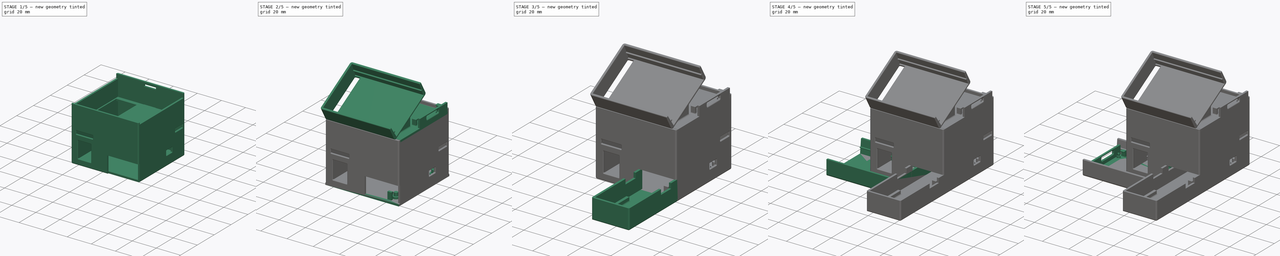
[diagram: build sequence overview — one tinted view per stage of 5, left to right]
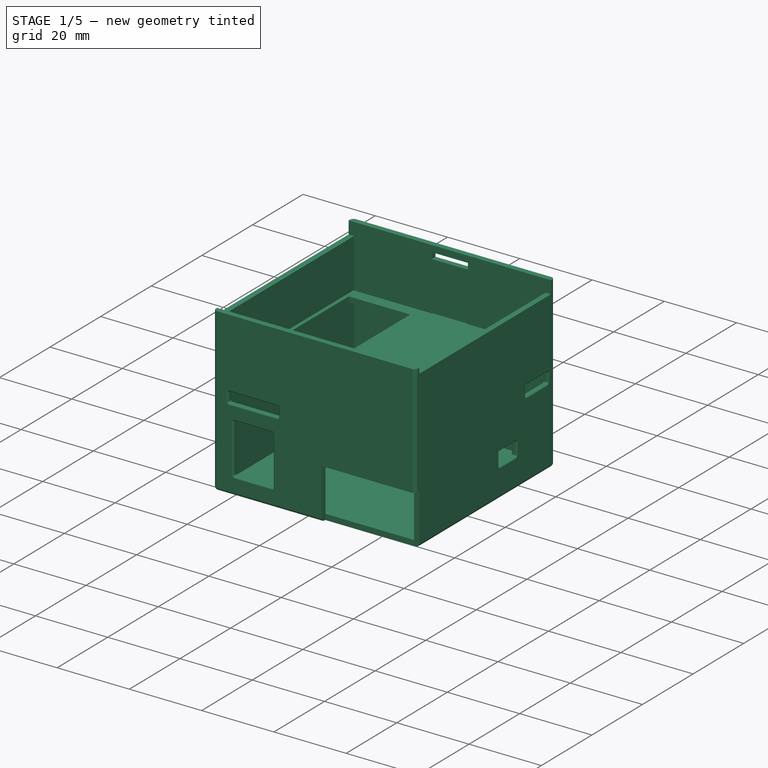
[diagram: stage 1 of 5 — iso view after this stage's code; geometry added in this stage tinted green]
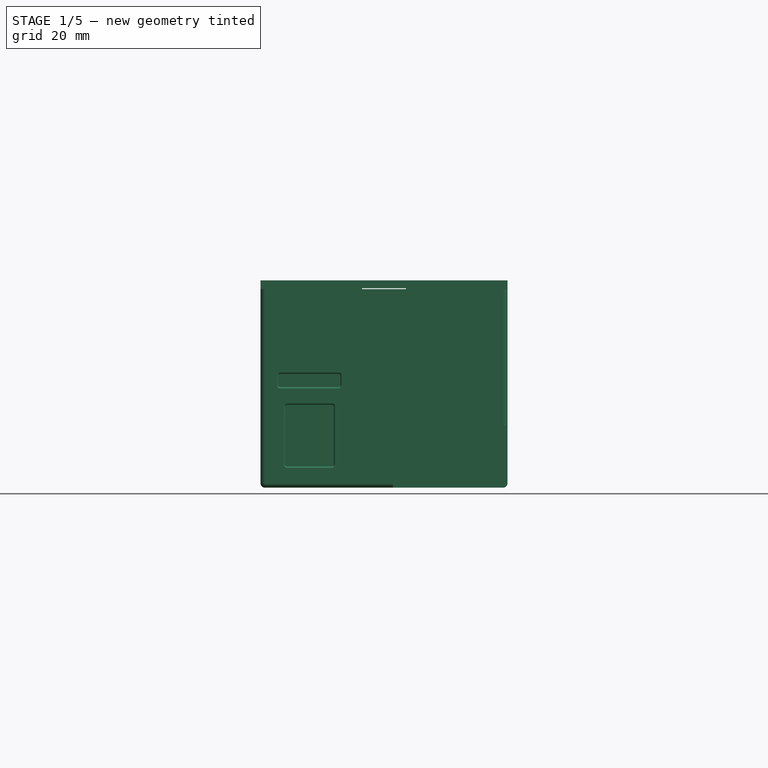
[diagram: stage 1 of 5 — front view after this stage's code; geometry added in this stage tinted green]
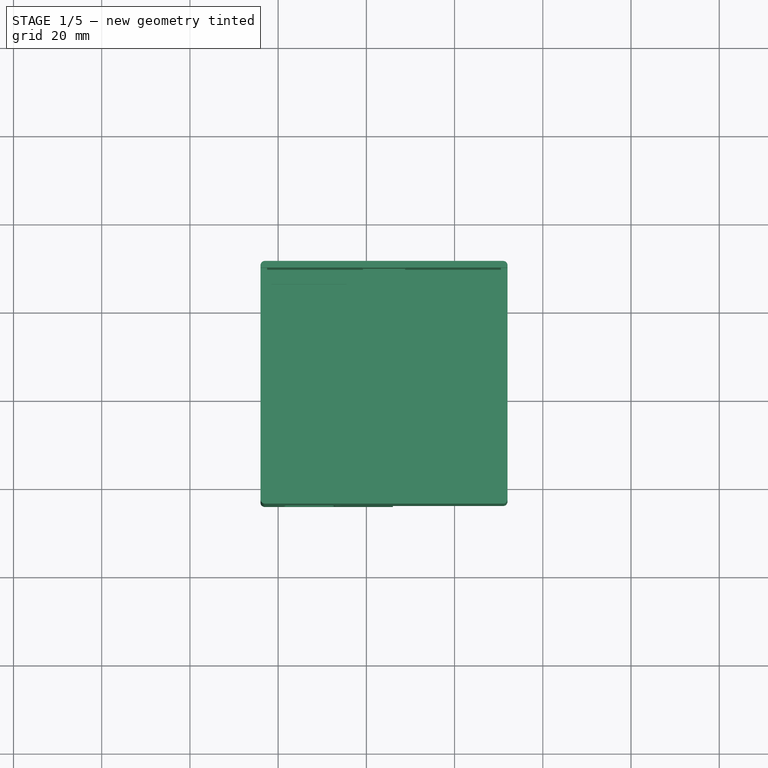
[diagram: stage 1 of 5 — top view after this stage's code; geometry added in this stage tinted green]
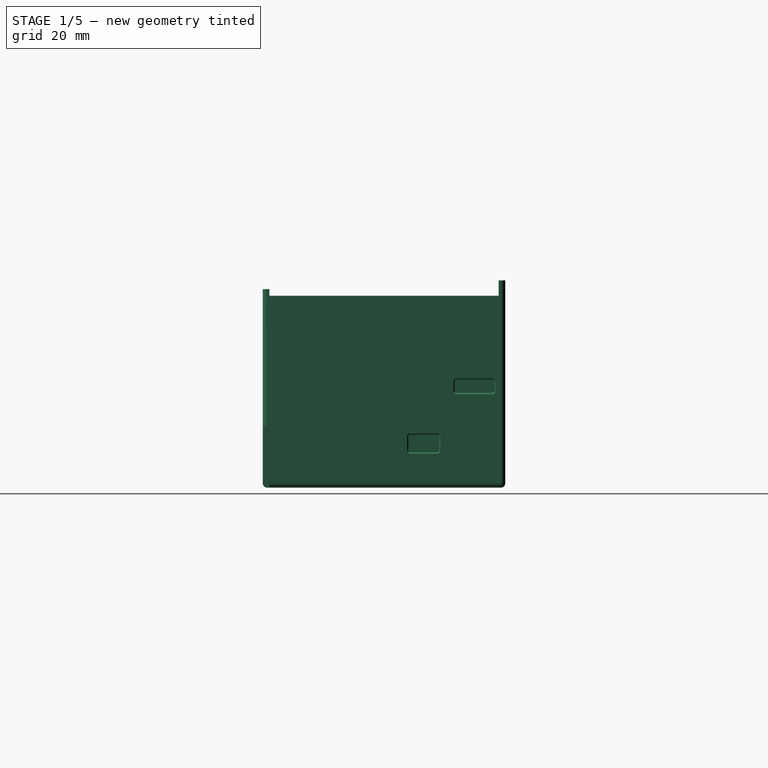
[diagram: stage 1 of 5 — right view after this stage's code; geometry added in this stage tinted green]
FCSTD DOCUMENT  (FreeCAD 0.18R16131 (Git))
Label: ReflowOvenCase
License: All rights reserved
LicenseURL: http://en.wikipedia.org/wiki/All_rights_reserved
objects: Sketcher::SketchObject×42, Part::Feature×23, App::Part×21, PartDesign::Pad×19, PartDesign::Pocket×18, PartDesign::Fillet×13, PartDesign::Body×7, Part::Extrusion×4, Part::Fillet×4, PartDesign::Thickness×3, Part::MultiFuse×3, Part::Cut×1
note: 174 computed .brp shape members not serialized (recipe doc carries the construction recipe); baked Part::Feature solids carry a one-line shape summary decoded from their .brp

FEATURE [Sketcher::SketchObject] Sketch004
  MapMode = 5
  Support = -> [XY_Plane022]
  expr: Constraints[7] = 4.65 - 3 / 2 - 0.2 / 2
  sketch-geometry (32):
    g0: Circle [constr] CenterX=44.95 CenterY=43.95 CenterZ=0 NormalX=0 NormalY=0 NormalZ=1 AngleXU=0 Radius=1.25
    g1: Circle [constr] CenterX=44.95 CenterY=3.05 CenterZ=0 NormalX=0 NormalY=0 NormalZ=1 AngleXU=0 Radius=1.25
    g2: Circle [constr] CenterX=3.05 CenterY=28.7 CenterZ=0 NormalX=0 NormalY=0 NormalZ=1 AngleXU=0 Radius=1.25
    g3: LineSegment [constr] StartX=-0.5 StartY=30.2 StartZ=0 EndX=-2 EndY=30.2 EndZ=0
    g4: LineSegment [constr] StartX=-2 StartY=30.2 StartZ=0 EndX=-2 EndY=27.2 EndZ=0
    g5: LineSegment [constr] StartX=-2 StartY=27.2 StartZ=0 EndX=-0.5 EndY=27.2 EndZ=0
    g6: LineSegment [constr] StartX=-0.5 StartY=27.2 StartZ=0 EndX=-0.5 EndY=30.2 EndZ=0
    g7: LineSegment [constr] StartX=41.95 StartY=-0.5 StartZ=0 EndX=44.95 EndY=-0.5 EndZ=0
    g8: LineSegment [constr] StartX=44.95 StartY=-0.5 StartZ=0 EndX=44.95 EndY=-2 EndZ=0
    g9: LineSegment [constr] StartX=44.95 StartY=-2 StartZ=0 EndX=41.95 EndY=-2 EndZ=0
    g10: LineSegment [constr] StartX=41.95 StartY=-2 StartZ=0 EndX=41.95 EndY=-0.5 EndZ=0
    g11: LineSegment [constr] StartX=50 StartY=6.05 StartZ=0 EndX=48.5 EndY=6.05 EndZ=0
    g12: LineSegment [constr] StartX=48.5 StartY=6.05 StartZ=0 EndX=48.5 EndY=3.05 EndZ=0
    g13: LineSegment [constr] StartX=48.5 StartY=3.05 StartZ=0 EndX=50 EndY=3.05 EndZ=0
    g14: LineSegment [constr] StartX=50 StartY=3.05 StartZ=0 EndX=50 EndY=6.05 EndZ=0
    g15: LineSegment [constr] StartX=48.5 StartY=43.95 StartZ=0 EndX=50 EndY=43.95 EndZ=0
    g16: LineSegment [constr] StartX=50 StartY=43.95 StartZ=0 EndX=50 EndY=40.95 EndZ=0
    g17: LineSegment [constr] StartX=50 StartY=40.95 StartZ=0 EndX=48.5 EndY=40.95 EndZ=0
    g18: LineSegment [constr] StartX=48.5 StartY=40.95 StartZ=0 EndX=48.5 EndY=43.95 EndZ=0
    g19: LineSegment [constr] StartX=41.95 StartY=49 StartZ=0 EndX=44.95 EndY=49 EndZ=0
    g20: LineSegment [constr] StartX=44.95 StartY=49 StartZ=0 EndX=44.95 EndY=47.5 EndZ=0
    g21: LineSegment [constr] StartX=44.95 StartY=47.5 StartZ=0 EndX=41.95 EndY=47.5 EndZ=0
    g22: LineSegment [constr] StartX=41.95 StartY=47.5 StartZ=0 EndX=41.95 EndY=49 EndZ=0
    g23: GeomPoint X=-0.5 Y=28.7 Z=0
    g24: GeomPoint X=43.45 Y=47.5 Z=0
    g25: GeomPoint X=48.5 Y=42.45 Z=0
    g26: GeomPoint X=43.45 Y=-0.5 Z=0
    g27: GeomPoint X=48.5 Y=4.55 Z=0
    g28: LineSegment StartX=52 StartY=-4 StartZ=0 EndX=-4 EndY=-4 EndZ=0
    g29: LineSegment StartX=-4 StartY=-4 StartZ=0 EndX=-4 EndY=51 EndZ=0
    g30: LineSegment StartX=-4 StartY=51 StartZ=0 EndX=52 EndY=51 EndZ=0
    g31: LineSegment StartX=52 StartY=51 StartZ=0 EndX=52 EndY=-4 EndZ=0
  constraints (86):
    c: Diameter(g1) = 2.5
    c: Diameter(g0) = 2.5
    c: DistanceX(g1,g0) = 0
    c: DistanceY(g1,g0) = 40.9
    c: Diameter(g2) = 2.5
    c: DistanceX(g2,g0) = 41.9
    c: DistanceY(g2,g0) = 15.25
    c: DistanceX(g-1,g2) = 3.05
    c: DistanceY(g-1,g2) = 28.7
    c: Coincident(g3,g4)
    c: Coincident(g4,g5)
    c: Coincident(g5,g6)
    c: Coincident(g6,g3)
    c: Horizontal(g3)
    c: Horizontal(g5)
    c: Vertical(g4)
    c: Vertical(g6)
    c: Coincident(g7,g8)
    c: Coincident(g8,g9)
    c: Coincident(g9,g10)
    c: Coincident(g10,g7)
    c: Horizontal(g7)
    c: Horizontal(g9)
    c: Vertical(g8)
    c: Vertical(g10)
    c: Coincident(g11,g12)
    c: Coincident(g12,g13)
    c: Coincident(g13,g14)
    c: Coincident(g14,g11)
    c: Horizontal(g11)
    c: Horizontal(g13)
    c: Vertical(g12)
    c: Vertical(g14)
    c: Coincident(g15,g16)
    c: Coincident(g16,g17)
    c: Coincident(g17,g18)
    c: Coincident(g18,g15)
    c: Horizontal(g15)
    c: Horizontal(g17)
    c: Vertical(g16)
    c: Vertical(g18)
    c: Coincident(g19,g20)
    c: Coincident(g20,g21)
    c: Coincident(g21,g22)
    c: Coincident(g22,g19)
    c: Horizontal(g19)
    c: Horizontal(g21)
    c: Vertical(g20)
    c: Vertical(g22)
    c: Distance(g4) = 3
    c: Distance(g3) = 1.5
    c: Symmetric(g5,g3,g23)
    c: DistanceY(g2,g23) = 0
    c: Symmetric(g21,g20,g24)
    c: DistanceX(g24,g0) = 1.5
    c: Symmetric(g15,g17,g25)
    c: DistanceY(g0,g25) = -1.5
    c: Symmetric(g11,g12,g27)
    c: Symmetric(g7,g7,g26)
    c: DistanceX(g1,g26) = -1.5
    c: DistanceY(g1,g27) = 1.5
    c: Distance(g8) = 1.5
    c: Distance(g9) = 3
    c: Distance(g14) = 3
    c: Distance(g13) = 1.5
    c: Distance(g16) = 3
    c: Distance(g17) = 1.5
    c: Distance(g19) = 3
    c: Distance(g20) = 1.5
    c: DistanceX(g23,g-1) = 0.5
    c: DistanceY(g0,g24) = 3.55
    c: DistanceX(g0,g25) = 3.55
    c: DistanceX(g1,g27) = 3.55
    c: DistanceY(g26,g1) = 3.55
    c: Coincident(g28,g29)
    c: Coincident(g29,g30)
    c: Coincident(g30,g31)
    c: Coincident(g31,g28)
    c: Horizontal(g28)
    c: Horizontal(g30)
    c: Vertical(g29)
    c: Vertical(g31)
    c: Distance(g19,g30) = 2
    c: Distance(g15,g31) = 2
    c: Distance(g3,g29) = 2
    c: Distance(g9,g28) = 2
FEATURE [PartDesign::Pad] Pad
  Length = 47
  Length2 = 100
  Profile = -> Sketch004
  Type = 0
FEATURE [PartDesign::Thickness] Thickness
  Base = -> Pad [Face6]
  BaseFeature = -> Pad
  Join = 0
  Mode = 0
  Reversed = true
  Value = 1.5
FEATURE [PartDesign::Fillet] Fillet001
  Base = -> Thickness [Edge1,Edge8,Edge5,Edge2,Face5]
  BaseFeature = -> Thickness
  Radius = 1
FEATURE [Sketcher::SketchObject] Sketch005  label="CutoutSSR"
  MapMode = 5
  Placement = pos=(60,0,0) rot=(0.57735,0.57735,0.57735;2.0944rad)
  sketch-geometry (4):
    g0: LineSegment StartX=36 StartY=12 StartZ=0 EndX=29 EndY=12 EndZ=0
    g1: LineSegment StartX=29 StartY=12 StartZ=0 EndX=29 EndY=8 EndZ=0
    g2: LineSegment StartX=29 StartY=8 StartZ=0 EndX=36 EndY=8 EndZ=0
    g3: LineSegment StartX=36 StartY=8 StartZ=0 EndX=36 EndY=12 EndZ=0
  constraints (12):
    c: Coincident(g0,g1)
    c: Coincident(g1,g2)
    c: Coincident(g2,g3)
    c: Coincident(g3,g0)
    c: Horizontal(g0)
    c: Horizontal(g2)
    c: Vertical(g1)
    c: Vertical(g3)
    c: DistanceX(g2,g2) = 7
    c: DistanceY(g3,g3) = 4
    c: DistanceY(g-1,g1) = 8
    c: DistanceX(g-1,g1) = 29
FEATURE [Sketcher::SketchObject] Sketch006  label="CutoutUSB"
  MapMode = 5
  Placement = pos=(-10,0,0) rot=(0.57735,-0.57735,-0.57735;2.0944rad)
  sketch-geometry (4):
    g0: LineSegment StartX=-20.5 StartY=24 StartZ=0 EndX=-32.5 EndY=24 EndZ=0
    g1: LineSegment StartX=-32.5 StartY=24 StartZ=0 EndX=-32.5 EndY=15 EndZ=0
    g2: LineSegment StartX=-32.5 StartY=15 StartZ=0 EndX=-20.5 EndY=15 EndZ=0
    g3: LineSegment StartX=-20.5 StartY=15 StartZ=0 EndX=-20.5 EndY=24 EndZ=0
  constraints (12):
    c: Coincident(g0,g1)
    c: Coincident(g1,g2)
    c: Coincident(g2,g3)
    c: Coincident(g3,g0)
    c: Horizontal(g0)
    c: Horizontal(g2)
    c: Vertical(g1)
    c: Vertical(g3)
    c: DistanceX(g2,g-1) = 20.5
    c: DistanceX(g2,g2) = 12
    c: DistanceY(g1,g1) = 9
    c: DistanceY(g-1,g2) = 15
FEATURE [Sketcher::SketchObject] Sketch007  label="CutoutJack"
  MapMode = 5
  Placement = pos=(0,-10,0) rot=(1,0,0;1.5708rad)
  sketch-geometry (4):
    g0: LineSegment StartX=12.6 StartY=18.8 StartZ=0 EndX=1.6 EndY=18.8 EndZ=0
    g1: LineSegment StartX=1.6 StartY=18.8 StartZ=0 EndX=1.6 EndY=4.8 EndZ=0
    g2: LineSegment StartX=1.6 StartY=4.8 StartZ=0 EndX=12.6 EndY=4.8 EndZ=0
    g3: LineSegment StartX=12.6 StartY=4.8 StartZ=0 EndX=12.6 EndY=18.8 EndZ=0
  constraints (12):
    c: Coincident(g0,g1)
    c: Coincident(g1,g2)
    c: Coincident(g2,g3)
    c: Coincident(g3,g0)
    c: Horizontal(g0)
    c: Horizontal(g2)
    c: Vertical(g1)
    c: Vertical(g3)
    c: DistanceY(g-1,g1) = 4.8
    c: DistanceX(g-1,g1) = 1.6
    c: DistanceX(g2,g2) = 11
    c: DistanceY(g3,g3) = 14
FEATURE [PartDesign::Pocket] Pocket
  BaseFeature = -> Fillet001
  Length = 20
  Length2 = 100
  Profile = -> Sketch005
  Type = 0
FEATURE [PartDesign::Pocket] Pocket001
  BaseFeature = -> Pocket
  Length = 20
  Length2 = 100
  Profile = -> Sketch006
  Type = 0
FEATURE [PartDesign::Pocket] Pocket002
  BaseFeature = -> Pocket001
  Length = 20
  Length2 = 100
  Profile = -> Sketch007
  Type = 0
FEATURE [PartDesign::Body] Body001  label="Display_Mount"
  Group = -> [Sketch008,Sketch009,MirroredSketch,Sketch010,Pad001,Thickness001,Pocket003,Pad002,Pad003,Sketch026,Pocket006,Sketch027,Pocket007,Fillet007,Fillet012]
  Origin = -> Origin023
  Placement = pos=(0,0,-8.5) rot=(0,0,1;0rad)
  Tip = -> Fillet012
  expr: Placement.Base.z = -10 + 1.5
FEATURE [Sketcher::SketchObject] Sketch028  label="CutoutTemp"
  MapMode = 5
  Placement = pos=(0,-10,0) rot=(1,0,0;1.5708rad)
  sketch-geometry (10):
    g0: LineSegment [constr] StartX=12.6 StartY=18.8 StartZ=0 EndX=1.6 EndY=18.8 EndZ=0
    g1: LineSegment [constr] StartX=1.6 StartY=18.8 StartZ=0 EndX=1.6 EndY=4.8 EndZ=0
    g2: LineSegment [constr] StartX=1.6 StartY=4.8 StartZ=0 EndX=12.6 EndY=4.8 EndZ=0
    g3: LineSegment [constr] StartX=12.6 StartY=4.8 StartZ=0 EndX=12.6 EndY=18.8 EndZ=0
    g4: LineSegment StartX=0.1 StartY=25.8 StartZ=0 EndX=14.1 EndY=25.8 EndZ=0
    g5: LineSegment StartX=14.1 StartY=25.8 StartZ=0 EndX=14.1 EndY=22.8 EndZ=0
    g6: LineSegment StartX=14.1 StartY=22.8 StartZ=0 EndX=0.1 EndY=22.8 EndZ=0
    g7: LineSegment StartX=0.1 StartY=22.8 StartZ=0 EndX=0.1 EndY=25.8 EndZ=0
    g8: GeomPoint X=7.1 Y=18.8 Z=0
    g9: GeomPoint X=7.1 Y=22.8 Z=0
  constraints (26):
    c: Coincident(g0,g1)
    c: Coincident(g1,g2)
    c: Coincident(g2,g3)
    c: Coincident(g3,g0)
    c: Horizontal(g0)
    c: Horizontal(g2)
    c: Vertical(g1)
    c: Vertical(g3)
    c: DistanceY(g-1,g1) = 4.8
    c: DistanceX(g-1,g1) = 1.6
    c: DistanceX(g2,g2) = 11
    c: DistanceY(g3,g3) = 14
    c: Coincident(g4,g5)
    c: Coincident(g5,g6)
    c: Coincident(g6,g7)
    c: Coincident(g7,g4)
    c: Horizontal(g4)
    c: Horizontal(g6)
    c: Vertical(g5)
    c: Vertical(g7)
    c: DistanceX(g6,g6) = 14
    c: Symmetric(g0,g0,g8)
    c: Symmetric(g5,g6,g9)
    c: DistanceX(g8,g9) = 0
    c: DistanceY(g5,g5) = 3
    c: DistanceY(g8,g9) = 4
FEATURE [PartDesign::Pocket] Pocket008
  BaseFeature = -> Pocket002
  Length = 20
  Length2 = 100
  Profile = -> Sketch028
  Type = 0
FEATURE [Sketcher::SketchObject] Sketch029  label="CutoutServo"
  MapMode = 5
  Placement = pos=(60,0,0) rot=(0.57735,0.57735,0.57735;2.0944rad)
  sketch-geometry (8):
    g0: LineSegment [constr] StartX=37.5 StartY=12.5 StartZ=0 EndX=27.5 EndY=12.5 EndZ=0
    g1: LineSegment [constr] StartX=27.5 StartY=12.5 StartZ=0 EndX=27.5 EndY=7.5 EndZ=0
    g2: LineSegment [constr] StartX=27.5 StartY=7.5 StartZ=0 EndX=37.5 EndY=7.5 EndZ=0
    g3: LineSegment [constr] StartX=37.5 StartY=7.5 StartZ=0 EndX=37.5 EndY=12.5 EndZ=0
    g4: LineSegment StartX=48.5 StartY=24.5 StartZ=0 EndX=39.5 EndY=24.5 EndZ=0
    g5: LineSegment StartX=39.5 StartY=24.5 StartZ=0 EndX=39.5 EndY=21.5 EndZ=0
    g6: LineSegment StartX=39.5 StartY=21.5 StartZ=0 EndX=48.5 EndY=21.5 EndZ=0
    g7: LineSegment StartX=48.5 StartY=21.5 StartZ=0 EndX=48.5 EndY=24.5 EndZ=0
  constraints (24):
    c: Coincident(g0,g1)
    c: Coincident(g1,g2)
    c: Coincident(g2,g3)
    c: Coincident(g3,g0)
    c: Horizontal(g0)
    c: Horizontal(g2)
    c: Vertical(g1)
    c: Vertical(g3)
    c: DistanceX(g2,g2) = 10
    c: DistanceY(g3,g3) = 5
    c: DistanceY(g-1,g1) = 7.5
    c: DistanceX(g-1,g1) = 27.5
    c: Coincident(g4,g5)
    c: Coincident(g5,g6)
    c: Coincident(g6,g7)
    c: Coincident(g7,g4)
    c: Horizontal(g4)
    c: Horizontal(g6)
    c: Vertical(g5)
    c: Vertical(g7)
    c: DistanceY(g7,g7) = 3
    c: DistanceX(g4,g4) = 9
    c: DistanceY(g0,g5) = 9
    c: DistanceX(g5,g0) = -2
FEATURE [PartDesign::Pocket] Pocket009
  BaseFeature = -> Pocket008
  Length = 20
  Length2 = 100
  Profile = -> Sketch029
  Type = 0
FEATURE [PartDesign::Fillet] Fillet002
  Base = -> Pocket009 [Face31,Face27,Face28,Face34,Face30,Face29,Face33,Face32,Face38,Face39,Face7,Face12,Face37,Face36,Face6,Face13,Face8,Face10,Face11,Face9]
  BaseFeature = -> Pocket009
  Radius = 0.4
FEATURE [Sketcher::SketchObject] Sketch037  label="CutoutTemp001"
  MapMode = 5
  Placement = pos=(0,-4,0) rot=(1,0,0;1.5708rad)
  sketch-geometry (14):
    g0: LineSegment [constr] StartX=12.6 StartY=18.8 StartZ=0 EndX=1.6 EndY=18.8 EndZ=0
    g1: LineSegment [constr] StartX=1.6 StartY=18.8 StartZ=0 EndX=1.6 EndY=4.8 EndZ=0
    g2: LineSegment [constr] StartX=1.6 StartY=4.8 StartZ=0 EndX=12.6 EndY=4.8 EndZ=0
    g3: LineSegment [constr] StartX=12.6 StartY=4.8 StartZ=0 EndX=12.6 EndY=18.8 EndZ=0
    g4: LineSegment [constr] StartX=0.1 StartY=25.8 StartZ=0 EndX=14.1 EndY=25.8 EndZ=0
    g5: LineSegment [constr] StartX=14.1 StartY=25.8 StartZ=0 EndX=14.1 EndY=22.8 EndZ=0
    g6: LineSegment [constr] StartX=14.1 StartY=22.8 StartZ=0 EndX=0.1 EndY=22.8 EndZ=0
    g7: LineSegment [constr] StartX=0.1 StartY=22.8 StartZ=0 EndX=0.1 EndY=25.8 EndZ=0
    g8: GeomPoint X=7.1 Y=18.8 Z=0
    g9: GeomPoint X=7.1 Y=22.8 Z=0
    g10: LineSegment StartX=52 StartY=14 StartZ=0 EndX=26 EndY=14 EndZ=0
    g11: LineSegment StartX=26 StartY=14 StartZ=0 EndX=26 EndY=0 EndZ=0
    g12: LineSegment StartX=26 StartY=0 StartZ=0 EndX=52 EndY=0 EndZ=0
    g13: LineSegment StartX=52 StartY=0 StartZ=0 EndX=52 EndY=14 EndZ=0
  constraints (38):
    c: Coincident(g0,g1)
    c: Coincident(g1,g2)
    c: Coincident(g2,g3)
    c: Coincident(g3,g0)
    c: Horizontal(g0)
    c: Horizontal(g2)
    c: Vertical(g1)
    c: Vertical(g3)
    c: DistanceY(g-1,g1) = 4.8
    c: DistanceX(g-1,g1) = 1.6
    c: DistanceX(g2,g2) = 11
    c: DistanceY(g3,g3) = 14
    c: Coincident(g4,g5)
    c: Coincident(g5,g6)
    c: Coincident(g6,g7)
    c: Coincident(g7,g4)
    c: Horizontal(g4)
    c: Horizontal(g6)
    c: Vertical(g5)
    c: Vertical(g7)
    c: DistanceX(g6,g6) = 14
    c: Symmetric(g0,g0,g8)
    c: Symmetric(g5,g6,g9)
    c: DistanceX(g8,g9) = 0
    c: DistanceY(g5,g5) = 3
    c: DistanceY(g8,g9) = 4
    c: Coincident(g10,g11)
    c: Coincident(g11,g12)
    c: Coincident(g12,g13)
    c: Coincident(g13,g10)
    c: Horizontal(g10)
    c: Horizontal(g12)
    c: Vertical(g11)
    c: Vertical(g13)
    c: DistanceY(g13,g13) = 14
    c: DistanceX(g10,g10) = 26
    c: DistanceY(g-1,g11) = 0
    c: DistanceX(g-1,g11) = 26
FEATURE [PartDesign::Pocket] Pocket011002
  BaseFeature = -> Fillet002
  Length = 1.5
  Length2 = 100
  Profile = -> Sketch037
  Type = 0
FEATURE [Sketcher::SketchObject] Sketch039
  AttachmentOffset = pos=(0,0,28.5) rot=(0,0,1;0rad)
  MapMode = 5
  Placement = pos=(0,0,28.5) rot=(0,0,1;0rad)
  Support = -> [XY_Plane]
  expr: Constraints[9] = 56 + 1.5 * 0
  expr: Constraints[42] = 10 - 0.2 * 2
  expr: Constraints[8] = 55 - 1.5 * 2 - 0.2 * 2
  sketch-geometry (19):
    g0: LineSegment StartX=52 StartY=-2.3 StartZ=0 EndX=-4 EndY=-2.3 EndZ=0
    g1: LineSegment StartX=-4 StartY=-2.3 StartZ=0 EndX=-4 EndY=49.3 EndZ=0
    g2: LineSegment StartX=-4 StartY=49.3 StartZ=0 EndX=19.2 EndY=49.3 EndZ=0
    g3: LineSegment StartX=52 StartY=49.3 StartZ=0 EndX=52 EndY=-2.3 EndZ=0
    g4: GeomPoint X=24 Y=23.5 Z=0
    g5: LineSegment StartX=15.5 StartY=46 StartZ=0 EndX=-1.5 EndY=46 EndZ=0
    g6: LineSegment StartX=-1.5 StartY=46 StartZ=0 EndX=-1.5 EndY=1 EndZ=0
    g7: LineSegment StartX=-1.5 StartY=1 StartZ=0 EndX=8.5 EndY=1 EndZ=0
    g8: LineSegment StartX=15.5 StartY=21 StartZ=0 EndX=15.5 EndY=46 EndZ=0
    g9: GeomPoint X=-4 Y=23.5 Z=0
    g10: GeomPoint X=-1.5 Y=23.5 Z=0
    g11: LineSegment StartX=8.5 StartY=21 StartZ=0 EndX=8.5 EndY=1 EndZ=0
    g12: LineSegment StartX=8.5 StartY=21 StartZ=0 EndX=15.5 EndY=21 EndZ=0
    g13: GeomPoint X=24 Y=49.3 Z=0
    g14: GeomPoint X=24 Y=50.8 Z=0
    g15: LineSegment StartX=19.2 StartY=50.8 StartZ=0 EndX=28.8 EndY=50.8 EndZ=0
    g16: LineSegment StartX=28.8 StartY=50.8 StartZ=0 EndX=28.8 EndY=49.3 EndZ=0
    g17: LineSegment StartX=19.2 StartY=49.3 StartZ=0 EndX=19.2 EndY=50.8 EndZ=0
    g18: LineSegment StartX=28.8 StartY=49.3 StartZ=0 EndX=52 EndY=49.3 EndZ=0
  constraints (46):
    c: Coincident(g0,g1)
    c: Coincident(g1,g2)
    c: Coincident(g18,g3)
    c: Coincident(g3,g0)
    c: Horizontal(g0)
    c: Horizontal(g2)
    c: Vertical(g1)
    c: Vertical(g3)
    c: DistanceY(g3,g3) = 51.6
    c: DistanceX(g2,g18) = 56
    c: Symmetric(g18,g0,g4)
    c: DistanceY(g4) = 23.5
    c: DistanceX(g4) = 24
    c: Coincident(g5,g6)
    c: Coincident(g6,g7)
    c: Coincident(g8,g5)
    c: Horizontal(g5)
    c: Horizontal(g7)
    c: Vertical(g6)
    c: Vertical(g8)
    c: DistanceX(g5,g5) = 17
    c: DistanceY(g6,g6) = 45
    c: Symmetric(g6,g5,g10)
    c: Symmetric(g1,g0,g9)
    c: DistanceY(g9,g10) = 0
    c: DistanceX(g9,g10) = 2.5
    c: Coincident(g12,g11)
    c: Horizontal(g12)
    c: Vertical(g11)
    c: Coincident(g8,g12)
    c: Coincident(g7,g11)
    c: DistanceY(g11,g11) = 20
    c: DistanceX(g12,g12) = 7
    c: Coincident(g15,g16)
    c: Coincident(g17,g15)
    c: Horizontal(g15)
    c: Vertical(g16)
    c: Vertical(g17)
    c: Symmetric(g18,g1,g13)
    c: Symmetric(g15,g15,g14)
    c: DistanceX(g14,g13) = 0
    c: DistanceY(g13,g14) = 1.5
    c: DistanceX(g15,g15) = 9.6
    c: Coincident(g2,g17)
    c: Coincident(g18,g16)
    c: Tangent(g2,g18)
FEATURE [Sketcher::SketchObject] Sketch040
  AttachmentOffset = pos=(0,0,43.5) rot=(0,0,1;0rad)
  MapMode = 5
  Placement = pos=(0,0,43.5) rot=(0,0,1;0rad)
  Support = -> [XY_Plane022]
  expr: Constraints[9] = 56 + 1.5 * 0
  expr: AttachmentOffset.Base.z = 28.5 + 15
  expr: Constraints[8] = 55 - 1.5 * 2
  sketch-geometry (11):
    g0: LineSegment StartX=52 StartY=-2.5 StartZ=0 EndX=-4 EndY=-2.5 EndZ=0
    g1: LineSegment StartX=-4 StartY=-2.5 StartZ=0 EndX=-4 EndY=49.5 EndZ=0
    g2: LineSegment StartX=-4 StartY=49.5 StartZ=0 EndX=19 EndY=49.5 EndZ=0
    g3: LineSegment StartX=52 StartY=49.5 StartZ=0 EndX=52 EndY=-2.5 EndZ=0
    g4: GeomPoint X=24 Y=23.5 Z=0
    g5: LineSegment StartX=19 StartY=51 StartZ=0 EndX=29 EndY=51 EndZ=0
    g6: LineSegment StartX=29 StartY=51 StartZ=0 EndX=29 EndY=49.5 EndZ=0
    g7: LineSegment StartX=19 StartY=49.5 StartZ=0 EndX=19 EndY=51 EndZ=0
    g8: GeomPoint X=24 Y=51 Z=0
    g9: GeomPoint X=24 Y=49.5 Z=0
    g10: LineSegment StartX=29 StartY=49.5 StartZ=0 EndX=52 EndY=49.5 EndZ=0
  constraints (26):
    c: Coincident(g0,g1)
    c: Coincident(g1,g2)
    c: Coincident(g10,g3)
    c: Coincident(g3,g0)
    c: Horizontal(g0)
    c: Horizontal(g2)
    c: Vertical(g1)
    c: Vertical(g3)
    c: DistanceY(g3,g3) = 52
    c: DistanceX(g2,g10) = 56
    c: Symmetric(g10,g0,g4)
    c: DistanceY(g4) = 23.5
    c: DistanceX(g4) = 24
    c: Coincident(g5,g6)
    c: Coincident(g7,g5)
    c: Horizontal(g5)
    c: Vertical(g6)
    c: Vertical(g7)
    c: Symmetric(g10,g1,g9)
    c: Symmetric(g5,g5,g8)
    c: DistanceX(g8,g9) = 0
    c: DistanceX(g5,g5) = 10
    c: Coincident(g2,g7)
    c: Coincident(g10,g6)
    c: Tangent(g2,g10)
    c: DistanceY(g7,g7) = 1.5
FEATURE [PartDesign::Pocket] Pocket011004
  BaseFeature = -> Pocket011002
  Length = 1.7
  Length2 = 100
  Profile = -> Sketch040
  Reversed = true
  Type = 0
FEATURE [PartDesign::Pad] Pad019
  Length = 1.5
  Length2 = 100
  Profile = -> Sketch039
  Type = 0
FEATURE [Sketcher::SketchObject] Sketch045
  AttachmentOffset = pos=(0,0,45) rot=(0,0,1;0rad)
  MapMode = 5
  Placement = pos=(0,0,45) rot=(0,0,1;0rad)
  Support = -> [XY_Plane022]
  expr: Constraints[9] = 56 + 1.5 * 0
  expr: AttachmentOffset.Base.z = 28.5 + 15 + 1.5
  expr: Constraints[8] = 55 - 1.5 * 2
  sketch-geometry (15):
    g0: LineSegment [constr] StartX=52 StartY=-2.5 StartZ=0 EndX=-4 EndY=-2.5 EndZ=0
    g1: LineSegment StartX=-4 StartY=-2.5 StartZ=0 EndX=-4 EndY=49.5 EndZ=0
    g2: LineSegment StartX=-4 StartY=49.5 StartZ=0 EndX=19 EndY=49.5 EndZ=0
    g3: LineSegment StartX=52 StartY=49.5 StartZ=0 EndX=52 EndY=-2.5 EndZ=0
    g4: GeomPoint X=24 Y=23.5 Z=0
    g5: LineSegment [constr] StartX=19 StartY=51 StartZ=0 EndX=29 EndY=51 EndZ=0
    g6: LineSegment [constr] StartX=29 StartY=51 StartZ=0 EndX=29 EndY=49.5 EndZ=0
    g7: LineSegment [constr] StartX=19 StartY=49.5 StartZ=0 EndX=19 EndY=51 EndZ=0
    g8: GeomPoint X=24 Y=51 Z=0
    g9: GeomPoint X=24 Y=49.5 Z=0
    g10: LineSegment StartX=29 StartY=49.5 StartZ=0 EndX=52 EndY=49.5 EndZ=0
    g11: LineSegment StartX=19 StartY=49.5 StartZ=0 EndX=29 EndY=49.5 EndZ=0
    g12: LineSegment StartX=52 StartY=-2.5 StartZ=0 EndX=52 EndY=-4 EndZ=0
    g13: LineSegment StartX=52 StartY=-4 StartZ=0 EndX=-4 EndY=-4 EndZ=0
    g14: LineSegment StartX=-4 StartY=-4 StartZ=0 EndX=-4 EndY=-2.5 EndZ=0
  constraints (36):
    c: Coincident(g0,g1)
    c: Coincident(g1,g2)
    c: Coincident(g10,g3)
    c: Coincident(g3,g0)
    c: Horizontal(g0)
    c: Horizontal(g2)
    c: Vertical(g1)
    c: Vertical(g3)
    c: DistanceY(g3,g3) = 52
    c: DistanceX(g2,g10) = 56
    c: Symmetric(g10,g0,g4)
    c: DistanceY(g4) = 23.5
    c: DistanceX(g4) = 24
    c: Coincident(g5,g6)
    c: Coincident(g7,g5)
    c: Horizontal(g5)
    c: Vertical(g6)
    c: Vertical(g7)
    c: Symmetric(g10,g1,g9)
    c: Symmetric(g5,g5,g8)
    c: DistanceX(g8,g9) = 0
    c: DistanceX(g5,g5) = 10
    c: Coincident(g2,g7)
    c: Coincident(g10,g6)
    c: Tangent(g2,g10)
    c: DistanceY(g7,g7) = 1.5
    c: Coincident(g11,g2)
    c: Coincident(g11,g10)
    c: Coincident(g12,g13)
    c: Coincident(g13,g14)
    c: Horizontal(g13)
    c: Vertical(g12)
    c: Vertical(g14)
    c: Coincident(g1,g14)
    c: Coincident(g3,g12)
    c: Distance(g12) = 1.5
FEATURE [PartDesign::Pocket] Pocket011007
  BaseFeature = -> Pocket011004
  Length = 5
  Length2 = 100
  Profile = -> Sketch045
  Reversed = true
  Type = 0
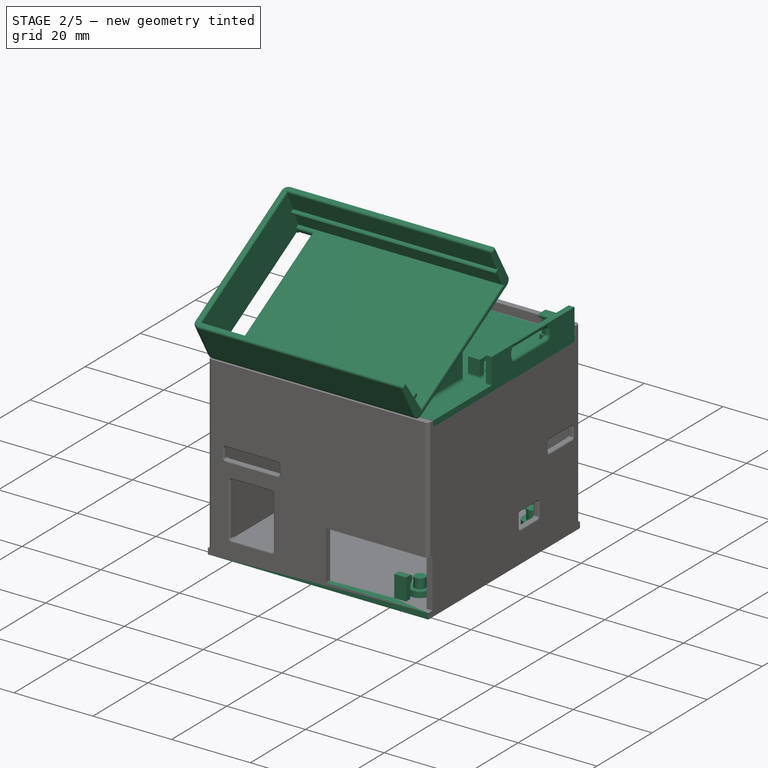
[diagram: stage 2 of 5 — iso view after this stage's code; geometry added in this stage tinted green]
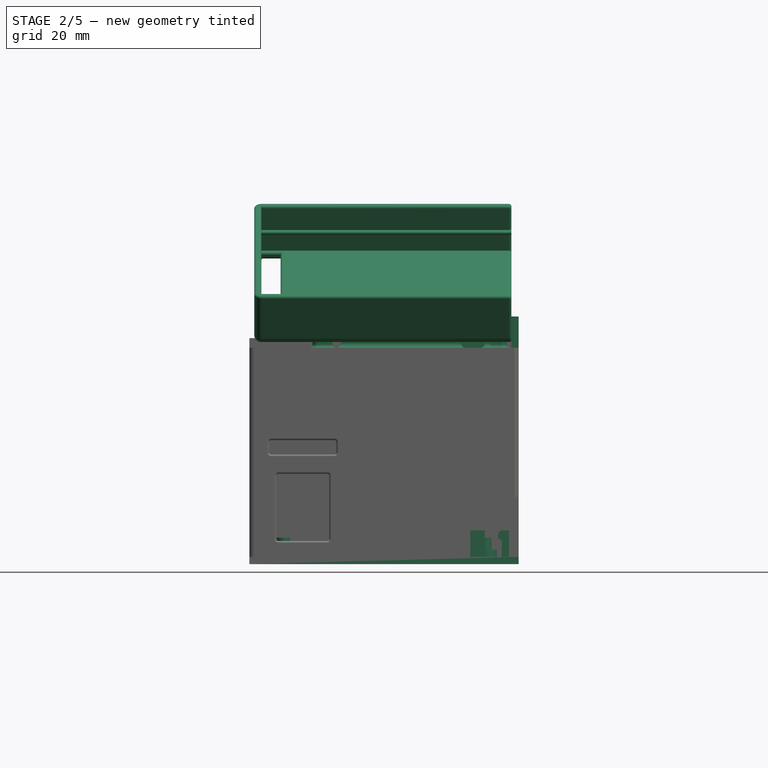
[diagram: stage 2 of 5 — front view after this stage's code; geometry added in this stage tinted green]
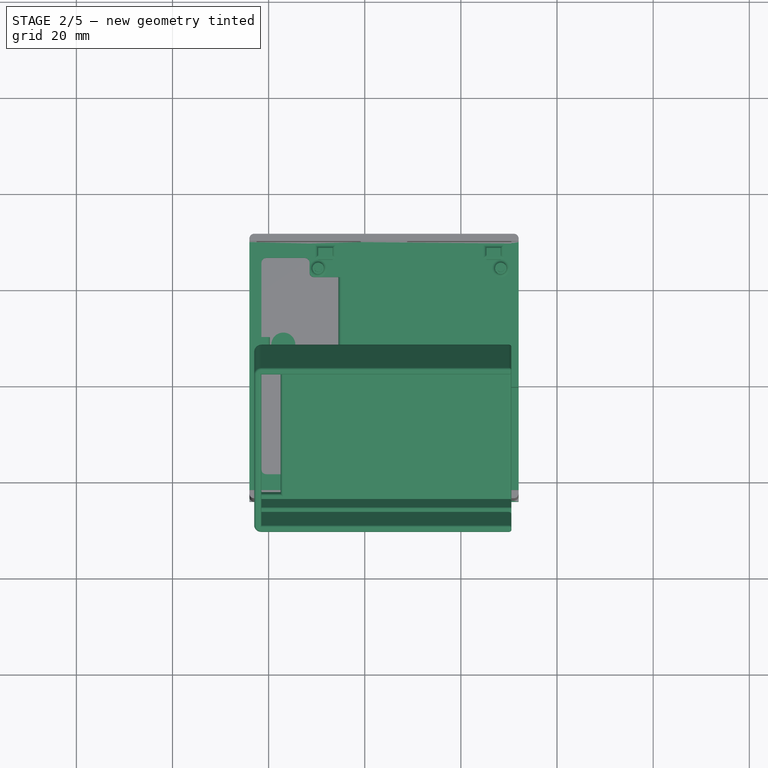
[diagram: stage 2 of 5 — top view after this stage's code; geometry added in this stage tinted green]
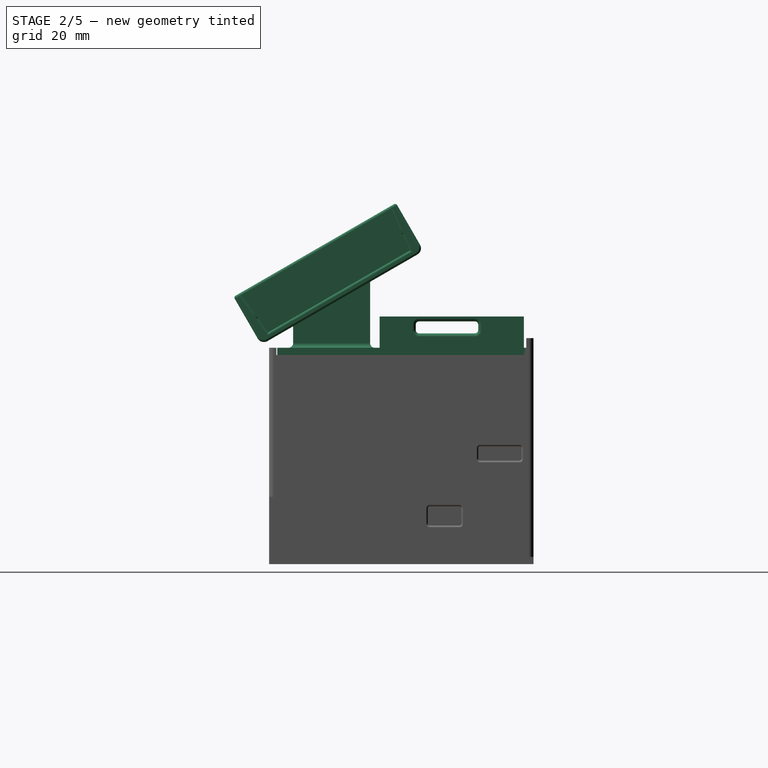
[diagram: stage 2 of 5 — right view after this stage's code; geometry added in this stage tinted green]
FEATURE [Sketcher::SketchObject] Sketch
  MapMode = 5
  Support = -> [XY_Plane022]
  expr: Constraints[7] = 4.65 - 3 / 2 - 0.2 / 2
  sketch-geometry (28):
    g0: Circle CenterX=44.95 CenterY=43.95 CenterZ=0 NormalX=0 NormalY=0 NormalZ=1 AngleXU=0 Radius=2.5
    g1: Circle CenterX=44.95 CenterY=3.05 CenterZ=0 NormalX=0 NormalY=0 NormalZ=1 AngleXU=0 Radius=2.5
    g2: Circle CenterX=3.05 CenterY=28.7 CenterZ=0 NormalX=0 NormalY=0 NormalZ=1 AngleXU=0 Radius=2.5
    g3: LineSegment StartX=-0.5 StartY=30.2 StartZ=0 EndX=-2 EndY=30.2 EndZ=0
    g4: LineSegment StartX=-2 StartY=30.2 StartZ=0 EndX=-2 EndY=27.2 EndZ=0
    g5: LineSegment StartX=-2 StartY=27.2 StartZ=0 EndX=-0.5 EndY=27.2 EndZ=0
    g6: LineSegment StartX=-0.5 StartY=27.2 StartZ=0 EndX=-0.5 EndY=30.2 EndZ=0
    g7: LineSegment StartX=41.95 StartY=-0.5 StartZ=0 EndX=44.95 EndY=-0.5 EndZ=0
    g8: LineSegment StartX=44.95 StartY=-0.5 StartZ=0 EndX=44.95 EndY=-2 EndZ=0
    g9: LineSegment StartX=44.95 StartY=-2 StartZ=0 EndX=41.95 EndY=-2 EndZ=0
    g10: LineSegment StartX=41.95 StartY=-2 StartZ=0 EndX=41.95 EndY=-0.5 EndZ=0
    g11: LineSegment StartX=50 StartY=6.05 StartZ=0 EndX=48.5 EndY=6.05 EndZ=0
    g12: LineSegment StartX=48.5 StartY=6.05 StartZ=0 EndX=48.5 EndY=3.05 EndZ=0
    g13: LineSegment StartX=48.5 StartY=3.05 StartZ=0 EndX=50 EndY=3.05 EndZ=0
    g14: LineSegment StartX=50 StartY=3.05 StartZ=0 EndX=50 EndY=6.05 EndZ=0
    g15: LineSegment StartX=48.5 StartY=43.95 StartZ=0 EndX=50 EndY=43.95 EndZ=0
    g16: LineSegment StartX=50 StartY=43.95 StartZ=0 EndX=50 EndY=40.95 EndZ=0
    g17: LineSegment StartX=50 StartY=40.95 StartZ=0 EndX=48.5 EndY=40.95 EndZ=0
    g18: LineSegment StartX=48.5 StartY=40.95 StartZ=0 EndX=48.5 EndY=43.95 EndZ=0
    g19: LineSegment StartX=41.95 StartY=49 StartZ=0 EndX=44.95 EndY=49 EndZ=0
    g20: LineSegment StartX=44.95 StartY=49 StartZ=0 EndX=44.95 EndY=47.5 EndZ=0
    g21: LineSegment StartX=44.95 StartY=47.5 StartZ=0 EndX=41.95 EndY=47.5 EndZ=0
    g22: LineSegment StartX=41.95 StartY=47.5 StartZ=0 EndX=41.95 EndY=49 EndZ=0
    g23: GeomPoint X=-0.5 Y=28.7 Z=0
    g24: GeomPoint X=43.45 Y=47.5 Z=0
    g25: GeomPoint X=48.5 Y=42.45 Z=0
    g26: GeomPoint X=43.45 Y=-0.5 Z=0
    g27: GeomPoint X=48.5 Y=4.55 Z=0
  constraints (74):
    c: Diameter(g1) = 5
    c: Diameter(g0) = 5
    c: DistanceX(g1,g0) = 0
    c: DistanceY(g1,g0) = 40.9
    c: Diameter(g2) = 5
    c: DistanceX(g2,g0) = 41.9
    c: DistanceY(g2,g0) = 15.25
    c: DistanceX(g-1,g2) = 3.05
    c: DistanceY(g-1,g2) = 28.7
    c: Coincident(g3,g4)
    c: Coincident(g4,g5)
    c: Coincident(g5,g6)
    c: Coincident(g6,g3)
    c: Horizontal(g3)
    c: Horizontal(g5)
    c: Vertical(g4)
    c: Vertical(g6)
    c: Coincident(g7,g8)
    c: Coincident(g8,g9)
    c: Coincident(g9,g10)
    c: Coincident(g10,g7)
    c: Horizontal(g7)
    c: Horizontal(g9)
    c: Vertical(g8)
    c: Vertical(g10)
    c: Coincident(g11,g12)
    c: Coincident(g12,g13)
    c: Coincident(g13,g14)
    c: Coincident(g14,g11)
    c: Horizontal(g11)
    c: Horizontal(g13)
    c: Vertical(g12)
    c: Vertical(g14)
    c: Coincident(g15,g16)
    c: Coincident(g16,g17)
    c: Coincident(g17,g18)
    c: Coincident(g18,g15)
    c: Horizontal(g15)
    c: Horizontal(g17)
    c: Vertical(g16)
    c: Vertical(g18)
    c: Coincident(g19,g20)
    c: Coincident(g20,g21)
    c: Coincident(g21,g22)
    c: Coincident(g22,g19)
    c: Horizontal(g19)
    c: Horizontal(g21)
    c: Vertical(g20)
    c: Vertical(g22)
    c: Distance(g4) = 3
    c: Distance(g3) = 1.5
    c: Symmetric(g5,g3,g23)
    c: DistanceY(g2,g23) = 0
    c: Symmetric(g21,g20,g24)
    c: DistanceX(g24,g0) = 1.5
    c: Symmetric(g15,g17,g25)
    c: DistanceY(g0,g25) = -1.5
    c: Symmetric(g11,g12,g27)
    c: Symmetric(g7,g7,g26)
    c: DistanceX(g1,g26) = -1.5
    c: DistanceY(g1,g27) = 1.5
    c: Distance(g8) = 1.5
    c: Distance(g9) = 3
    c: Distance(g14) = 3
    c: Distance(g13) = 1.5
    c: Distance(g16) = 3
    c: Distance(g17) = 1.5
    c: Distance(g19) = 3
    c: Distance(g20) = 1.5
    c: DistanceX(g23,g-1) = 0.5
    c: DistanceY(g0,g24) = 3.55
    c: DistanceX(g0,g25) = 3.55
    c: DistanceX(g1,g27) = 3.55
    c: DistanceY(g26,g1) = 3.55
FEATURE [Part::Feature] Part__Feature  label="SOLID"
  shape: bbox 2.54 x 5.08 x 11.54 mm, 52 faces (baked)
FEATURE [App::Part] PinHeader_1x02_P2_54mm_Vertical  label="PinHeader_1x02_P2.54mm_Vertical"
  Group = -> [Part__Feature]
  Origin = -> Origin001
  Placement = pos=(134.645,-106.045,1.6502) rot=(0,0,-1;1.5708rad)
FEATURE [Part::Feature] Part__Feature001  label="SOLID001"
  shape: bbox 9.886 x 10.23 x 10 mm, 54 faces (baked)
FEATURE [App::Part] CP_Radial_D8_0mm_P3_50mm  label="CP_Radial_D8.0mm_P3.50mm"
  Group = -> [Part__Feature001]
  Origin = -> Origin002
  Placement = pos=(132.563,-112.243,1.6502) rot=(0,0,-1;1.5708rad)
FEATURE [Part::Feature] Part__Feature002  label="SOLID002"
  shape: bbox 12.99 x 12.99 x 12.53 mm, 13 faces (baked)
FEATURE [App::Part] Buzzer_12x9_5RM7_6  label="Buzzer_12x9.5RM7.6"
  Group = -> [Part__Feature002]
  Origin = -> Origin003
  Placement = pos=(146.736,-109.728,1.6502) rot=(0,0,-1;1.5708rad)
FEATURE [Part::Feature] Part__Feature003  label="SOLID003"
  shape: bbox 5.58 x 3.745 x 10 mm, 27 faces (baked)
FEATURE [App::Part] TO_92_Inline_Wide  label="TO-92_Inline_Wide"
  Group = -> [Part__Feature003]
  Origin = -> Origin004
  Placement = pos=(150.089,-90.9066,1.6502) rot=(0,0,1;3.14159rad)
FEATURE [Part::Feature] Part__Feature004  label="SOLID004"
  shape: bbox 8.418 x 2.706 x 5.603 mm, 15 faces (baked)
FEATURE [App::Part] R_Axial_DIN0207_L6_3mm_D2_5mm_P7_62mm_Horizontal  label="R_Axial_DIN0207_L6.3mm_D2.5mm_P7.62mm_Horizontal"
  Group = -> [Part__Feature004]
  Origin = -> Origin005
  Placement = pos=(141.935,-90.3732,1.6502) rot=(0,0,1;3.14159rad)
FEATURE [Part::Feature] Part__Feature005  label="SOLID005"
  shape: bbox 2.54 x 7.62 x 11.54 mm, 76 faces (baked)
FEATURE [App::Part] PinHeader_1x03_P2_54mm_Vertical  label="PinHeader_1x03_P2.54mm_Vertical"
  Group = -> [Part__Feature005]
  Origin = -> Origin006
  Placement = pos=(134.493,-77.47,1.6502) rot=(0,0,1;1.5708rad)
FEATURE [Part::Feature] Part__Feature006  label="SOLID006"
  shape: bbox 2.54 x 5.08 x 11.54 mm, 52 faces (baked)
FEATURE [App::Part] PinHeader_1x02_P2_54mm_Vertical001  label="PinHeader_1x02_P2.54mm_Vertical001"
  Group = -> [Part__Feature006]
  Origin = -> Origin007
  Placement = pos=(153.797,-81.915,1.6502) rot=(0,0,-1;1.5708rad)
FEATURE [Part::Feature] Part__Feature007  label="SOLID007"
  shape: bbox 2.54 x 12.7 x 11.54 mm, 124 faces (baked)
FEATURE [App::Part] PinHeader_1x05_P2_54mm_Vertical  label="PinHeader_1x05_P2.54mm_Vertical"
  Group = -> [Part__Feature007]
  Origin = -> Origin008
  Placement = pos=(136.906,-81.915,1.6502) rot=(0,0,1;1.5708rad)
FEATURE [Part::Feature] Part__Feature008  label="SOLID008"
  shape: bbox 2.54 x 17.78 x 11.54 mm, 172 faces (baked)
FEATURE [App::Part] PinHeader_1x07_P2_54mm_Vertical  label="PinHeader_1x07_P2.54mm_Vertical"
  Group = -> [Part__Feature008]
  Origin = -> Origin009
  Placement = pos=(132.715,-81.915,1.6502) rot=(0,0,-1;1.5708rad)
FEATURE [Part::Feature] Part__Feature009  label="SOLID009"
  shape: bbox 2.54 x 5.08 x 11.54 mm, 52 faces (baked)
FEATURE [App::Part] PinHeader_1x02_P2_54mm_Vertical002  label="PinHeader_1x02_P2.54mm_Vertical002"
  Group = -> [Part__Feature009]
  Origin = -> Origin010
  Placement = pos=(138.862,-108.56,1.6502) rot=(0,0,1;3.14159rad)
FEATURE [Part::Feature] Part__Feature010  label="SOLID010"
  shape: bbox 2.54 x 10.16 x 10.1 mm, 134 faces (baked)
FEATURE [App::Part] PinSocket_1x04_P2_54mm_Vertical  label="PinSocket_1x04_P2.54mm_Vertical"
  Group = -> [Part__Feature010]
  Origin = -> Origin011
  Placement = pos=(157.378,-93.7514,1.6502) rot=(0,0,1;0rad)
FEATURE [Part::Feature] Part__Feature011  label="SOLID011"
  shape: bbox 2.54 x 7.62 x 11.54 mm, 76 faces (baked)
FEATURE [App::Part] PinHeader_1x03_P2_54mm_Vertical001  label="PinHeader_1x03_P2.54mm_Vertical001"
  Group = -> [Part__Feature011]
  Origin = -> Origin012
  Placement = pos=(128.143,-92.075,1.6502) rot=(0,0,1;0rad)
FEATURE [Part::Feature] Part__Feature012  label="SOLID012"
  shape: bbox 2.54 x 7.62 x 11.54 mm, 76 faces (baked)
FEATURE [App::Part] PinHeader_1x03_P2_54mm_Vertical002  label="PinHeader_1x03_P2.54mm_Vertical002"
  Group = -> [Part__Feature012]
  Origin = -> Origin013
  Placement = pos=(118.872,-97.155,1.6502) rot=(0,0,1;1.5708rad)
FEATURE [Part::Feature] Part__Feature013  label="SOLID013"
  shape: bbox 8.418 x 2.706 x 5.603 mm, 15 faces (baked)
FEATURE [App::Part] R_Axial_DIN0207_L6_3mm_D2_5mm_P7_62mm_Horizontal001  label="R_Axial_DIN0207_L6.3mm_D2.5mm_P7.62mm_Horizontal001"
  Group = -> [Part__Feature013]
  Origin = -> Origin014
  Placement = pos=(144.17,-97.9678,1.6502) rot=(0,0,1;3.14159rad)
FEATURE [Part::Feature] Part__Feature014  label="SOLID014"
  shape: bbox 8.418 x 2.706 x 5.603 mm, 15 faces (baked)
FEATURE [App::Part] R_Axial_DIN0207_L6_3mm_D2_5mm_P7_62mm_Horizontal002  label="R_Axial_DIN0207_L6.3mm_D2.5mm_P7.62mm_Horizontal002"
  Group = -> [Part__Feature014]
  Origin = -> Origin015
  Placement = pos=(153.035,-90.17,1.6502) rot=(0,0,-1;1.5708rad)
FEATURE [Part::Feature] Part__Feature015  label="SOLID015"
  shape: bbox 2.54 x 15.24 x 11.54 mm, 148 faces (baked)
FEATURE [App::Part] PinHeader_1x06_P2_54mm_Vertical  label="PinHeader_1x06_P2.54mm_Vertical"
  Group = -> [Part__Feature015]
  Origin = -> Origin016
  Placement = pos=(130.175,-77.47,1.6502) rot=(0,0,-1;1.5708rad)
FEATURE [Part::Feature] Part__Feature016  label="SOLID016"
  shape: bbox 2.54 x 5.08 x 11.54 mm, 52 faces (baked)
FEATURE [App::Part] PinHeader_1x02_P2_54mm_Vertical003  label="PinHeader_1x02_P2.54mm_Vertical003"
  Group = -> [Part__Feature016]
  Origin = -> Origin017
  Placement = pos=(157.353,-86.868,1.6502) rot=(0,0,1;0rad)
FEATURE [Part::Feature] Part__Feature017  label="SOLID017"
  shape: bbox 2.54 x 12.7 x 11.54 mm, 124 faces (baked)
FEATURE [App::Part] PinHeader_1x05_P2_54mm_Vertical001  label="PinHeader_1x05_P2.54mm_Vertical001"
  Group = -> [Part__Feature017]
  Origin = -> Origin018
  Placement = pos=(117.475,-106.045,1.6502) rot=(0,0,1;1.5708rad)
FEATURE [Part::Feature] Part__Feature018  label="SOLID018"
  shape: bbox 2.54 x 5.08 x 10.1 mm, 72 faces (baked)
FEATURE [App::Part] PinSocket_1x02_P2_54mm_Vertical  label="PinSocket_1x02_P2.54mm_Vertical"
  Group = -> [Part__Feature018]
  Origin = -> Origin019
  Placement = pos=(158.496,-106.121,1.6502) rot=(0,0,1;0rad)
FEATURE [Part::Feature] Part__Feature019  label="SOLID019"
  shape: bbox 2.54 x 5.08 x 10.1 mm, 72 faces (baked)
FEATURE [App::Part] PinSocket_1x02_P2_54mm_Vertical001  label="PinSocket_1x02_P2.54mm_Vertical001"
  Group = -> [Part__Feature019]
  Origin = -> Origin020
  Placement = pos=(151.867,-106.02,1.6502) rot=(0,0,1;1.5708rad)
FEATURE [Part::Feature] Part__Feature020  label="COMPOUND"
  shape: bbox 48.01 x 46.99 x 1.6 mm, 116 faces (baked)
FEATURE [App::Part] Open_CASCADE_STEP_translator_6_9_1  label="Open CASCADE STEP translator 6.9 1"
  Group = -> [PinHeader_1x02_P2_54mm_Vertical,CP_Radial_D8_0mm_P3_50mm,Buzzer_12x9_5RM7_6,TO_92_Inline_Wide,R_Axial_DIN0207_L6_3mm_D2_5mm_P7_62mm_Horizontal,PinHeader_1x03_P2_54mm_Vertical,PinHeader_1x02_P2_54mm_Vertical001,PinHeader_1x05_P2_54mm_Vertical,PinHeader_1x07_P2_54mm_Vertical,PinHeader_1x02_P2_54mm_Vertical002,PinSocket_1x04_P2_54mm_Vertical,PinHeader_1x03_P2_54mm_Vertical001,+9 more]
  Origin = -> Origin021
  Placement = pos=(-113.284,120.65,3) rot=(0,0,1;0rad)
FEATURE [Part::Extrusion] Extrude
  Base = -> Sketch
  Dir = (0,0,1)
  DirMode = 2
  FaceMakerClass = Part::FaceMakerBullseye
  LengthFwd = 3
  LengthRev = 0
  Solid = true
  Symmetric = false
FEATURE [Sketcher::SketchObject] Sketch001
  MapMode = 5
  Support = -> [XY_Plane022]
  expr: Constraints[7] = 4.65 - 3 / 2 - 0.2 / 2
  sketch-geometry (28):
    g0: Circle CenterX=44.95 CenterY=43.95 CenterZ=0 NormalX=0 NormalY=0 NormalZ=1 AngleXU=0 Radius=1.4
    g1: Circle CenterX=44.95 CenterY=3.05 CenterZ=0 NormalX=0 NormalY=0 NormalZ=1 AngleXU=0 Radius=1.4
    g2: Circle CenterX=3.05 CenterY=28.7 CenterZ=0 NormalX=0 NormalY=0 NormalZ=1 AngleXU=0 Radius=1.4
    g3: LineSegment StartX=-0.5 StartY=30.2 StartZ=0 EndX=-2 EndY=30.2 EndZ=0
    g4: LineSegment StartX=-2 StartY=30.2 StartZ=0 EndX=-2 EndY=27.2 EndZ=0
    g5: LineSegment StartX=-2 StartY=27.2 StartZ=0 EndX=-0.5 EndY=27.2 EndZ=0
    g6: LineSegment StartX=-0.5 StartY=27.2 StartZ=0 EndX=-0.5 EndY=30.2 EndZ=0
    g7: LineSegment StartX=41.95 StartY=-0.5 StartZ=0 EndX=44.95 EndY=-0.5 EndZ=0
    g8: LineSegment StartX=44.95 StartY=-0.5 StartZ=0 EndX=44.95 EndY=-2 EndZ=0
    g9: LineSegment StartX=44.95 StartY=-2 StartZ=0 EndX=41.95 EndY=-2 EndZ=0
    g10: LineSegment StartX=41.95 StartY=-2 StartZ=0 EndX=41.95 EndY=-0.5 EndZ=0
    g11: LineSegment StartX=50 StartY=6.05 StartZ=0 EndX=48.5 EndY=6.05 EndZ=0
    g12: LineSegment StartX=48.5 StartY=6.05 StartZ=0 EndX=48.5 EndY=3.05 EndZ=0
    g13: LineSegment StartX=48.5 StartY=3.05 StartZ=0 EndX=50 EndY=3.05 EndZ=0
    g14: LineSegment StartX=50 StartY=3.05 StartZ=0 EndX=50 EndY=6.05 EndZ=0
    g15: LineSegment StartX=48.5 StartY=43.95 StartZ=0 EndX=50 EndY=43.95 EndZ=0
    g16: LineSegment StartX=50 StartY=43.95 StartZ=0 EndX=50 EndY=40.95 EndZ=0
    g17: LineSegment StartX=50 StartY=40.95 StartZ=0 EndX=48.5 EndY=40.95 EndZ=0
    g18: LineSegment StartX=48.5 StartY=40.95 StartZ=0 EndX=48.5 EndY=43.95 EndZ=0
    g19: LineSegment StartX=41.95 StartY=49 StartZ=0 EndX=44.95 EndY=49 EndZ=0
    g20: LineSegment StartX=44.95 StartY=49 StartZ=0 EndX=44.95 EndY=47.5 EndZ=0
    g21: LineSegment StartX=44.95 StartY=47.5 StartZ=0 EndX=41.95 EndY=47.5 EndZ=0
    g22: LineSegment StartX=41.95 StartY=47.5 StartZ=0 EndX=41.95 EndY=49 EndZ=0
    g23: GeomPoint X=-0.5 Y=28.7 Z=0
    g24: GeomPoint X=43.45 Y=47.5 Z=0
    g25: GeomPoint X=48.5 Y=42.45 Z=0
    g26: GeomPoint X=43.45 Y=-0.5 Z=0
    g27: GeomPoint X=48.5 Y=4.55 Z=0
  constraints (74):
    c: Diameter(g1) = 2.8
    c: Diameter(g0) = 2.8
    c: DistanceX(g1,g0) = 0
    c: DistanceY(g1,g0) = 40.9
    c: Diameter(g2) = 2.8
    c: DistanceX(g2,g0) = 41.9
    c: DistanceY(g2,g0) = 15.25
    c: DistanceX(g-1,g2) = 3.05
    c: DistanceY(g-1,g2) = 28.7
    c: Coincident(g3,g4)
    c: Coincident(g4,g5)
    c: Coincident(g5,g6)
    c: Coincident(g6,g3)
    c: Horizontal(g3)
    c: Horizontal(g5)
    c: Vertical(g4)
    c: Vertical(g6)
    c: Coincident(g7,g8)
    c: Coincident(g8,g9)
    c: Coincident(g9,g10)
    c: Coincident(g10,g7)
    c: Horizontal(g7)
    c: Horizontal(g9)
    c: Vertical(g8)
    c: Vertical(g10)
    c: Coincident(g11,g12)
    c: Coincident(g12,g13)
    c: Coincident(g13,g14)
    c: Coincident(g14,g11)
    c: Horizontal(g11)
    c: Horizontal(g13)
    c: Vertical(g12)
    c: Vertical(g14)
    c: Coincident(g15,g16)
    c: Coincident(g16,g17)
    c: Coincident(g17,g18)
    c: Coincident(g18,g15)
    c: Horizontal(g15)
    c: Horizontal(g17)
    c: Vertical(g16)
    c: Vertical(g18)
    c: Coincident(g19,g20)
    c: Coincident(g20,g21)
    c: Coincident(g21,g22)
    c: Coincident(g22,g19)
    c: Horizontal(g19)
    c: Horizontal(g21)
    c: Vertical(g20)
    c: Vertical(g22)
    c: Distance(g4) = 3
    c: Distance(g3) = 1.5
    c: Symmetric(g5,g3,g23)
    c: DistanceY(g2,g23) = 0
    c: Symmetric(g21,g20,g24)
    c: DistanceX(g24,g0) = 1.5
    c: Symmetric(g15,g17,g25)
    c: DistanceY(g0,g25) = -1.5
    c: Symmetric(g11,g12,g27)
    c: Symmetric(g7,g7,g26)
    c: DistanceX(g1,g26) = -1.5
    c: DistanceY(g1,g27) = 1.5
    c: Distance(g8) = 1.5
    c: Distance(g9) = 3
    c: Distance(g14) = 3
    c: Distance(g13) = 1.5
    c: Distance(g16) = 3
    c: Distance(g17) = 1.5
    c: Distance(g19) = 3
    c: Distance(g20) = 1.5
    c: DistanceX(g23,g-1) = 0.5
    c: DistanceY(g0,g24) = 3.55
    c: DistanceX(g0,g25) = 3.55
    c: DistanceX(g1,g27) = 3.55
    c: DistanceY(g26,g1) = 3.55
FEATURE [Part::Extrusion] Extrude001
  Base = -> Sketch001
  Dir = (0,0,1)
  DirMode = 2
  FaceMakerClass = Part::FaceMakerBullseye
  LengthFwd = 2.5
  LengthRev = 0
  Placement = pos=(0,0,3) rot=(0,0,1;0rad)
  Solid = true
  Symmetric = false
FEATURE [Sketcher::SketchObject] Sketch002
  MapMode = 5
  Support = -> [XY_Plane022]
  expr: Constraints[7] = 4.65 - 3 / 2 - 0.2 / 2
  sketch-geometry (28):
    g0: Circle [constr] CenterX=44.95 CenterY=43.95 CenterZ=0 NormalX=0 NormalY=0 NormalZ=1 AngleXU=0 Radius=1.25
    g1: Circle [constr] CenterX=44.95 CenterY=3.05 CenterZ=0 NormalX=0 NormalY=0 NormalZ=1 AngleXU=0 Radius=1.25
    g2: Circle [constr] CenterX=3.05 CenterY=28.7 CenterZ=0 NormalX=0 NormalY=0 NormalZ=1 AngleXU=0 Radius=1.25
    g3: LineSegment StartX=-0.5 StartY=30.2 StartZ=0 EndX=-2 EndY=30.2 EndZ=0
    g4: LineSegment StartX=-2 StartY=30.2 StartZ=0 EndX=-2 EndY=27.2 EndZ=0
    g5: LineSegment StartX=-2 StartY=27.2 StartZ=0 EndX=-0.5 EndY=27.2 EndZ=0
    g6: LineSegment StartX=-0.5 StartY=27.2 StartZ=0 EndX=-0.5 EndY=30.2 EndZ=0
    g7: LineSegment StartX=41.95 StartY=-0.5 StartZ=0 EndX=44.95 EndY=-0.5 EndZ=0
    g8: LineSegment StartX=44.95 StartY=-0.5 StartZ=0 EndX=44.95 EndY=-2 EndZ=0
    g9: LineSegment StartX=44.95 StartY=-2 StartZ=0 EndX=41.95 EndY=-2 EndZ=0
    g10: LineSegment StartX=41.95 StartY=-2 StartZ=0 EndX=41.95 EndY=-0.5 EndZ=0
    g11: LineSegment StartX=50 StartY=6.05 StartZ=0 EndX=48.5 EndY=6.05 EndZ=0
    g12: LineSegment StartX=48.5 StartY=6.05 StartZ=0 EndX=48.5 EndY=3.05 EndZ=0
    g13: LineSegment StartX=48.5 StartY=3.05 StartZ=0 EndX=50 EndY=3.05 EndZ=0
    g14: LineSegment StartX=50 StartY=3.05 StartZ=0 EndX=50 EndY=6.05 EndZ=0
    g15: LineSegment StartX=48.5 StartY=43.95 StartZ=0 EndX=50 EndY=43.95 EndZ=0
    g16: LineSegment StartX=50 StartY=43.95 StartZ=0 EndX=50 EndY=40.95 EndZ=0
    g17: LineSegment StartX=50 StartY=40.95 StartZ=0 EndX=48.5 EndY=40.95 EndZ=0
    g18: LineSegment StartX=48.5 StartY=40.95 StartZ=0 EndX=48.5 EndY=43.95 EndZ=0
    g19: LineSegment StartX=41.95 StartY=49 StartZ=0 EndX=44.95 EndY=49 EndZ=0
    g20: LineSegment StartX=44.95 StartY=49 StartZ=0 EndX=44.95 EndY=47.5 EndZ=0
    g21: LineSegment StartX=44.95 StartY=47.5 StartZ=0 EndX=41.95 EndY=47.5 EndZ=0
    g22: LineSegment StartX=41.95 StartY=47.5 StartZ=0 EndX=41.95 EndY=49 EndZ=0
    g23: GeomPoint X=-0.5 Y=28.7 Z=0
    g24: GeomPoint X=43.45 Y=47.5 Z=0
    g25: GeomPoint X=48.5 Y=42.45 Z=0
    g26: GeomPoint X=43.45 Y=-0.5 Z=0
    g27: GeomPoint X=48.5 Y=4.55 Z=0
  constraints (74):
    c: Diameter(g1) = 2.5
    c: Diameter(g0) = 2.5
    c: DistanceX(g1,g0) = 0
    c: DistanceY(g1,g0) = 40.9
    c: Diameter(g2) = 2.5
    c: DistanceX(g2,g0) = 41.9
    c: DistanceY(g2,g0) = 15.25
    c: DistanceX(g-1,g2) = 3.05
    c: DistanceY(g-1,g2) = 28.7
    c: Coincident(g3,g4)
    c: Coincident(g4,g5)
    c: Coincident(g5,g6)
    c: Coincident(g6,g3)
    c: Horizontal(g3)
    c: Horizontal(g5)
    c: Vertical(g4)
    c: Vertical(g6)
    c: Coincident(g7,g8)
    c: Coincident(g8,g9)
    c: Coincident(g9,g10)
    c: Coincident(g10,g7)
    c: Horizontal(g7)
    c: Horizontal(g9)
    c: Vertical(g8)
    c: Vertical(g10)
    c: Coincident(g11,g12)
    c: Coincident(g12,g13)
    c: Coincident(g13,g14)
    c: Coincident(g14,g11)
    c: Horizontal(g11)
    c: Horizontal(g13)
    c: Vertical(g12)
    c: Vertical(g14)
    c: Coincident(g15,g16)
    c: Coincident(g16,g17)
    c: Coincident(g17,g18)
    c: Coincident(g18,g15)
    c: Horizontal(g15)
    c: Horizontal(g17)
    c: Vertical(g16)
    c: Vertical(g18)
    c: Coincident(g19,g20)
    c: Coincident(g20,g21)
    c: Coincident(g21,g22)
    c: Coincident(g22,g19)
    c: Horizontal(g19)
    c: Horizontal(g21)
    c: Vertical(g20)
    c: Vertical(g22)
    c: Distance(g4) = 3
    c: Distance(g3) = 1.5
    c: Symmetric(g5,g3,g23)
    c: DistanceY(g2,g23) = 0
    c: Symmetric(g21,g20,g24)
    c: DistanceX(g24,g0) = 1.5
    c: Symmetric(g15,g17,g25)
    c: DistanceY(g0,g25) = -1.5
    c: Symmetric(g11,g12,g27)
    c: Symmetric(g7,g7,g26)
    c: DistanceX(g1,g26) = -1.5
    c: DistanceY(g1,g27) = 1.5
    c: Distance(g8) = 1.5
    c: Distance(g9) = 3
    c: Distance(g14) = 3
    c: Distance(g13) = 1.5
    c: Distance(g16) = 3
    c: Distance(g17) = 1.5
    c: Distance(g19) = 3
    c: Distance(g20) = 1.5
    c: DistanceX(g23,g-1) = 0.5
    c: DistanceY(g0,g24) = 3.55
    c: DistanceX(g0,g25) = 3.55
    c: DistanceX(g1,g27) = 3.55
    c: DistanceY(g26,g1) = 3.55
FEATURE [Sketcher::SketchObject] Sketch003
  MapMode = 5
  Support = -> [XY_Plane022]
  expr: Constraints[7] = 4.65 - 3 / 2 - 0.2 / 2
  sketch-geometry (28):
    g0: Circle [constr] CenterX=44.95 CenterY=43.95 CenterZ=0 NormalX=0 NormalY=0 NormalZ=1 AngleXU=0 Radius=1.25
    g1: Circle [constr] CenterX=44.95 CenterY=3.05 CenterZ=0 NormalX=0 NormalY=0 NormalZ=1 AngleXU=0 Radius=1.25
    g2: Circle [constr] CenterX=3.05 CenterY=28.7 CenterZ=0 NormalX=0 NormalY=0 NormalZ=1 AngleXU=0 Radius=1.25
    g3: LineSegment StartX=0.25 StartY=30.2 StartZ=0 EndX=-2 EndY=30.2 EndZ=0
    g4: LineSegment StartX=-2 StartY=30.2 StartZ=0 EndX=-2 EndY=27.2 EndZ=0
    g5: LineSegment StartX=-2 StartY=27.2 StartZ=0 EndX=0.25 EndY=27.2 EndZ=0
    g6: LineSegment StartX=0.25 StartY=27.2 StartZ=0 EndX=0.25 EndY=30.2 EndZ=0
    g7: LineSegment StartX=41.95 StartY=0.25 StartZ=0 EndX=44.95 EndY=0.25 EndZ=0
    g8: LineSegment StartX=44.95 StartY=0.25 StartZ=0 EndX=44.95 EndY=-2 EndZ=0
    g9: LineSegment StartX=44.95 StartY=-2 StartZ=0 EndX=41.95 EndY=-2 EndZ=0
    g10: LineSegment StartX=41.95 StartY=-2 StartZ=0 EndX=41.95 EndY=0.25 EndZ=0
    g11: LineSegment StartX=50 StartY=6.05 StartZ=0 EndX=47.75 EndY=6.05 EndZ=0
    g12: LineSegment StartX=47.75 StartY=6.05 StartZ=0 EndX=47.75 EndY=3.05 EndZ=0
    g13: LineSegment StartX=47.75 StartY=3.05 StartZ=0 EndX=50 EndY=3.05 EndZ=0
    g14: LineSegment StartX=50 StartY=3.05 StartZ=0 EndX=50 EndY=6.05 EndZ=0
    g15: LineSegment StartX=47.75 StartY=43.95 StartZ=0 EndX=50 EndY=43.95 EndZ=0
    g16: LineSegment StartX=50 StartY=43.95 StartZ=0 EndX=50 EndY=40.95 EndZ=0
    g17: LineSegment StartX=50 StartY=40.95 StartZ=0 EndX=47.75 EndY=40.95 EndZ=0
    g18: LineSegment StartX=47.75 StartY=40.95 StartZ=0 EndX=47.75 EndY=43.95 EndZ=0
    g19: LineSegment StartX=41.95 StartY=49 StartZ=0 EndX=44.95 EndY=49 EndZ=0
    g20: LineSegment StartX=44.95 StartY=49 StartZ=0 EndX=44.95 EndY=46.75 EndZ=0
    g21: LineSegment StartX=44.95 StartY=46.75 StartZ=0 EndX=41.95 EndY=46.75 EndZ=0
    g22: LineSegment StartX=41.95 StartY=46.75 StartZ=0 EndX=41.95 EndY=49 EndZ=0
    g23: GeomPoint X=0.25 Y=28.7 Z=0
    g24: GeomPoint X=43.45 Y=46.75 Z=0
    g25: GeomPoint X=47.75 Y=42.45 Z=0
    g26: GeomPoint X=43.45 Y=0.25 Z=0
    g27: GeomPoint X=47.75 Y=4.55 Z=0
  constraints (74):
    c: Diameter(g1) = 2.5
    c: Diameter(g0) = 2.5
    c: DistanceX(g1,g0) = 0
    c: DistanceY(g1,g0) = 40.9
    c: Diameter(g2) = 2.5
    c: DistanceX(g2,g0) = 41.9
    c: DistanceY(g2,g0) = 15.25
    c: DistanceX(g-1,g2) = 3.05
    c: DistanceY(g-1,g2) = 28.7
    c: Coincident(g3,g4)
    c: Coincident(g4,g5)
    c: Coincident(g5,g6)
    c: Coincident(g6,g3)
    c: Horizontal(g3)
    c: Horizontal(g5)
    c: Vertical(g4)
    c: Vertical(g6)
    c: Coincident(g7,g8)
    c: Coincident(g8,g9)
    c: Coincident(g9,g10)
    c: Coincident(g10,g7)
    c: Horizontal(g7)
    c: Horizontal(g9)
    c: Vertical(g8)
    c: Vertical(g10)
    c: Coincident(g11,g12)
    c: Coincident(g12,g13)
    c: Coincident(g13,g14)
    c: Coincident(g14,g11)
    c: Horizontal(g11)
    c: Horizontal(g13)
    c: Vertical(g12)
    c: Vertical(g14)
    c: Coincident(g15,g16)
    c: Coincident(g16,g17)
    c: Coincident(g17,g18)
    c: Coincident(g18,g15)
    c: Horizontal(g15)
    c: Horizontal(g17)
    c: Vertical(g16)
    c: Vertical(g18)
    c: Coincident(g19,g20)
    c: Coincident(g20,g21)
    c: Coincident(g21,g22)
    c: Coincident(g22,g19)
    c: Horizontal(g19)
    c: Horizontal(g21)
    c: Vertical(g20)
    c: Vertical(g22)
    c: Distance(g4) = 3
    c: Distance(g3) = 2.25
    c: Symmetric(g5,g3,g23)
    c: DistanceY(g2,g23) = 0
    c: Symmetric(g21,g20,g24)
    c: DistanceX(g24,g0) = 1.5
    c: Symmetric(g15,g17,g25)
    c: DistanceY(g0,g25) = -1.5
    c: Symmetric(g11,g12,g27)
    c: Symmetric(g7,g7,g26)
    c: DistanceX(g1,g26) = -1.5
    c: DistanceY(g1,g27) = 1.5
    c: Distance(g8) = 2.25
    c: Distance(g9) = 3
    c: Distance(g14) = 3
    c: Distance(g13) = 2.25
    c: Distance(g16) = 3
    c: Distance(g17) = 2.25
    c: Distance(g19) = 3
    c: Distance(g20) = 2.25
    c: DistanceX(g23,g-1) = -0.25
    c: DistanceY(g0,g24) = 2.8
    c: DistanceX(g0,g25) = 2.8
    c: DistanceX(g1,g27) = 2.8
    c: DistanceY(g26,g1) = 2.8
FEATURE [Part::Extrusion] Extrude003
  Base = -> Sketch003
  Dir = (0,0,1)
  DirMode = 2
  FaceMakerClass = Part::FaceMakerBullseye
  LengthFwd = 2
  LengthRev = 0
  Placement = pos=(0,0,5) rot=(0,0,1;0rad)
  Solid = true
  Symmetric = false
FEATURE [Part::Fillet] Fillet
  Base = -> Extrude003
  Edges = 10 edges r=0.8: [Edge9,Edge10,Edge23,Edge24,Edge27,Edge28,Edge47,Edge48,Edge54,Edge55]
FEATURE [PartDesign::Body] Body002  label="RotaryMount"
  Group = -> [Sketch011,Pad004,Sketch012,Pad005,Sketch013,Pocket004,Sketch014,Fillet004,Pocket010,Fillet016]
  Origin = -> Origin024
  Placement = pos=(39,-34,18.8) rot=(0,0,1;1.5708rad)
  Tip = -> Fillet016
FEATURE [Part::Extrusion] Extrude004
  Base = -> Sketch004
  Dir = (0,0,1)
  DirMode = 2
  FaceMakerClass = Part::FaceMakerBullseye
  LengthFwd = 1.5
  LengthRev = 0
  Solid = true
  Symmetric = false
FEATURE [Part::MultiFuse] Fusion
  Shapes = -> [Extrude001,Extrude,Fillet,Extrude004]
FEATURE [Part::Feature] Body003005  label="SDReaderMount003"
  Placement = pos=(29.3,34,28.5) rot=(0,0,1;3.14159rad)
  shape: bbox 44.16 x 30 x 8 mm, 167 faces (baked)
FEATURE [Sketcher::SketchObject] Sketch041
  AttachmentOffset = pos=(0,0,28.5) rot=(0,0,1;0rad)
  MapMode = 5
  Placement = pos=(0,0,28.5) rot=(0,0,1;0rad)
  Support = -> [XY_Plane]
  expr: Constraints[9] = 56 + 1.5 * 0
  expr: Constraints[8] = 55 - 1.5 * 2 - 0.2 * 2
  sketch-geometry (45):
    g0: LineSegment [constr] StartX=52 StartY=-2.3 StartZ=0 EndX=-4 EndY=-2.3 EndZ=0
    g1: LineSegment [constr] StartX=-4 StartY=-2.3 StartZ=0 EndX=-4 EndY=49.3 EndZ=0
    g2: LineSegment [constr] StartX=-4 StartY=49.3 StartZ=0 EndX=52 EndY=49.3 EndZ=0
    g3: LineSegment [constr] StartX=52 StartY=49.3 StartZ=0 EndX=52 EndY=-2.3 EndZ=0
    g4: GeomPoint X=24 Y=23.5 Z=0
    g5: LineSegment [constr] StartX=15.5 StartY=46 StartZ=0 EndX=-1.5 EndY=46 EndZ=0
    g6: LineSegment [constr] StartX=-1.5 StartY=46 StartZ=0 EndX=-1.5 EndY=1 EndZ=0
    g7: LineSegment [constr] StartX=-1.5 StartY=1 StartZ=0 EndX=8.5 EndY=1 EndZ=0
    g8: LineSegment [constr] StartX=15.5 StartY=21 StartZ=0 EndX=15.5 EndY=46 EndZ=0
    g9: GeomPoint X=-4 Y=23.5 Z=0
    g10: GeomPoint X=-1.5 Y=23.5 Z=0
    g11: LineSegment [constr] StartX=8.5 StartY=21 StartZ=0 EndX=8.5 EndY=1 EndZ=0
    g12: LineSegment [constr] StartX=8.5 StartY=21 StartZ=0 EndX=15.5 EndY=21 EndZ=0
    g13: LineSegment StartX=15 StartY=16 StartZ=0 EndX=15 EndY=1 EndZ=0
    g14: LineSegment StartX=15 StartY=1 StartZ=0 EndX=16 EndY=1 EndZ=0
    g15: LineSegment StartX=16 StartY=1 StartZ=0 EndX=16 EndY=16 EndZ=0
    g16: LineSegment StartX=22 StartY=16 StartZ=0 EndX=22 EndY=1 EndZ=0
    g17: LineSegment StartX=22 StartY=1 StartZ=0 EndX=21 EndY=1 EndZ=0
    g18: LineSegment StartX=21 StartY=1 StartZ=0 EndX=21 EndY=16 EndZ=0
    g19: LineSegment StartX=28 StartY=16 StartZ=0 EndX=28 EndY=1 EndZ=0
    g20: LineSegment StartX=28 StartY=1 StartZ=0 EndX=27 EndY=1 EndZ=0
    g21: LineSegment StartX=27 StartY=1 StartZ=0 EndX=27 EndY=16 EndZ=0
    g22: LineSegment StartX=34 StartY=16 StartZ=0 EndX=34 EndY=1 EndZ=0
    g23: LineSegment StartX=34 StartY=1 StartZ=0 EndX=33 EndY=1 EndZ=0
    g24: LineSegment StartX=33 StartY=1 StartZ=0 EndX=33 EndY=16 EndZ=0
    g25: LineSegment StartX=40 StartY=16 StartZ=0 EndX=40 EndY=1 EndZ=0
    g26: LineSegment StartX=40 StartY=1 StartZ=0 EndX=39 EndY=1 EndZ=0
    g27: LineSegment StartX=39 StartY=1 StartZ=0 EndX=39 EndY=16 EndZ=0
    g28: LineSegment StartX=46 StartY=16 StartZ=0 EndX=46 EndY=1 EndZ=0
    g29: LineSegment StartX=46 StartY=1 StartZ=0 EndX=45 EndY=1 EndZ=0
    g30: LineSegment StartX=45 StartY=1 StartZ=0 EndX=45 EndY=16 EndZ=0
    g31: LineSegment StartX=46 StartY=17 StartZ=0 EndX=15 EndY=17 EndZ=0
    g32: LineSegment StartX=15 StartY=17 StartZ=0 EndX=15 EndY=16 EndZ=0
    g33: LineSegment StartX=16 StartY=16 StartZ=0 EndX=21 EndY=16 EndZ=0
    g34: LineSegment StartX=46 StartY=16 StartZ=0 EndX=46 EndY=17 EndZ=0
    g35: GeomPoint X=15.5 Y=16 Z=0
    g36: GeomPoint X=21.5 Y=16 Z=0
    g37: GeomPoint X=27.5 Y=16 Z=0
    g38: GeomPoint X=33.5 Y=16 Z=0
    g39: GeomPoint X=39.5 Y=16 Z=0
    g40: GeomPoint X=45.5 Y=16 Z=0
    g41: LineSegment StartX=22 StartY=16 StartZ=0 EndX=27 EndY=16 EndZ=0
    g42: LineSegment StartX=28 StartY=16 StartZ=0 EndX=33 EndY=16 EndZ=0
    g43: LineSegment StartX=34 StartY=16 StartZ=0 EndX=39 EndY=16 EndZ=0
    g44: LineSegment StartX=40 StartY=16 StartZ=0 EndX=45 EndY=16 EndZ=0
  constraints (113):
    c: Coincident(g0,g1)
    c: Coincident(g1,g2)
    c: Coincident(g2,g3)
    c: Coincident(g3,g0)
    c: Horizontal(g0)
    c: Horizontal(g2)
    c: Vertical(g1)
    c: Vertical(g3)
    c: DistanceY(g3,g3) = 51.6
    c: DistanceX(g2,g2) = 56
    c: Symmetric(g2,g0,g4)
    c: DistanceY(g4) = 23.5
    c: DistanceX(g4) = 24
    c: Coincident(g5,g6)
    c: Coincident(g6,g7)
    c: Coincident(g8,g5)
    c: Horizontal(g5)
    c: Horizontal(g7)
    c: Vertical(g6)
    c: Vertical(g8)
    c: DistanceX(g5,g5) = 17
    c: DistanceY(g6,g6) = 45
    c: Symmetric(g6,g5,g10)
    c: Symmetric(g1,g0,g9)
    c: DistanceY(g9,g10) = 0
    c: DistanceX(g9,g10) = 2.5
    c: Coincident(g12,g11)
    c: Horizontal(g12)
    c: Vertical(g11)
    c: Coincident(g8,g12)
    c: Coincident(g7,g11)
    c: DistanceY(g11,g11) = 20
    c: DistanceX(g12,g12) = 7
    c: Coincident(g13,g14)
    c: Coincident(g14,g15)
    c: Horizontal(g14)
    c: Vertical(g13)
    c: Vertical(g15)
    c: Coincident(g16,g17)
    c: Coincident(g17,g18)
    c: Horizontal(g17)
    c: Vertical(g16)
    c: Vertical(g18)
    c: Coincident(g19,g20)
    c: Coincident(g20,g21)
    c: Horizontal(g20)
    c: Vertical(g19)
    c: Vertical(g21)
    c: Coincident(g22,g23)
    c: Coincident(g23,g24)
    c: Horizontal(g23)
    c: Vertical(g22)
    c: Vertical(g24)
    c: Coincident(g25,g26)
    c: Coincident(g26,g27)
    c: Horizontal(g26)
    c: Vertical(g25)
    c: Vertical(g27)
    c: Coincident(g28,g29)
    c: Coincident(g29,g30)
    c: Horizontal(g29)
    c: Vertical(g28)
    c: Vertical(g30)
    c: Coincident(g31,g32)
    c: Coincident(g34,g31)
    c: Horizontal(g31)
    c: Horizontal(g33)
    c: Vertical(g32)
    c: Vertical(g34)
    c: DistanceX(g13,g15) = 1
    c: DistanceX(g18,g16) = 1
    c: DistanceX(g21,g19) = 1
    c: DistanceX(g24,g22) = 1
    c: DistanceX(g27,g25) = 1
    c: DistanceX(g30,g28) = 1
    c: DistanceY(g34,g34) = 1
    c: Symmetric(g15,g13,g35)
    c: Symmetric(g16,g18,g36)
    c: Symmetric(g19,g21,g37)
    c: Symmetric(g22,g24,g38)
    c: Symmetric(g25,g27,g39)
    c: Symmetric(g28,g30,g40)
    c: DistanceX(g36,g37) = 6
    c: DistanceX(g35,g36) = 6
    c: DistanceX(g37,g38) = 6
    c: DistanceX(g38,g39) = 6
    c: DistanceX(g39,g40) = 6
    c: DistanceY(g14,g17) = 0
    c: DistanceY(g20,g16) = 0
    c: DistanceY(g19,g23) = 0
    c: DistanceY(g26,g22) = 0
    c: DistanceY(g29,g25) = 0
    c: DistanceY(g13,g13) = 15
    c: DistanceX(g8,g35) = 0
    c: DistanceY(g35,g8) = 5
    c: Tangent(g33,g41)
    c: Tangent(g41,g42)
    c: Tangent(g42,g43)
    c: Tangent(g43,g44)
    c: Coincident(g32,g13)
    c: DistanceY(g32,g32) = 1
    c: Coincident(g33,g18)
    c: Coincident(g33,g15)
    c: Coincident(g41,g16)
    c: Coincident(g41,g21)
    c: Coincident(g42,g19)
    c: Coincident(g42,g24)
    c: Coincident(g43,g22)
    c: Coincident(g43,g27)
    c: Coincident(g44,g25)
    c: Coincident(g44,g30)
    c: Coincident(g28,g34)
    c: DistanceY(g15,g13) = 0
FEATURE [PartDesign::Pad] Pad020
  BaseFeature = -> Pad019
  Length = 30
  Length2 = 100
  Profile = -> Sketch041
  Type = 0
FEATURE [Sketcher::SketchObject] Sketch042
  MapMode = 5
  Placement = pos=(0,0,0) rot=(0.57735,0.57735,0.57735;2.0944rad)
  Support = -> [YZ_Plane]
  expr: Constraints[14] = 30 + 5
  sketch-geometry (5):
    g0: LineSegment [constr] StartX=0 StartY=35 StartZ=0 EndX=20 EndY=35 EndZ=0
    g1: LineSegment StartX=20 StartY=65 StartZ=0 EndX=0 EndY=65 EndZ=0
    g2: LineSegment StartX=0 StartY=65 StartZ=0 EndX=0 EndY=35 EndZ=0
    g3: LineSegment StartX=0 StartY=35 StartZ=0 EndX=20 EndY=46.547 EndZ=0
    g4: LineSegment StartX=20 StartY=65 StartZ=0 EndX=20 EndY=46.547 EndZ=0
  constraints (15):
    c: Coincident(g1,g2)
    c: Coincident(g2,g0)
    c: Horizontal(g0)
    c: Horizontal(g1)
    c: Vertical(g2)
    c: Coincident(g0,g3)
    c: Angle(g0,g3) = 0.523599
    c: Vertical(g4)
    c: Coincident(g1,g4)
    c: Coincident(g3,g4)
    c: DistanceX(g1,g1) = 20
    c: DistanceY(g2,g2) = 30
    c: DistanceX(g3,g0) = 0
    c: DistanceX(g2,g-1) = 0
    c: DistanceY(g-1,g0) = 35
FEATURE [PartDesign::Pocket] Pocket011005
  BaseFeature = -> Pad020
  Length = 5
  Length2 = 100
  Profile = -> Sketch042
  Reversed = true
  Type = 1
FEATURE [PartDesign::Body] Body003004
  Group = -> [Sketch039,Pad019,Sketch041,Pad020,Sketch042,Pocket011005]
  Origin = -> Origin
  Tip = -> Pocket011005
FEATURE [Sketcher::SketchObject] Sketch043
  AttachmentOffset = pos=(0,0,28.5) rot=(0,0,1;0rad)
  MapMode = 5
  Placement = pos=(0,0,28.5) rot=(0,0,1;0rad)
  Support = -> [XY_Plane027]
  expr: Constraints[100] = 1 + 0.2
  expr: Constraints[74] = 1 + 0.2
  expr: Constraints[73] = 1 + 0.2
  expr: Constraints[72] = 1 + 0.2
  expr: Constraints[71] = 1 + 0.2
  expr: Constraints[69] = 1 + 0.2
  expr: Constraints[75] = 1 + 0.2
  expr: Constraints[70] = 1 + 0.2
  expr: Constraints[9] = 56 + 1.5 * 0
  expr: Constraints[8] = 55 - 1.5 * 2 - 0.2 * 2
  sketch-geometry (45):
    g0: LineSegment [constr] StartX=52 StartY=-2.3 StartZ=0 EndX=-4 EndY=-2.3 EndZ=0
    g1: LineSegment [constr] StartX=-4 StartY=-2.3 StartZ=0 EndX=-4 EndY=49.3 EndZ=0
    g2: LineSegment [constr] StartX=-4 StartY=49.3 StartZ=0 EndX=52 EndY=49.3 EndZ=0
    g3: LineSegment [constr] StartX=52 StartY=49.3 StartZ=0 EndX=52 EndY=-2.3 EndZ=0
    g4: GeomPoint X=24 Y=23.5 Z=0
    g5: LineSegment [constr] StartX=15.5 StartY=46 StartZ=0 EndX=-1.5 EndY=46 EndZ=0
    g6: LineSegment [constr] StartX=-1.5 StartY=46 StartZ=0 EndX=-1.5 EndY=1 EndZ=0
    g7: LineSegment [constr] StartX=-1.5 StartY=1 StartZ=0 EndX=8.5 EndY=1 EndZ=0
    g8: LineSegment [constr] StartX=15.5 StartY=21 StartZ=0 EndX=15.5 EndY=46 EndZ=0
    g9: GeomPoint X=-4 Y=23.5 Z=0
    g10: GeomPoint X=-1.5 Y=23.5 Z=0
    g11: LineSegment [constr] StartX=8.5 StartY=21 StartZ=0 EndX=8.5 EndY=1 EndZ=0
    g12: LineSegment [constr] StartX=8.5 StartY=21 StartZ=0 EndX=15.5 EndY=21 EndZ=0
    g13: LineSegment StartX=14.9 StartY=16 StartZ=0 EndX=14.9 EndY=1 EndZ=0
    g14: LineSegment StartX=14.9 StartY=1 StartZ=0 EndX=16.1 EndY=1 EndZ=0
    g15: LineSegment StartX=16.1 StartY=1 StartZ=0 EndX=16.1 EndY=16 EndZ=0
    g16: LineSegment StartX=22.1 StartY=16 StartZ=0 EndX=22.1 EndY=1 EndZ=0
    g17: LineSegment StartX=22.1 StartY=1 StartZ=0 EndX=20.9 EndY=1 EndZ=0
    g18: LineSegment StartX=20.9 StartY=1 StartZ=0 EndX=20.9 EndY=16 EndZ=0
    g19: LineSegment StartX=28.1 StartY=16 StartZ=0 EndX=28.1 EndY=1 EndZ=0
    g20: LineSegment StartX=28.1 StartY=1 StartZ=0 EndX=26.9 EndY=1 EndZ=0
    g21: LineSegment StartX=26.9 StartY=1 StartZ=0 EndX=26.9 EndY=16 EndZ=0
    g22: LineSegment StartX=34.1 StartY=16 StartZ=0 EndX=34.1 EndY=1 EndZ=0
    g23: LineSegment StartX=34.1 StartY=1 StartZ=0 EndX=32.9 EndY=1 EndZ=0
    g24: LineSegment StartX=32.9 StartY=1 StartZ=0 EndX=32.9 EndY=16 EndZ=0
    g25: LineSegment StartX=40.1 StartY=16 StartZ=0 EndX=40.1 EndY=1 EndZ=0
    g26: LineSegment StartX=40.1 StartY=1 StartZ=0 EndX=38.9 EndY=1 EndZ=0
    g27: LineSegment StartX=38.9 StartY=1 StartZ=0 EndX=38.9 EndY=16 EndZ=0
    g28: LineSegment StartX=46.1 StartY=16 StartZ=0 EndX=46.1 EndY=1 EndZ=0
    g29: LineSegment StartX=46.1 StartY=1 StartZ=0 EndX=44.9 EndY=1 EndZ=0
    g30: LineSegment StartX=44.9 StartY=1 StartZ=0 EndX=44.9 EndY=16 EndZ=0
    g31: LineSegment StartX=46.1 StartY=17.2 StartZ=0 EndX=14.9 EndY=17.2 EndZ=0
    g32: LineSegment StartX=14.9 StartY=17.2 StartZ=0 EndX=14.9 EndY=16 EndZ=0
    g33: LineSegment StartX=16.1 StartY=16 StartZ=0 EndX=20.9 EndY=16 EndZ=0
    g34: LineSegment StartX=46.1 StartY=16 StartZ=0 EndX=46.1 EndY=17.2 EndZ=0
    g35: GeomPoint X=15.5 Y=16 Z=0
    g36: GeomPoint X=21.5 Y=16 Z=0
    g37: GeomPoint X=27.5 Y=16 Z=0
    g38: GeomPoint X=33.5 Y=16 Z=0
    g39: GeomPoint X=39.5 Y=16 Z=0
    g40: GeomPoint X=45.5 Y=16 Z=0
    g41: LineSegment StartX=22.1 StartY=16 StartZ=0 EndX=26.9 EndY=16 EndZ=0
    g42: LineSegment StartX=28.1 StartY=16 StartZ=0 EndX=32.9 EndY=16 EndZ=0
    g43: LineSegment StartX=34.1 StartY=16 StartZ=0 EndX=38.9 EndY=16 EndZ=0
    g44: LineSegment StartX=40.1 StartY=16 StartZ=0 EndX=44.9 EndY=16 EndZ=0
  constraints (113):
    c: Coincident(g0,g1)
    c: Coincident(g1,g2)
    c: Coincident(g2,g3)
    c: Coincident(g3,g0)
    c: Horizontal(g0)
    c: Horizontal(g2)
    c: Vertical(g1)
    c: Vertical(g3)
    c: DistanceY(g3,g3) = 51.6
    c: DistanceX(g2,g2) = 56
    c: Symmetric(g2,g0,g4)
    c: DistanceY(g4) = 23.5
    c: DistanceX(g4) = 24
    c: Coincident(g5,g6)
    c: Coincident(g6,g7)
    c: Coincident(g8,g5)
    c: Horizontal(g5)
    c: Horizontal(g7)
    c: Vertical(g6)
    c: Vertical(g8)
    c: DistanceX(g5,g5) = 17
    c: DistanceY(g6,g6) = 45
    c: Symmetric(g6,g5,g10)
    c: Symmetric(g1,g0,g9)
    c: DistanceY(g9,g10) = 0
    c: DistanceX(g9,g10) = 2.5
    c: Coincident(g12,g11)
    c: Horizontal(g12)
    c: Vertical(g11)
    c: Coincident(g8,g12)
    c: Coincident(g7,g11)
    c: DistanceY(g11,g11) = 20
    c: DistanceX(g12,g12) = 7
    c: Coincident(g13,g14)
    c: Coincident(g14,g15)
    c: Horizontal(g14)
    c: Vertical(g13)
    c: Vertical(g15)
    c: Coincident(g16,g17)
    c: Coincident(g17,g18)
    c: Horizontal(g17)
    c: Vertical(g16)
    c: Vertical(g18)
    c: Coincident(g19,g20)
    c: Coincident(g20,g21)
    c: Horizontal(g20)
    c: Vertical(g19)
    c: Vertical(g21)
    c: Coincident(g22,g23)
    c: Coincident(g23,g24)
    c: Horizontal(g23)
    c: Vertical(g22)
    c: Vertical(g24)
    c: Coincident(g25,g26)
    c: Coincident(g26,g27)
    c: Horizontal(g26)
    c: Vertical(g25)
    c: Vertical(g27)
    c: Coincident(g28,g29)
    c: Coincident(g29,g30)
    c: Horizontal(g29)
    c: Vertical(g28)
    c: Vertical(g30)
    c: Coincident(g31,g32)
    c: Coincident(g34,g31)
    c: Horizontal(g31)
    c: Horizontal(g33)
    c: Vertical(g32)
    c: Vertical(g34)
    c: DistanceX(g13,g15) = 1.2
    c: DistanceX(g18,g16) = 1.2
    c: DistanceX(g21,g19) = 1.2
    c: DistanceX(g24,g22) = 1.2
    c: DistanceX(g27,g25) = 1.2
    c: DistanceX(g30,g28) = 1.2
    c: DistanceY(g34,g34) = 1.2
    c: Symmetric(g15,g13,g35)
    c: Symmetric(g16,g18,g36)
    c: Symmetric(g19,g21,g37)
    c: Symmetric(g22,g24,g38)
    c: Symmetric(g25,g27,g39)
    c: Symmetric(g28,g30,g40)
    c: DistanceX(g36,g37) = 6
    c: DistanceX(g35,g36) = 6
    c: DistanceX(g37,g38) = 6
    c: DistanceX(g38,g39) = 6
    c: DistanceX(g39,g40) = 6
    c: DistanceY(g14,g17) = 0
    c: DistanceY(g20,g16) = 0
    c: DistanceY(g19,g23) = 0
    c: DistanceY(g26,g22) = 0
    c: DistanceY(g29,g25) = 0
    c: DistanceY(g13,g13) = 15
    c: DistanceX(g8,g35) = 0
    c: DistanceY(g35,g8) = 5
    c: Tangent(g33,g41)
    c: Tangent(g41,g42)
    c: Tangent(g42,g43)
    c: Tangent(g43,g44)
    c: Coincident(g32,g13)
    c: DistanceY(g32,g32) = 1.2
    c: Coincident(g33,g18)
    c: Coincident(g33,g15)
    c: Coincident(g41,g16)
    c: Coincident(g41,g21)
    c: Coincident(g42,g19)
    c: Coincident(g42,g24)
    c: Coincident(g43,g22)
    c: Coincident(g43,g27)
    c: Coincident(g44,g25)
    c: Coincident(g44,g30)
    c: Coincident(g28,g34)
    c: DistanceY(g15,g13) = 0
FEATURE [Sketcher::SketchObject] Sketch044
  MapMode = 5
  Placement = pos=(0,0,0) rot=(0.57735,0.57735,0.57735;2.0944rad)
  Support = -> [YZ_Plane027]
  expr: Constraints[14] = 30 + 5
  sketch-geometry (5):
    g0: LineSegment [constr] StartX=0 StartY=35 StartZ=0 EndX=20 EndY=35 EndZ=0
    g1: LineSegment StartX=20 StartY=65 StartZ=0 EndX=0 EndY=65 EndZ=0
    g2: LineSegment StartX=0 StartY=65 StartZ=0 EndX=0 EndY=35 EndZ=0
    g3: LineSegment StartX=0 StartY=35 StartZ=0 EndX=20 EndY=46.547 EndZ=0
    g4: LineSegment StartX=20 StartY=65 StartZ=0 EndX=20 EndY=46.547 EndZ=0
  constraints (15):
    c: Coincident(g1,g2)
    c: Coincident(g2,g0)
    c: Horizontal(g0)
    c: Horizontal(g1)
    c: Vertical(g2)
    c: Coincident(g0,g3)
    c: Angle(g0,g3) = 0.523599
    c: Vertical(g4)
    c: Coincident(g1,g4)
    c: Coincident(g3,g4)
    c: DistanceX(g1,g1) = 20
    c: DistanceY(g2,g2) = 30
    c: DistanceX(g3,g0) = 0
    c: DistanceX(g2,g-1) = 0
    c: DistanceY(g-1,g0) = 35
FEATURE [PartDesign::Pad] Pad021
  Length = 30
  Length2 = 100
  Profile = -> Sketch043
  Type = 0
FEATURE [PartDesign::Pocket] Pocket011006
  BaseFeature = -> Pad021
  Length = 5
  Length2 = 100
  Profile = -> Sketch044
  Reversed = true
  Type = 1
FEATURE [PartDesign::Body] Body003006
  Group = -> [Sketch043,Sketch044,Pad021,Pocket011006]
  Origin = -> Origin027
  Tip = -> Pocket011006
FEATURE [Part::Cut] Cut
  Base = -> Body001002
  Placement = pos=(0,0,15) rot=(0,0,1;0rad)
  Tool = -> Body003006
FEATURE [Part::MultiFuse] Fusion002
  Shapes = -> [Body003004,Body003005]
FEATURE [Part::Fillet] Fillet019
  Base = -> Fusion002
  Edges = 29 edges r=1: [Edge67,Edge69,Edge70,Edge71,Edge74,Edge75,Edge76,Edge77,Edge78,Edge79,Edge80,Edge81,Edge82,Edge83,Edge84,Edge85,Edge86,Edge87,Edge88,Edge89,Edge90,Edge91,Edge92,Edge102,Edge104,Edge105,Edge106,Edge210,Edge296]
  Placement = pos=(0,0,15) rot=(0,0,1;0rad)
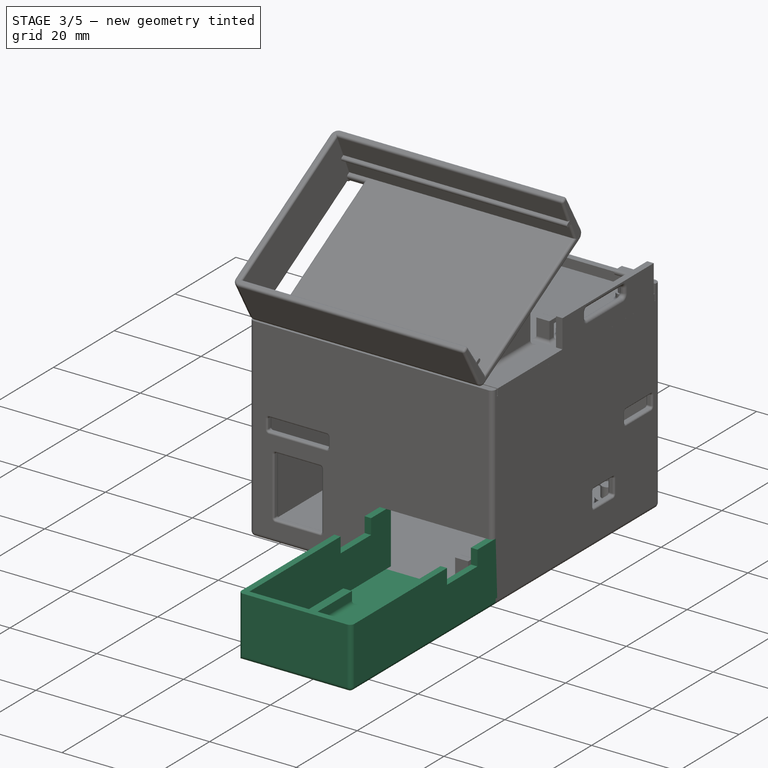
[diagram: stage 3 of 5 — iso view after this stage's code; geometry added in this stage tinted green]
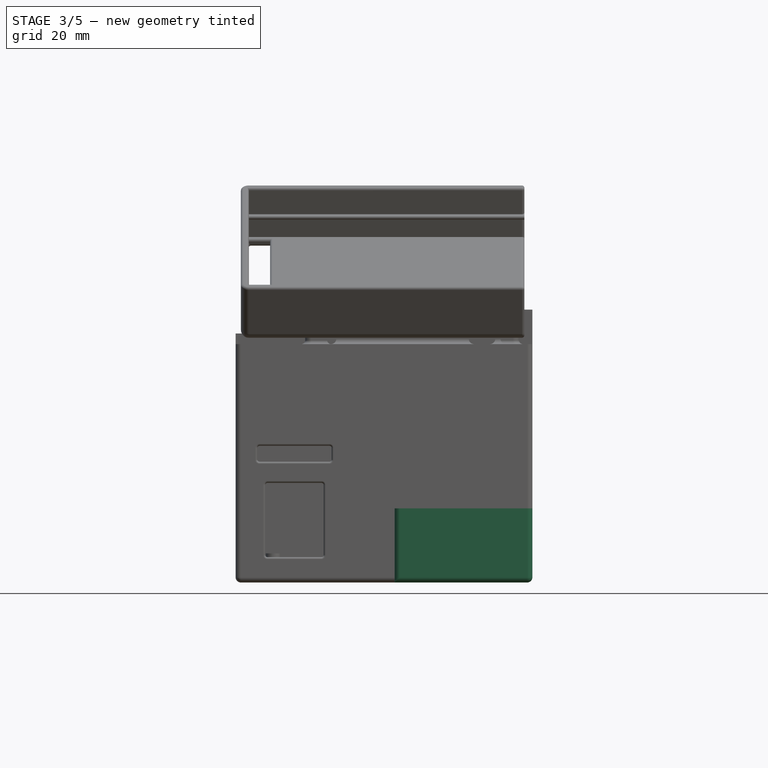
[diagram: stage 3 of 5 — front view after this stage's code; geometry added in this stage tinted green]
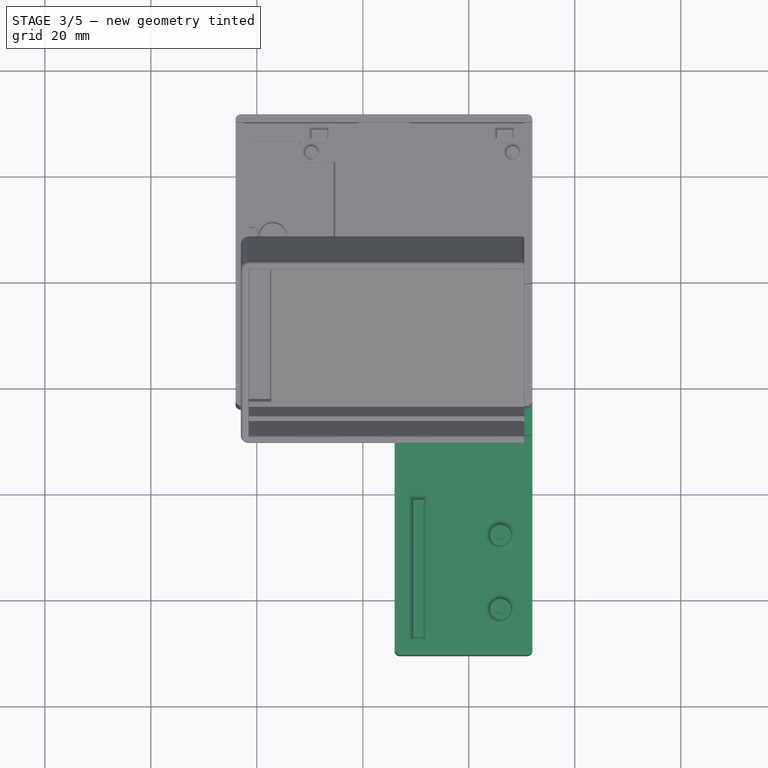
[diagram: stage 3 of 5 — top view after this stage's code; geometry added in this stage tinted green]
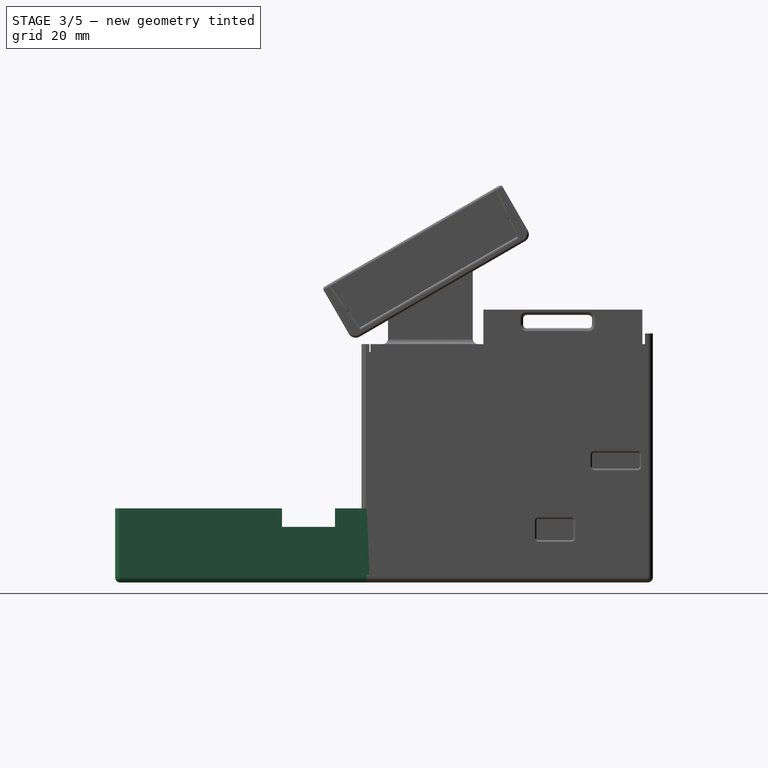
[diagram: stage 3 of 5 — right view after this stage's code; geometry added in this stage tinted green]
FEATURE [Sketcher::SketchObject] Sketch031
  AttachmentOffset = pos=(0,0,1.5) rot=(0,0,1;0rad)
  MapMode = 5
  Placement = pos=(0,0,1.5) rot=(0,0,1;0rad)
  Support = -> [XY_Plane026]
  sketch-geometry (9):
    g0: LineSegment [constr] StartX=13 StartY=9.5 StartZ=0 EndX=-13 EndY=9.5 EndZ=0
    g1: LineSegment [constr] StartX=-13 StartY=9.5 StartZ=0 EndX=-13 EndY=-9.5 EndZ=0
    g2: LineSegment [constr] StartX=-13 StartY=-9.5 StartZ=0 EndX=13 EndY=-9.5 EndZ=0
    g3: LineSegment [constr] StartX=13 StartY=-9.5 StartZ=0 EndX=13 EndY=9.5 EndZ=0
    g4: GeomPoint X=13 Y=0 Z=0
    g5: GeomPoint X=0 Y=9.5 Z=0
    g6: Circle [constr] CenterX=-2.325 CenterY=1.95 CenterZ=0 NormalX=0 NormalY=0 NormalZ=1 AngleXU=0 Radius=4
    g7: Circle CenterX=6.3 CenterY=-7 CenterZ=0 NormalX=0 NormalY=0 NormalZ=1 AngleXU=0 Radius=2
    g8: Circle CenterX=-7.7 CenterY=-7 CenterZ=0 NormalX=0 NormalY=0 NormalZ=1 AngleXU=0 Radius=2
  constraints (23):
    c: Coincident(g0,g1)
    c: Coincident(g1,g2)
    c: Coincident(g2,g3)
    c: Coincident(g3,g0)
    c: Horizontal(g0)
    c: Horizontal(g2)
    c: Vertical(g1)
    c: Vertical(g3)
    c: Symmetric(g0,g0,g5)
    c: Symmetric(g0,g2,g4)
    c: DistanceY(g-1,g4) = 0
    c: DistanceX(g-1,g5) = 0
    c: Distance(g0) = 26
    c: DistanceY(g1,g1) = 19
    c: Diameter(g6) = 8
    c: DistanceX(g0,g6) = 10.675
    c: DistanceY(g6,g0) = 7.55
    c: Diameter(g7) = 4
    c: Diameter(g8) = 4
    c: DistanceX(g8,g7) = 14
    c: DistanceX(g1,g8) = 5.3
    c: DistanceY(g1,g8) = 2.5
    c: DistanceY(g8,g7) = 0
FEATURE [Sketcher::SketchObject] Sketch033
  MapMode = 5
  Support = -> [XY_Plane026]
  expr: Constraints[11] = 26 + (2 + 1.5) * 2 + 15
  expr: Constraints[12] = 19 + (2 + 1.5) * 2
  sketch-geometry (7):
    g0: LineSegment StartX=31.5 StartY=13 StartZ=0 EndX=-16.5 EndY=13 EndZ=0
    g1: LineSegment StartX=-16.5 StartY=13 StartZ=0 EndX=-16.5 EndY=-13 EndZ=0
    g2: LineSegment StartX=-16.5 StartY=-13 StartZ=0 EndX=31.5 EndY=-13 EndZ=0
    g3: LineSegment StartX=31.5 StartY=-13 StartZ=0 EndX=31.5 EndY=13 EndZ=0
    g4: GeomPoint X=31.5 Y=0 Z=0
    g5: GeomPoint X=0 Y=13 Z=0
    g6: Circle [constr] CenterX=-2.325 CenterY=1.95 CenterZ=0 NormalX=0 NormalY=0 NormalZ=1 AngleXU=0 Radius=4
  constraints (18):
    c: Coincident(g0,g1)
    c: Coincident(g1,g2)
    c: Coincident(g2,g3)
    c: Coincident(g3,g0)
    c: Horizontal(g0)
    c: Horizontal(g2)
    c: Vertical(g1)
    c: Vertical(g3)
    c: Symmetric(g0,g2,g4)
    c: DistanceY(g-1,g4) = 0
    c: DistanceX(g-1,g5) = 0
    c: Distance(g0) = 48
    c: DistanceY(g1,g1) = 26
    c: Diameter(g6) = 8
    c: DistanceX(g6) = -2.325
    c: DistanceY(g6) = 1.95
    c: DistanceY(g5) = 13
    c: DistanceX(g0,g5) = 16.5
FEATURE [PartDesign::Pad] Pad015
  Length = 14
  Length2 = 100
  Profile = -> Sketch033
  Type = 0
FEATURE [PartDesign::Thickness] Thickness002
  Base = -> Pad015 [Face6]
  BaseFeature = -> Pad015
  Join = 0
  Mode = 0
  Reversed = true
  Value = 1.5
FEATURE [PartDesign::Pad] Pad016
  BaseFeature = -> Thickness002
  Length = 3
  Length2 = 100
  Profile = -> Sketch031
  Type = 0
FEATURE [PartDesign::Fillet] Fillet013
  Base = -> Pad016 [Edge26,Edge25]
  BaseFeature = -> Pad016
  Radius = 1
FEATURE [PartDesign::Pad] Pad017
  BaseFeature = -> Fillet013
  Length = 3
  Length2 = 100
  Profile = -> Sketch034
  Type = 0
FEATURE [PartDesign::Fillet] Fillet014
  Base = -> Pad017 [Edge6,Edge5,Edge8,Edge7]
  BaseFeature = -> Pad017
  Radius = 1
FEATURE [PartDesign::Pad] Pad018
  BaseFeature = -> Fillet014
  Length = 4
  Length2 = 100
  Profile = -> Sketch035
  Type = 0
FEATURE [PartDesign::Fillet] Fillet015
  Base = -> Pad018 [Edge50,Edge48,Edge51,Edge53]
  BaseFeature = -> Pad018
  Radius = 1
FEATURE [Sketcher::SketchObject] Sketch036
  AttachmentOffset = pos=(0,0,30) rot=(0,0,1;0rad)
  MapMode = 5
  Placement = pos=(30,-6.7e-15,6.7e-15) rot=(0.57735,0.57735,0.57735;2.0944rad)
  Support = -> [YZ_Plane026]
  expr: Constraints[11] = 26 - 2 * 1.5
  expr: Constraints[8] = 14 - 1.5
  sketch-geometry (5):
    g0: LineSegment StartX=11.5 StartY=14 StartZ=0 EndX=-11.5 EndY=14 EndZ=0
    g1: LineSegment StartX=-11.5 StartY=14 StartZ=0 EndX=-11.5 EndY=1.5 EndZ=0
    g2: LineSegment StartX=-11.5 StartY=1.5 StartZ=0 EndX=11.5 EndY=1.5 EndZ=0
    g3: LineSegment StartX=11.5 StartY=1.5 StartZ=0 EndX=11.5 EndY=14 EndZ=0
    g4: GeomPoint X=0 Y=1.5 Z=0
  constraints (13):
    c: Coincident(g0,g1)
    c: Coincident(g1,g2)
    c: Coincident(g2,g3)
    c: Coincident(g3,g0)
    c: Horizontal(g0)
    c: Horizontal(g2)
    c: Vertical(g1)
    c: Vertical(g3)
    c: DistanceY(g3,g3) = 12.5
    c: Symmetric(g1,g2,g4)
    c: DistanceX(g4,g-1) = 0
    c: DistanceX(g0,g0) = 23
    c: DistanceY(g-1,g4) = 1.5
FEATURE [PartDesign::Pocket] Pocket011
  BaseFeature = -> Fillet015
  Length = 5
  Length2 = 100
  Profile = -> Sketch036
  Reversed = true
  Type = 0
FEATURE [Sketcher::SketchObject] Sketch038
  ExternalGeometry = -> [Pocket011]
  MapMode = 5
  Placement = pos=(0,0,0) rot=(1,0,0;1.5708rad)
  Support = -> [XZ_Plane026]
  expr: Constraints[10] = 2 + 1.5
  expr: Constraints[8] = 1.5 + 5
  sketch-geometry (4):
    g0: LineSegment StartX=25 StartY=10.5 StartZ=0 EndX=15 EndY=10.5 EndZ=0
    g1: LineSegment StartX=15 StartY=10.5 StartZ=0 EndX=15 EndY=14 EndZ=0
    g2: LineSegment StartX=15 StartY=14 StartZ=0 EndX=25 EndY=14 EndZ=0
    g3: LineSegment StartX=25 StartY=14 StartZ=0 EndX=25 EndY=10.5 EndZ=0
  constraints (12):
    c: Coincident(g0,g1)
    c: Coincident(g1,g2)
    c: Coincident(g2,g3)
    c: Coincident(g3,g0)
    c: Horizontal(g0)
    c: Horizontal(g2)
    c: Vertical(g1)
    c: Vertical(g3)
    c: DistanceX(g0,g-3) = 6.5
    c: DistanceY(g2,g-3) = 0
    c: DistanceY(g1,g1) = 3.5
    c: DistanceX(g0,g0) = 10
FEATURE [PartDesign::Pocket] Pocket011003
  BaseFeature = -> Pocket011
  Length = 5
  Length2 = 100
  Midplane = true
  Profile = -> Sketch038
  Type = 1
FEATURE [Part::Fillet] Fillet017
  Base = -> Fusion
  Edges = 23 edges r=0.5: [Edge36,Edge37,Edge38,Edge39,Edge40,Edge41,Edge42,Edge43,Edge44,Edge45,Edge46,Edge47,Edge48,Edge49,Edge50,Edge51,Edge52,Edge53,Edge54,Edge55,Edge56,Edge57,Edge58]
FEATURE [Part::Fillet] Fillet018
  Base = -> Fillet017
  Edges = 8 edges r=1: [Edge36,Edge37,Edge38,Edge39,Edge40,Edge41,Edge42,Edge43]
FEATURE [PartDesign::Body] Body
  Group = -> [Sketch002,Sketch004,Pad,Thickness,Fillet001,Sketch005,Sketch006,Sketch007,Pocket,Pocket001,Pocket002,Pocket008,Sketch028,Sketch029,Pocket009,Fillet002,Sketch037,Pocket011002,Sketch040,Pocket011004,Sketch045,Pocket011007]
  Origin = -> Origin022
  Tip = -> Pocket011007
FEATURE [Part::MultiFuse] Fusion001
  Shapes = -> [Body,Body003002,Fillet018]
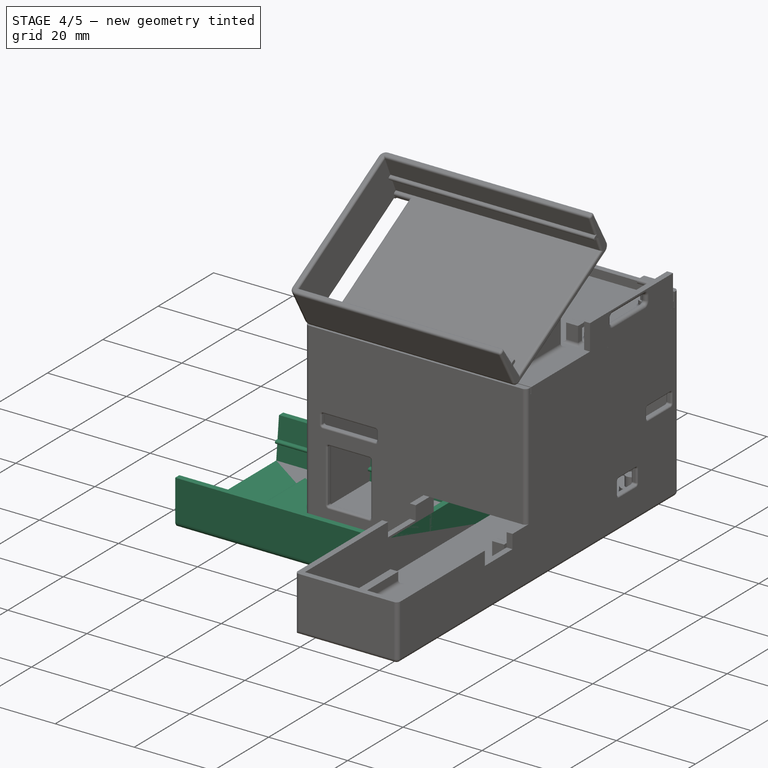
[diagram: stage 4 of 5 — iso view after this stage's code; geometry added in this stage tinted green]
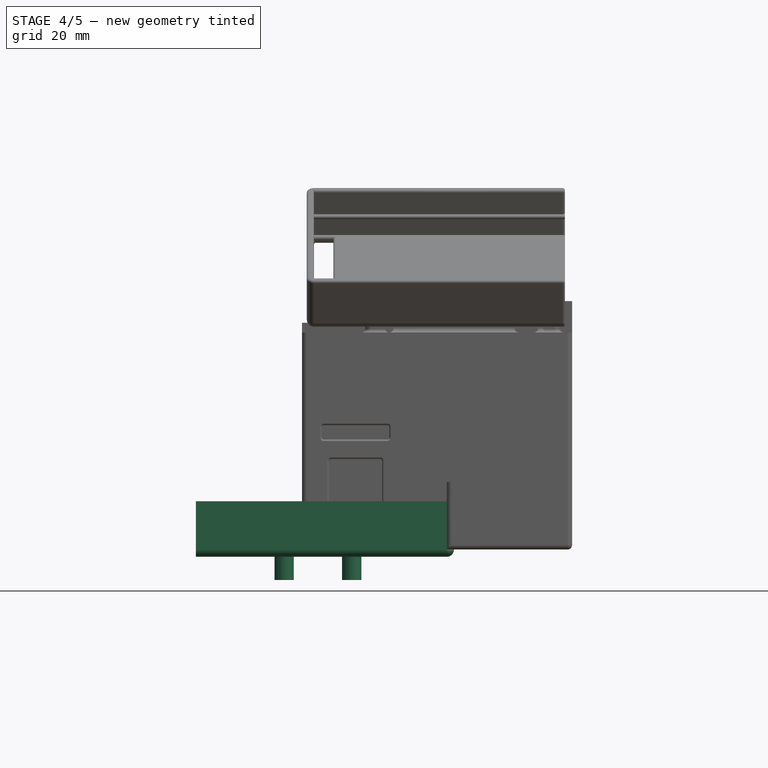
[diagram: stage 4 of 5 — front view after this stage's code; geometry added in this stage tinted green]
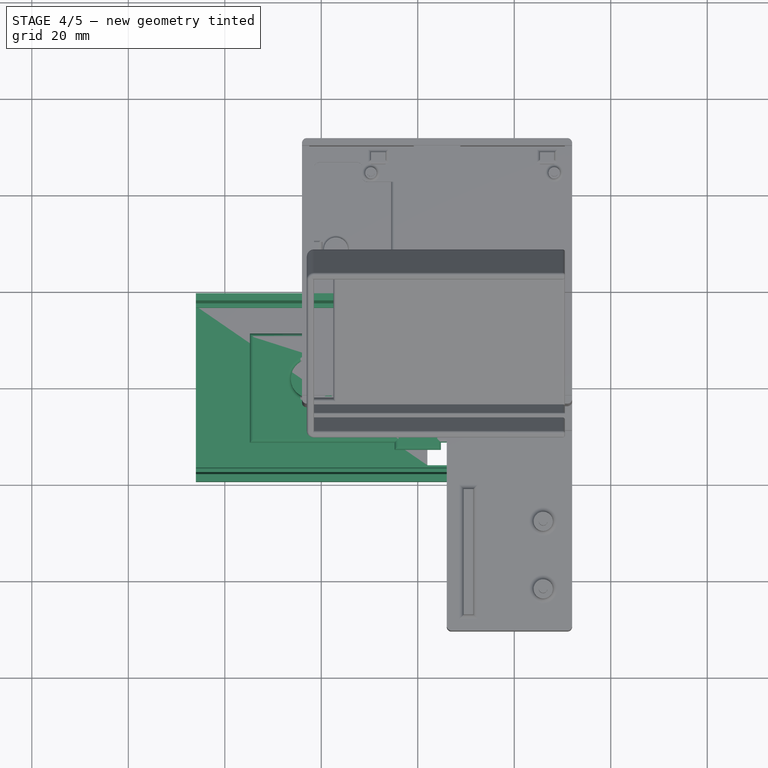
[diagram: stage 4 of 5 — top view after this stage's code; geometry added in this stage tinted green]
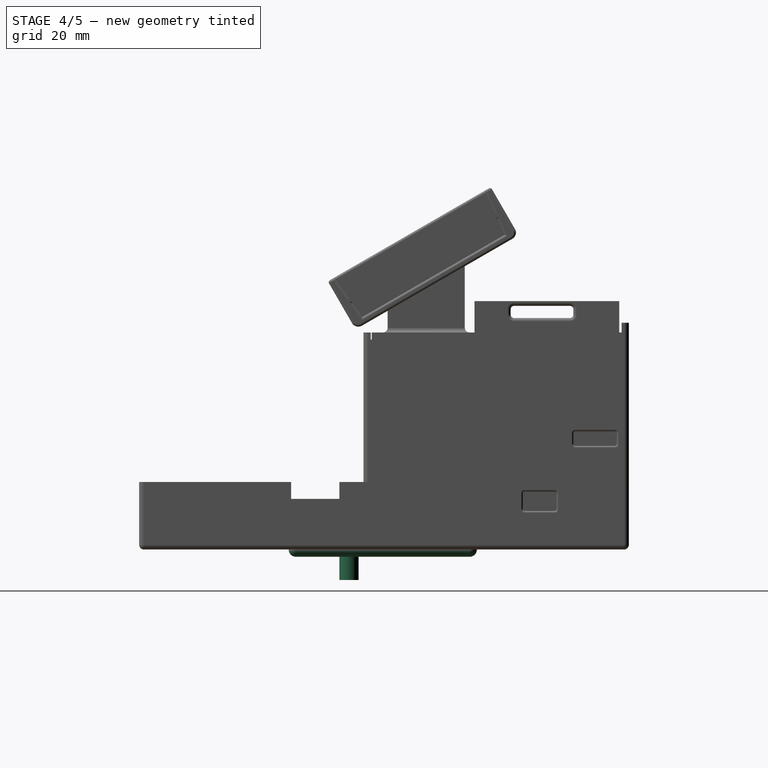
[diagram: stage 4 of 5 — right view after this stage's code; geometry added in this stage tinted green]
FEATURE [Sketcher::SketchObject] Sketch008
  MapMode = 5
  Support = -> [XY_Plane023]
  expr: Constraints[8] = 34 + 2
  sketch-geometry (7):
    g0: LineSegment StartX=26 StartY=18 StartZ=0 EndX=-26 EndY=18 EndZ=0
    g1: LineSegment StartX=-26 StartY=18 StartZ=0 EndX=-26 EndY=-18 EndZ=0
    g2: LineSegment StartX=-26 StartY=-18 StartZ=0 EndX=26 EndY=-18 EndZ=0
    g3: LineSegment StartX=26 StartY=-18 StartZ=0 EndX=26 EndY=18 EndZ=0
    g4: GeomPoint X=26 Y=0 Z=0
    g5: GeomPoint X=0 Y=0 Z=0
    g6: GeomPoint X=0 Y=18 Z=0
  constraints (15):
    c: Coincident(g0,g1)
    c: Coincident(g1,g2)
    c: Coincident(g2,g3)
    c: Coincident(g3,g0)
    c: Horizontal(g0)
    c: Horizontal(g2)
    c: Vertical(g1)
    c: Vertical(g3)
    c: Distance(g1) = 36
    c: Distance(g2) = 52
    c: Symmetric(g0,g2,g4)
    c: DistanceY(g5,g4) = 0
    c: Symmetric(g0,g0,g6)
    c: DistanceX(g5,g6) = 0
    c: Coincident(g5,g-1)
FEATURE [Sketcher::SketchObject] Sketch009
  ExternalGeometry = -> [Sketch008]
  MapMode = 5
  Placement = pos=(0,0,0) rot=(0.57735,0.57735,0.57735;2.0944rad)
  Support = -> [YZ_Plane023]
  expr: Constraints[12] = 3.8 + 0.5
  sketch-geometry (8):
    g0: LineSegment StartX=-17 StartY=0 StartZ=0 EndX=-18 EndY=0 EndZ=0
    g1: LineSegment StartX=-18 StartY=10 StartZ=0 EndX=-18 EndY=0 EndZ=0
    g2: LineSegment StartX=-18 StartY=10 StartZ=0 EndX=-17.4698 EndY=4.69801 EndZ=0
    g3: ArcOfCircle [constr] CenterX=-17.43 CenterY=4.3 CenterZ=0 NormalX=0 NormalY=0 NormalZ=1 AngleXU=0 Radius=0.4 StartAngle=4.81206 EndAngle=7.95365
    g4: LineSegment StartX=-17.3902 StartY=3.90199 StartZ=0 EndX=-17 EndY=0 EndZ=0
    g5: LineSegment StartX=-17.4698 StartY=4.69801 StartZ=0 EndX=-16.8902 EndY=4.69801 EndZ=0
    g6: LineSegment StartX=-17.3902 StartY=3.90199 StartZ=0 EndX=-16.8902 EndY=3.90199 EndZ=0
    g7: ArcOfCircle CenterX=-16.93 CenterY=4.3 CenterZ=0 NormalX=0 NormalY=0 NormalZ=1 AngleXU=0 Radius=0.4 StartAngle=4.81206 EndAngle=7.75431
  constraints (23):
    c: Coincident(g4,g0)
    c: Coincident(g1,g0)
    c: Horizontal(g0)
    c: Vertical(g1)
    c: Coincident(g2,g1)
    c: Distance(g1) = 10
    c: DistanceX(g0,g0) = 1
    c: Coincident(g0,g-3)
    c: Diameter(g3) = 0.8
    c: Coincident(g2,g3)
    c: Coincident(g4,g3)
    c: Tangent(g2,g4)
    c: DistanceY(g0,g3) = 4.3
    c: Symmetric(g2,g3,g3)
    c: Coincident(g6,g4)
    c: Coincident(g5,g2)
    c: Coincident(g7,g5)
    c: Coincident(g7,g6)
    c: DistanceY(g3,g7) = 0
    c: Diameter(g7) = 0.8
    c: DistanceY(g2,g5) = 0
    c: DistanceY(g4,g6) = 0
    c: DistanceX(g3,g7) = 0.5
FEATURE [Sketcher::SketchObject] MirroredSketch
  Placement = pos=(0,0,0) rot=(0.57735,0.57735,-0.57735;4.18879rad)
  expr: Constraints[12] = 3.8 + 0.5
  sketch-geometry (8):
    g0: LineSegment StartX=17 StartY=0 StartZ=0 EndX=18 EndY=0 EndZ=0
    g1: LineSegment StartX=18 StartY=-10 StartZ=0 EndX=18 EndY=0 EndZ=0
    g2: LineSegment StartX=18 StartY=-10 StartZ=0 EndX=17.4698 EndY=-4.69801 EndZ=0
    g3: ArcOfCircle [constr] CenterX=17.43 CenterY=-4.3 CenterZ=0 NormalX=0 NormalY=0 NormalZ=1 AngleXU=0 Radius=0.4 StartAngle=1.67046 EndAngle=4.81206
    g4: LineSegment StartX=17.3902 StartY=-3.90199 StartZ=0 EndX=17 EndY=0 EndZ=0
    g5: LineSegment StartX=17.3902 StartY=-3.90199 StartZ=0 EndX=16.9698 EndY=-3.90199 EndZ=0
    g6: LineSegment StartX=17.4698 StartY=-4.69801 StartZ=0 EndX=16.9698 EndY=-4.69801 EndZ=0
    g7: ArcOfCircle CenterX=16.93 CenterY=-4.3 CenterZ=0 NormalX=0 NormalY=0 NormalZ=1 AngleXU=0 Radius=0.4 StartAngle=1.47113 EndAngle=4.81206
  constraints (24):
    c: Coincident(g4,g0)
    c: Coincident(g1,g0)
    c: Horizontal(g0)
    c: Vertical(g1)
    c: Coincident(g2,g1)
    c: Distance(g1) = 10
    c: Diameter(g3) = 0.8
    c: Coincident(g2,g3)
    c: Coincident(g4,g3)
    c: Tangent(g2,g4)
    c: Symmetric(g2,g3,g3)
    c: DistanceX(g0,g0) = 1
    c: DistanceY(g3,g0) = 4.3
    c: DistanceX(g0) = 18
    c: DistanceY(g0) = 0
    c: Coincident(g5,g4)
    c: Coincident(g6,g2)
    c: Coincident(g7,g5)
    c: Coincident(g7,g6)
    c: DistanceY(g7,g3) = 0
    c: DistanceY(g5,g4) = 0
    c: DistanceY(g2,g6) = 0
    c: Diameter(g7) = 0.8
    c: DistanceX(g7,g3) = 0.5
FEATURE [Sketcher::SketchObject] Sketch010
  ExternalGeometry = -> [Sketch008]
  MapMode = 5
  Support = -> [XY_Plane023]
  sketch-geometry (7):
    g0: LineSegment StartX=26 StartY=16 StartZ=0 EndX=22 EndY=16 EndZ=0
    g1: LineSegment StartX=22 StartY=16 StartZ=0 EndX=22 EndY=-16 EndZ=0
    g2: LineSegment StartX=22 StartY=-16 StartZ=0 EndX=26 EndY=-16 EndZ=0
    g3: LineSegment StartX=26 StartY=-16 StartZ=0 EndX=26 EndY=16 EndZ=0
    g4: GeomPoint X=26 Y=0 Z=0
    g5: GeomPoint X=26 Y=0 Z=0
    g6: GeomPoint X=0 Y=0 Z=0
  constraints (15):
    c: Coincident(g0,g1)
    c: Coincident(g1,g2)
    c: Coincident(g2,g3)
    c: Coincident(g3,g0)
    c: Horizontal(g0)
    c: Horizontal(g2)
    c: Vertical(g1)
    c: Vertical(g3)
    c: DistanceY(g4,g5) = 0
    c: Symmetric(g0,g2,g5)
    c: Distance(g3) = 32
    c: Distance(g2) = 4
    c: DistanceX(g5,g4) = 0
    c: Coincident(g6,g-1)
    c: Symmetric(g-3,g-3,g4)
FEATURE [PartDesign::Pad] Pad001
  Length = 10
  Length2 = 100
  Profile = -> Sketch008
  Type = 0
FEATURE [PartDesign::Thickness] Thickness001
  Base = -> Pad001 [Face6]
  BaseFeature = -> Pad001
  Join = 0
  Mode = 0
  Value = 1.5
FEATURE [PartDesign::Pocket] Pocket003
  BaseFeature = -> Thickness001
  Length = 5
  Length2 = 100
  Profile = -> Sketch010
  Type = 0
FEATURE [PartDesign::Pad] Pad002
  BaseFeature = -> Pocket003
  Length = 52
  Length2 = 100
  Midplane = true
  Profile = -> MirroredSketch
  Type = 0
FEATURE [PartDesign::Pad] Pad003
  BaseFeature = -> Pad002
  Length = 52
  Length2 = 100
  Midplane = true
  Profile = -> Sketch009
  Type = 0
FEATURE [Sketcher::SketchObject] Sketch011
  MapMode = 5
  Support = -> [XY_Plane024]
  expr: Constraints[34] = 10 - 0.2 * 2
  expr: Constraints[16] = 2.325
  expr: Constraints[14] = 13 + 2 - 0.2
  expr: Constraints[11] = 19 + 2 * 2 - 0.2 * 2
  expr: Constraints[15] = 26 / 2 + 2 + 15 - 0.2
  sketch-geometry (19):
    g0: LineSegment StartX=29.8 StartY=11.3 StartZ=0 EndX=24.8 EndY=11.3 EndZ=0
    g1: LineSegment StartX=-14.8 StartY=11.3 StartZ=0 EndX=-14.8 EndY=-11.3 EndZ=0
    g2: LineSegment StartX=-14.8 StartY=-11.3 StartZ=0 EndX=15.2 EndY=-11.3 EndZ=0
    g3: LineSegment StartX=29.8 StartY=-11.3 StartZ=0 EndX=29.8 EndY=11.3 EndZ=0
    g4: GeomPoint X=29.8 Y=0 Z=0
    g5: GeomPoint X=0 Y=11.3 Z=0
    g6: Circle CenterX=-2.325 CenterY=1.95 CenterZ=0 NormalX=0 NormalY=0 NormalZ=1 AngleXU=0 Radius=4
    g7: LineSegment StartX=15.2 StartY=12.8 StartZ=0 EndX=24.8 EndY=12.8 EndZ=0
    g8: LineSegment StartX=24.8 StartY=12.8 StartZ=0 EndX=24.8 EndY=11.3 EndZ=0
    g9: LineSegment StartX=15.2 StartY=11.3 StartZ=0 EndX=15.2 EndY=12.8 EndZ=0
    g10: LineSegment StartX=24.8 StartY=-11.3 StartZ=0 EndX=24.8 EndY=-12.8 EndZ=0
    g11: LineSegment StartX=24.8 StartY=-12.8 StartZ=0 EndX=15.2 EndY=-12.8 EndZ=0
    g12: LineSegment StartX=15.2 StartY=-12.8 StartZ=0 EndX=15.2 EndY=-11.3 EndZ=0
    g13: GeomPoint X=20 Y=-12.8 Z=0
    g14: GeomPoint X=20 Y=12.8 Z=0
    g15: GeomPoint X=20 Y=0 Z=0
    g16: GeomPoint X=24.8 Y=-11.3 Z=0
    g17: LineSegment StartX=24.8 StartY=-11.3 StartZ=0 EndX=29.8 EndY=-11.3 EndZ=0
    g18: LineSegment StartX=15.2 StartY=11.3 StartZ=0 EndX=-14.8 EndY=11.3 EndZ=0
  constraints (48):
    c: Coincident(g18,g1)
    c: Coincident(g1,g2)
    c: Coincident(g17,g3)
    c: Coincident(g3,g0)
    c: Horizontal(g0)
    c: Horizontal(g2)
    c: Vertical(g1)
    c: Vertical(g3)
    c: Symmetric(g0,g17,g4)
    c: DistanceY(g-1,g4) = 0
    c: DistanceX(g-1,g5) = 0
    c: DistanceY(g1,g1) = 22.6
    c: Diameter(g6) = 8
    c: DistanceY(g5,g18) = 0
    c: DistanceX(g18,g-1) = 14.8
    c: DistanceX(g-1,g4) = 29.8
    c: DistanceX(g6,g-1) = 2.325
    c: DistanceY(g-1,g6) = 1.95
    c: Coincident(g7,g8)
    c: Coincident(g9,g7)
    c: Horizontal(g7)
    c: Vertical(g8)
    c: Vertical(g9)
    c: Coincident(g10,g11)
    c: Coincident(g11,g12)
    c: Horizontal(g11)
    c: Vertical(g10)
    c: Vertical(g12)
    c: DistanceY(g10,g12) = 0
    c: DistanceY(g8,g9) = 0
    c: DistanceX(g12,g9) = 0
    c: DistanceX(g8,g10) = 0
    c: DistanceY(g12,g12) = 1.5
    c: DistanceY(g9,g9) = 1.5
    c: DistanceX(g11,g11) = 9.6
    c: Symmetric(g11,g10,g13)
    c: DistanceX(g-1,g13) = 20
    c: Symmetric(g7,g7,g14)
    c: Symmetric(g14,g13,g15)
    c: DistanceY(g-1,g15) = 0
    c: DistanceY(g17,g16) = 0
    c: Coincident(g16,g10)
    c: PointOnObject(g2,g12)
    c: PointOnObject(g17,g10)
    c: Tangent(g2,g17)
    c: PointOnObject(g0,g8)
    c: PointOnObject(g18,g9)
    c: Tangent(g0,g18)
FEATURE [PartDesign::Pad] Pad004
  Length = 1.5
  Length2 = 100
  Profile = -> Sketch011
  Type = 0
FEATURE [Sketcher::SketchObject] Sketch012
  MapMode = 5
  Support = -> [XY_Plane024]
  sketch-geometry (9):
    g0: LineSegment [constr] StartX=13 StartY=9.5 StartZ=0 EndX=-13 EndY=9.5 EndZ=0
    g1: LineSegment [constr] StartX=-13 StartY=9.5 StartZ=0 EndX=-13 EndY=-9.5 EndZ=0
    g2: LineSegment [constr] StartX=-13 StartY=-9.5 StartZ=0 EndX=13 EndY=-9.5 EndZ=0
    g3: LineSegment [constr] StartX=13 StartY=-9.5 StartZ=0 EndX=13 EndY=9.5 EndZ=0
    g4: GeomPoint X=13 Y=0 Z=0
    g5: GeomPoint X=0 Y=9.5 Z=0
    g6: Circle [constr] CenterX=-2.325 CenterY=1.95 CenterZ=0 NormalX=0 NormalY=0 NormalZ=1 AngleXU=0 Radius=4
    g7: Circle CenterX=6.3 CenterY=-7 CenterZ=0 NormalX=0 NormalY=0 NormalZ=1 AngleXU=0 Radius=2
    g8: Circle CenterX=-7.7 CenterY=-7 CenterZ=0 NormalX=0 NormalY=0 NormalZ=1 AngleXU=0 Radius=2
  constraints (23):
    c: Coincident(g0,g1)
    c: Coincident(g1,g2)
    c: Coincident(g2,g3)
    c: Coincident(g3,g0)
    c: Horizontal(g0)
    c: Horizontal(g2)
    c: Vertical(g1)
    c: Vertical(g3)
    c: Symmetric(g0,g0,g5)
    c: Symmetric(g0,g2,g4)
    c: DistanceY(g-1,g4) = 0
    c: DistanceX(g-1,g5) = 0
    c: Distance(g0) = 26
    c: DistanceY(g1,g1) = 19
    c: Diameter(g6) = 8
    c: DistanceX(g0,g6) = 10.675
    c: DistanceY(g6,g0) = 7.55
    c: Diameter(g7) = 4
    c: Diameter(g8) = 4
    c: DistanceX(g8,g7) = 14
    c: DistanceX(g1,g8) = 5.3
    c: DistanceY(g1,g8) = 2.5
    c: DistanceY(g8,g7) = 0
FEATURE [PartDesign::Pad] Pad005
  BaseFeature = -> Pad004
  Length = 6.3
  Length2 = 100
  Profile = -> Sketch012
  Reversed = true
  Type = 0
  expr: Length = 6.3
FEATURE [Sketcher::SketchObject] Sketch013
  MapMode = 5
  Support = -> [XY_Plane024]
  expr: Constraints[29] = 2.3 + 4 - 1
  sketch-geometry (12):
    g0: LineSegment [constr] StartX=13 StartY=9.5 StartZ=0 EndX=-13 EndY=9.5 EndZ=0
    g1: LineSegment [constr] StartX=-13 StartY=9.5 StartZ=0 EndX=-13 EndY=-9.5 EndZ=0
    g2: LineSegment [constr] StartX=-13 StartY=-9.5 StartZ=0 EndX=13 EndY=-9.5 EndZ=0
    g3: LineSegment [constr] StartX=13 StartY=-9.5 StartZ=0 EndX=13 EndY=9.5 EndZ=0
    g4: GeomPoint X=13 Y=0 Z=0
    g5: GeomPoint X=0 Y=9.5 Z=0
    g6: Circle [constr] CenterX=-2.325 CenterY=1.95 CenterZ=0 NormalX=0 NormalY=0 NormalZ=1 AngleXU=0 Radius=4
    g7: LineSegment StartX=-7.625 StartY=3.95 StartZ=0 EndX=-10.625 EndY=3.95 EndZ=0
    g8: LineSegment StartX=-10.625 StartY=3.95 StartZ=0 EndX=-10.625 EndY=-0.05 EndZ=0
    g9: LineSegment StartX=-10.625 StartY=-0.05 StartZ=0 EndX=-7.625 EndY=-0.05 EndZ=0
    g10: LineSegment StartX=-7.625 StartY=-0.05 StartZ=0 EndX=-7.625 EndY=3.95 EndZ=0
    g11: GeomPoint X=-7.625 Y=1.95 Z=0
  constraints (30):
    c: Coincident(g0,g1)
    c: Coincident(g1,g2)
    c: Coincident(g2,g3)
    c: Coincident(g3,g0)
    c: Horizontal(g0)
    c: Horizontal(g2)
    c: Vertical(g1)
    c: Vertical(g3)
    c: Symmetric(g0,g0,g5)
    c: Symmetric(g0,g2,g4)
    c: DistanceY(g-1,g4) = 0
    c: DistanceX(g-1,g5) = 0
    c: Distance(g0) = 26
    c: DistanceY(g1,g1) = 19
    c: Diameter(g6) = 8
    c: DistanceX(g0,g6) = 10.675
    c: DistanceY(g6,g0) = 7.55
    c: Coincident(g7,g8)
    c: Coincident(g8,g9)
    c: Coincident(g9,g10)
    c: Coincident(g10,g7)
    c: Horizontal(g7)
    c: Horizontal(g9)
    c: Vertical(g8)
    c: Vertical(g10)
    c: DistanceY(g8,g8) = 4
    c: Symmetric(g7,g9,g11)
    c: DistanceY(g6,g11) = 0
    c: DistanceX(g9,g9) = 3
    c: DistanceX(g11,g6) = 5.3
FEATURE [PartDesign::Pocket] Pocket004
  BaseFeature = -> Pad005
  Length = 1.1
  Length2 = 100
  Profile = -> Sketch013
  Reversed = true
  Type = 0
FEATURE [Sketcher::SketchObject] Sketch025
  AttachmentOffset = pos=(0,0,-21.2) rot=(0,0,1;0rad)
  MapMode = 5
  Placement = pos=(-21.2,4.7e-15,-4.7e-15) rot=(0.57735,0.57735,0.57735;2.0944rad)
  Support = -> [YZ_Plane025]
  expr: Constraints[10] = 2.5
  sketch-geometry (5):
    g0: LineSegment StartX=-12.5 StartY=2.5 StartZ=0 EndX=12.5 EndY=2.5 EndZ=0
    g1: LineSegment StartX=12.5 StartY=2.5 StartZ=0 EndX=12.5 EndY=6 EndZ=0
    g2: LineSegment StartX=12.5 StartY=6 StartZ=0 EndX=-12.5 EndY=6 EndZ=0
    g3: LineSegment StartX=-12.5 StartY=6 StartZ=0 EndX=-12.5 EndY=2.5 EndZ=0
    g4: GeomPoint X=0 Y=2.5 Z=0
  constraints (13):
    c: Coincident(g0,g1)
    c: Coincident(g1,g2)
    c: Coincident(g2,g3)
    c: Coincident(g3,g0)
    c: Horizontal(g0)
    c: Horizontal(g2)
    c: Vertical(g1)
    c: Vertical(g3)
    c: DistanceX(g2,g2) = 25
    c: DistanceY(g3,g3) = 3.5
    c: DistanceY(g-1,g0) = 2.5
    c: Symmetric(g0,g0,g4)
    c: DistanceX(g-1,g4) = 0
FEATURE [Sketcher::SketchObject] Sketch026
  ExternalGeometry = -> [Pad003]
  MapMode = 5
  Placement = pos=(0,0,0) rot=(0.57735,0.57735,0.57735;2.0944rad)
  Support = -> [YZ_Plane023]
  sketch-geometry (5):
    g0: LineSegment StartX=-15.5 StartY=8.69801 StartZ=0 EndX=15.5 EndY=8.69801 EndZ=0
    g1: LineSegment StartX=15.5 StartY=8.69801 StartZ=0 EndX=15.5 EndY=4.69801 EndZ=0
    g2: LineSegment StartX=15.5 StartY=4.69801 StartZ=0 EndX=-15.5 EndY=4.69801 EndZ=0
    g3: LineSegment StartX=-15.5 StartY=4.69801 StartZ=0 EndX=-15.5 EndY=8.69801 EndZ=0
    g4: GeomPoint X=6e-15 Y=4.69801 Z=0
  constraints (11):
    c: Coincident(g0,g1)
    c: Coincident(g1,g2)
    c: Coincident(g2,g3)
    c: Coincident(g3,g0)
    c: Horizontal(g0)
    c: Vertical(g1)
    c: Vertical(g3)
    c: DistanceY(g1,g1) = 4
    c: Symmetric(g2,g1,g4)
    c: DistanceX(g2,g2) = 31
    c: Horizontal(g2)
FEATURE [PartDesign::Pocket] Pocket006
  BaseFeature = -> Pad003
  Length = 5
  Length2 = 100
  Profile = -> Sketch026
  Type = 0
FEATURE [Sketcher::SketchObject] Sketch027
  AttachmentOffset = pos=(0,0,-26) rot=(0,0,1;0rad)
  ExternalGeometry = -> [Sketch008]
  MapMode = 5
  Placement = pos=(-26,5.8e-15,-5.8e-15) rot=(0.57735,0.57735,0.57735;2.0944rad)
  Support = -> [YZ_Plane023]
  expr: AttachmentOffset.Base.z = -52 / 2
  sketch-geometry (4):
    g0: LineSegment StartX=-19.5 StartY=23.5 StartZ=0 EndX=19.5 EndY=23.5 EndZ=0
    g1: LineSegment StartX=19.5 StartY=23.5 StartZ=0 EndX=19.5 EndY=-1.5 EndZ=0
    g2: LineSegment StartX=19.5 StartY=-1.5 StartZ=0 EndX=-19.5 EndY=-1.5 EndZ=0
    g3: LineSegment StartX=-19.5 StartY=-1.5 StartZ=0 EndX=-19.5 EndY=23.5 EndZ=0
  constraints (12):
    c: Coincident(g0,g1)
    c: Coincident(g1,g2)
    c: Coincident(g2,g3)
    c: Coincident(g3,g0)
    c: Horizontal(g0)
    c: Vertical(g1)
    c: Vertical(g3)
    c: Horizontal(g2)
    c: DistanceX(g2,g-3) = 1.5
    c: DistanceX(g-3,g1) = 1.5
    c: DistanceY(g-3,g2) = -1.5
    c: DistanceY(g3,g3) = 25
FEATURE [PartDesign::Pocket] Pocket007
  BaseFeature = -> Pocket006
  Length = 10
  Length2 = 100
  Profile = -> Sketch027
  Type = 1
FEATURE [PartDesign::Fillet] Fillet004
  Base = -> Pocket004 [Edge26,Edge20]
  BaseFeature = -> Pocket004
  Radius = 1
FEATURE [Sketcher::SketchObject] Sketch034
  AttachmentOffset = pos=(0,0,1.5) rot=(0,0,1;0rad)
  MapMode = 5
  Placement = pos=(0,0,1.5) rot=(0,0,1;0rad)
  Support = -> [XY_Plane026]
  sketch-geometry (13):
    g0: LineSegment [constr] StartX=13 StartY=9.5 StartZ=0 EndX=-13 EndY=9.5 EndZ=0
    g1: LineSegment [constr] StartX=-13 StartY=9.5 StartZ=0 EndX=-13 EndY=-9.5 EndZ=0
    g2: LineSegment [constr] StartX=-13 StartY=-9.5 StartZ=0 EndX=13 EndY=-9.5 EndZ=0
    g3: LineSegment [constr] StartX=13 StartY=-9.5 StartZ=0 EndX=13 EndY=9.5 EndZ=0
    g4: GeomPoint X=13 Y=0 Z=0
    g5: GeomPoint X=0 Y=9.5 Z=0
    g6: Circle [constr] CenterX=-2.325 CenterY=1.95 CenterZ=0 NormalX=0 NormalY=0 NormalZ=1 AngleXU=0 Radius=4
    g7: Circle [constr] CenterX=6.3 CenterY=-7 CenterZ=0 NormalX=0 NormalY=0 NormalZ=1 AngleXU=0 Radius=2
    g8: Circle [constr] CenterX=-7.7 CenterY=-7 CenterZ=0 NormalX=0 NormalY=0 NormalZ=1 AngleXU=0 Radius=2
    g9: LineSegment StartX=-13 StartY=9.5 StartZ=0 EndX=13 EndY=9.5 EndZ=0
    g10: LineSegment StartX=13 StartY=9.5 StartZ=0 EndX=13 EndY=7.5 EndZ=0
    g11: LineSegment StartX=13 StartY=7.5 StartZ=0 EndX=-13 EndY=7.5 EndZ=0
    g12: LineSegment StartX=-13 StartY=7.5 StartZ=0 EndX=-13 EndY=9.5 EndZ=0
  constraints (35):
    c: Coincident(g0,g1)
    c: Coincident(g1,g2)
    c: Coincident(g2,g3)
    c: Coincident(g3,g0)
    c: Horizontal(g0)
    c: Horizontal(g2)
    c: Vertical(g1)
    c: Vertical(g3)
    c: Symmetric(g0,g0,g5)
    c: Symmetric(g0,g2,g4)
    c: DistanceY(g-1,g4) = 0
    c: DistanceX(g-1,g5) = 0
    c: Distance(g0) = 26
    c: DistanceY(g1,g1) = 19
    c: Diameter(g6) = 8
    c: DistanceX(g0,g6) = 10.675
    c: DistanceY(g6,g0) = 7.55
    c: Diameter(g7) = 4
    c: Diameter(g8) = 4
    c: DistanceX(g8,g7) = 14
    c: DistanceX(g1,g8) = 5.3
    c: DistanceY(g1,g8) = 2.5
    c: DistanceY(g8,g7) = 0
    c: Coincident(g9,g10)
    c: Coincident(g10,g11)
    c: Coincident(g11,g12)
    c: Coincident(g12,g9)
    c: Horizontal(g9)
    c: Horizontal(g11)
    c: Vertical(g10)
    c: Vertical(g12)
    c: DistanceY(g10,g10) = 2
    c: DistanceX(g11,g0) = 0
    c: DistanceX(g0,g10) = 0
    c: DistanceY(g9,g0) = 0
FEATURE [Sketcher::SketchObject] Sketch035
  AttachmentOffset = pos=(0,0,4.5) rot=(0,0,1;0rad)
  MapMode = 5
  Placement = pos=(0,0,4.5) rot=(0,0,1;0rad)
  Support = -> [XY_Plane026]
  sketch-geometry (11):
    g0: LineSegment [constr] StartX=13 StartY=9.5 StartZ=0 EndX=-13 EndY=9.5 EndZ=0
    g1: LineSegment [constr] StartX=-13 StartY=9.5 StartZ=0 EndX=-13 EndY=-9.5 EndZ=0
    g2: LineSegment [constr] StartX=-13 StartY=-9.5 StartZ=0 EndX=13 EndY=-9.5 EndZ=0
    g3: LineSegment [constr] StartX=13 StartY=-9.5 StartZ=0 EndX=13 EndY=9.5 EndZ=0
    g4: GeomPoint X=13 Y=-1e-16 Z=0
    g5: GeomPoint X=0 Y=9.5 Z=0
    g6: Circle [constr] CenterX=-2.325 CenterY=1.95 CenterZ=0 NormalX=0 NormalY=0 NormalZ=1 AngleXU=0 Radius=4
    g7: Circle [constr] CenterX=6.3 CenterY=-7 CenterZ=0 NormalX=0 NormalY=0 NormalZ=1 AngleXU=0 Radius=2
    g8: Circle [constr] CenterX=-7.7 CenterY=-7 CenterZ=0 NormalX=0 NormalY=0 NormalZ=1 AngleXU=0 Radius=2
    g9: Circle CenterX=-7.7 CenterY=-7 CenterZ=0 NormalX=0 NormalY=0 NormalZ=1 AngleXU=0 Radius=0.9
    g10: Circle CenterX=6.3 CenterY=-7 CenterZ=0 NormalX=0 NormalY=0 NormalZ=1 AngleXU=0 Radius=0.9
  constraints (27):
    c: Coincident(g0,g1)
    c: Coincident(g1,g2)
    c: Coincident(g2,g3)
    c: Coincident(g3,g0)
    c: Horizontal(g0)
    c: Horizontal(g2)
    c: Vertical(g1)
    c: Vertical(g3)
    c: Symmetric(g0,g0,g5)
    c: Symmetric(g0,g2,g4)
    c: DistanceY(g-1,g4) = 0
    c: DistanceX(g-1,g5) = 0
    c: Distance(g0) = 26
    c: DistanceY(g1,g1) = 19
    c: Diameter(g6) = 8
    c: DistanceX(g0,g6) = 10.675
    c: DistanceY(g6,g0) = 7.55
    c: Diameter(g7) = 4
    c: Diameter(g8) = 4
    c: DistanceX(g8,g7) = 14
    c: DistanceX(g1,g8) = 5.3
    c: DistanceY(g1,g8) = 2.5
    c: DistanceY(g8,g7) = 0
    c: Diameter(g10) = 1.8
    c: Diameter(g9) = 1.8
    c: Coincident(g9,g8)
    c: Coincident(g10,g7)
FEATURE [PartDesign::Pocket] Pocket010
  BaseFeature = -> Fillet004
  Length = 3
  Length2 = 100
  Profile = -> Sketch014
  Reversed = true
  Type = 0
FEATURE [PartDesign::Body] Body003002
  Group = -> [Sketch031,Sketch033,Pad015,Thickness002,Pad016,Sketch035,Fillet013,Sketch034,Pad017,Fillet014,Pad018,Fillet015,Sketch036,Pocket011,Sketch038,Pocket011003]
  Origin = -> Origin026
  Placement = pos=(39,-34,0) rot=(0,0,1;1.5708rad)
  Tip = -> Pocket011003
FEATURE [Part::Feature] Body001002  label="Display_Mount002"
  Placement = pos=(24.5,10.5,41.7) rot=(0,-0.258902,0.965904;3.14159rad)
  shape: bbox 55.76 x 50.41 x 32.58 mm, 66 faces (baked)
FEATURE [PartDesign::Fillet] Fillet016
  Base = -> Pocket010 [Face22]
  BaseFeature = -> Pocket010
  Radius = 0.75
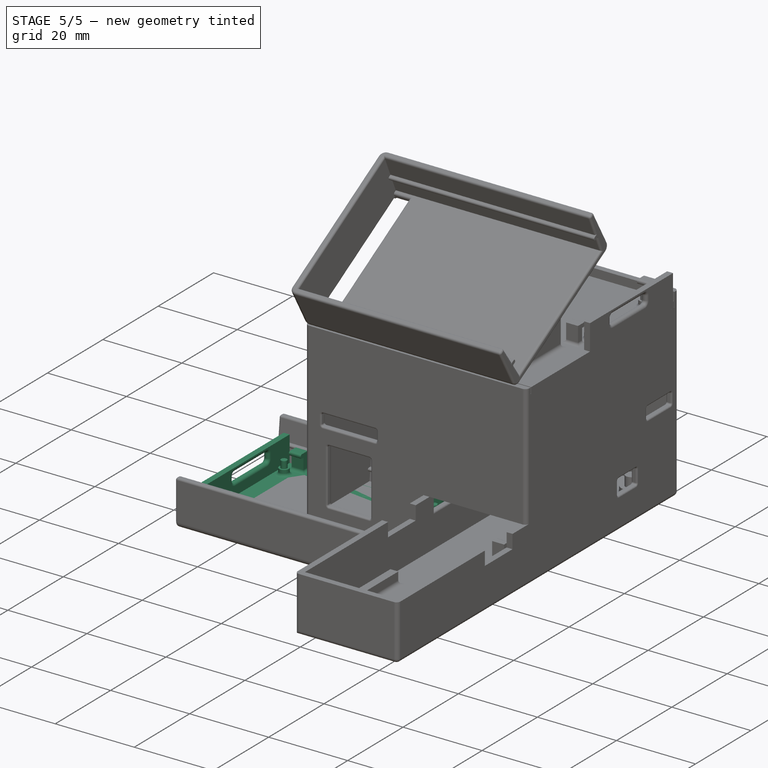
[diagram: stage 5 of 5 — iso view after this stage's code; geometry added in this stage tinted green]
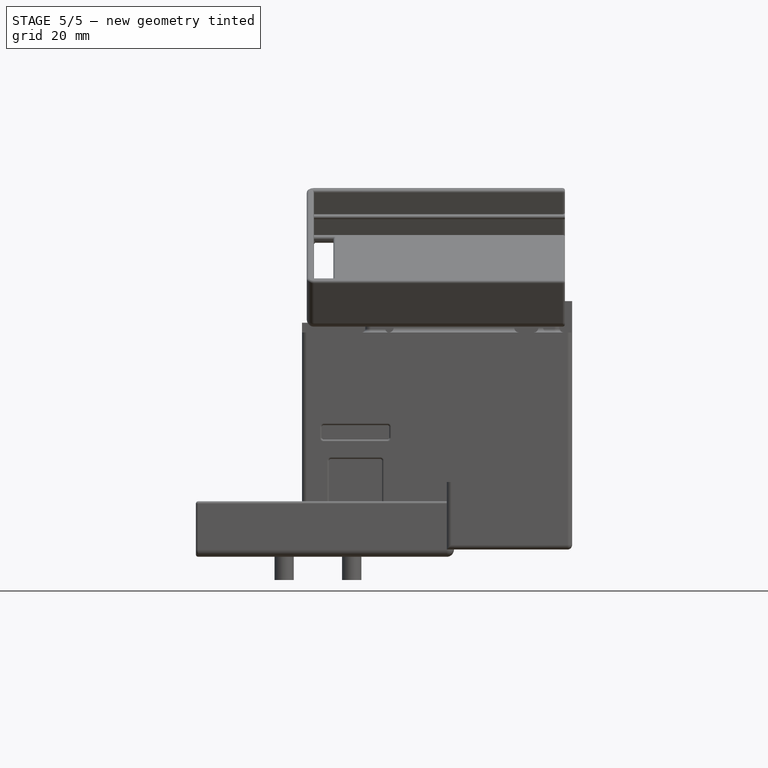
[diagram: stage 5 of 5 — front view after this stage's code; geometry added in this stage tinted green]
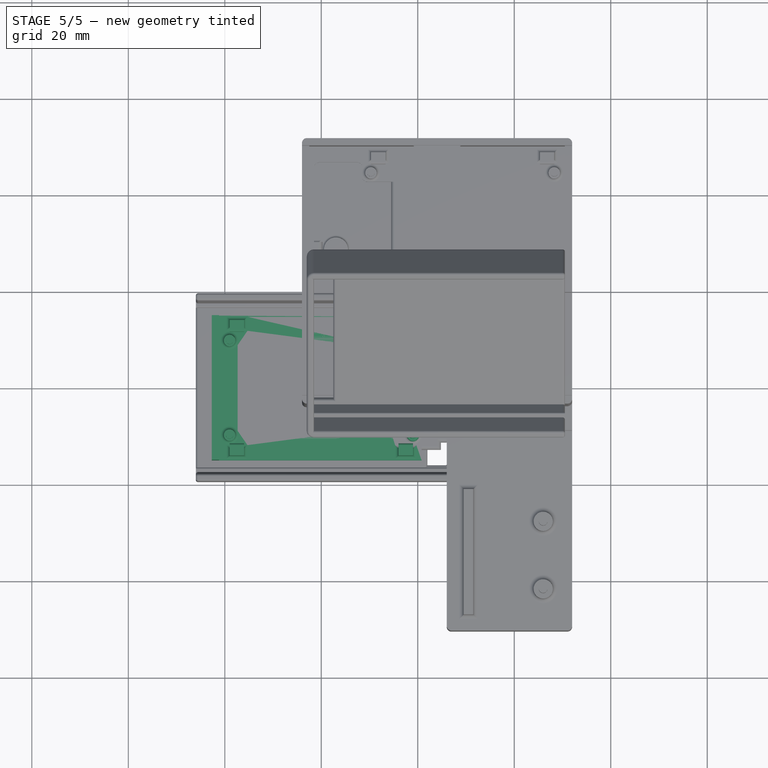
[diagram: stage 5 of 5 — top view after this stage's code; geometry added in this stage tinted green]
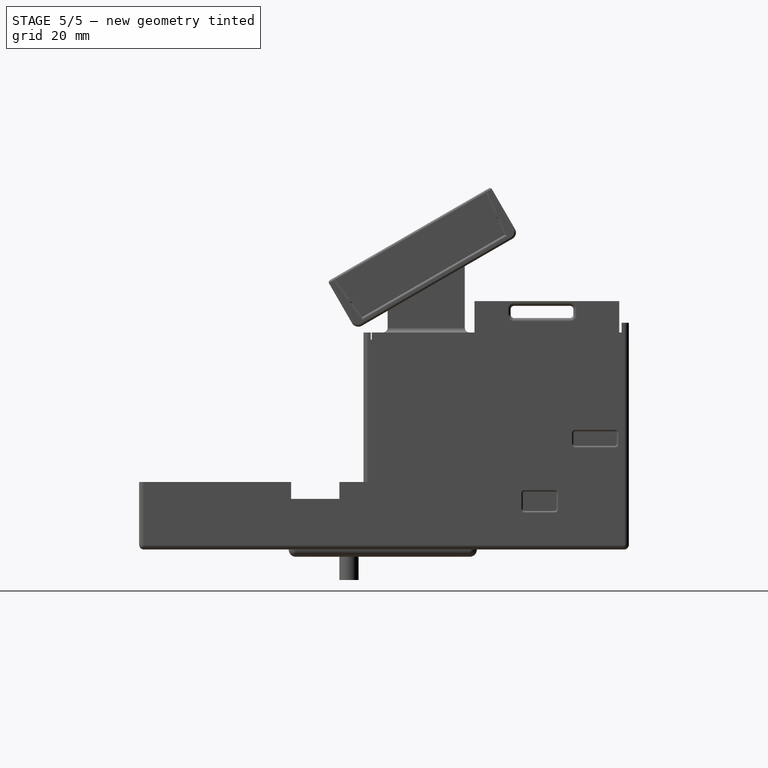
[diagram: stage 5 of 5 — right view after this stage's code; geometry added in this stage tinted green]
FEATURE [Sketcher::SketchObject] Sketch014
  AttachmentOffset = pos=(0,0,-6.3) rot=(0,0,1;0rad)
  MapMode = 5
  Placement = pos=(0,0,-6.3) rot=(0,0,1;0rad)
  Support = -> [XY_Plane024]
  sketch-geometry (11):
    g0: LineSegment [constr] StartX=13 StartY=9.5 StartZ=0 EndX=-13 EndY=9.5 EndZ=0
    g1: LineSegment [constr] StartX=-13 StartY=9.5 StartZ=0 EndX=-13 EndY=-9.5 EndZ=0
    g2: LineSegment [constr] StartX=-13 StartY=-9.5 StartZ=0 EndX=13 EndY=-9.5 EndZ=0
    g3: LineSegment [constr] StartX=13 StartY=-9.5 StartZ=0 EndX=13 EndY=9.5 EndZ=0
    g4: GeomPoint X=13 Y=-1e-16 Z=0
    g5: GeomPoint X=0 Y=9.5 Z=0
    g6: Circle [constr] CenterX=-2.325 CenterY=1.95 CenterZ=0 NormalX=0 NormalY=0 NormalZ=1 AngleXU=0 Radius=4
    g7: Circle [constr] CenterX=6.3 CenterY=-7 CenterZ=0 NormalX=0 NormalY=0 NormalZ=1 AngleXU=0 Radius=2
    g8: Circle [constr] CenterX=-7.7 CenterY=-7 CenterZ=0 NormalX=0 NormalY=0 NormalZ=1 AngleXU=0 Radius=2
    g9: Circle CenterX=-7.7 CenterY=-7 CenterZ=0 NormalX=0 NormalY=0 NormalZ=1 AngleXU=0 Radius=1.1
    g10: Circle CenterX=6.3 CenterY=-7 CenterZ=0 NormalX=0 NormalY=0 NormalZ=1 AngleXU=0 Radius=1.1
  constraints (27):
    c: Coincident(g0,g1)
    c: Coincident(g1,g2)
    c: Coincident(g2,g3)
    c: Coincident(g3,g0)
    c: Horizontal(g0)
    c: Horizontal(g2)
    c: Vertical(g1)
    c: Vertical(g3)
    c: Symmetric(g0,g0,g5)
    c: Symmetric(g0,g2,g4)
    c: DistanceY(g-1,g4) = 0
    c: DistanceX(g-1,g5) = 0
    c: Distance(g0) = 26
    c: DistanceY(g1,g1) = 19
    c: Diameter(g6) = 8
    c: DistanceX(g0,g6) = 10.675
    c: DistanceY(g6,g0) = 7.55
    c: Diameter(g7) = 4
    c: Diameter(g8) = 4
    c: DistanceX(g8,g7) = 14
    c: DistanceX(g1,g8) = 5.3
    c: DistanceY(g1,g8) = 2.5
    c: DistanceY(g8,g7) = 0
    c: Diameter(g10) = 2.2
    c: Diameter(g9) = 2.2
    c: Coincident(g9,g8)
    c: Coincident(g10,g7)
FEATURE [Sketcher::SketchObject] Sketch018
  AttachmentOffset = pos=(0,0,3) rot=(0,0,1;0rad)
  MapMode = 5
  Placement = pos=(0,0,3) rot=(0,0,1;0rad)
  Support = -> [XY_Plane025]
  expr: Constraints[83] = 3 - 0.25
  expr: Constraints[82] = 3 - 0.25
  expr: Constraints[81] = 3 - 0.25
  expr: Constraints[80] = 3 - 0.25
  sketch-geometry (32):
    g0: LineSegment [constr] StartX=-21 StartY=12 StartZ=0 EndX=21 EndY=12 EndZ=0
    g1: LineSegment [constr] StartX=21 StartY=12 StartZ=0 EndX=21 EndY=-12 EndZ=0
    g2: LineSegment [constr] StartX=21 StartY=-12 StartZ=0 EndX=-21 EndY=-12 EndZ=0
    g3: LineSegment [constr] StartX=-21 StartY=-12 StartZ=0 EndX=-21 EndY=12 EndZ=0
    g4: Circle CenterX=-19 CenterY=9.8 CenterZ=0 NormalX=0 NormalY=0 NormalZ=1 AngleXU=0 Radius=0.75
    g5: Circle CenterX=19 CenterY=9.8 CenterZ=0 NormalX=0 NormalY=0 NormalZ=1 AngleXU=0 Radius=0.75
    g6: Circle CenterX=19 CenterY=-9.8 CenterZ=0 NormalX=0 NormalY=0 NormalZ=1 AngleXU=0 Radius=0.75
    g7: Circle CenterX=-19 CenterY=-9.8 CenterZ=0 NormalX=0 NormalY=0 NormalZ=1 AngleXU=0 Radius=0.75
    g8: GeomPoint X=0 Y=12 Z=0
    g9: GeomPoint X=-21 Y=0 Z=0
    g10: Circle [constr] CenterX=-19 CenterY=9.8 CenterZ=0 NormalX=0 NormalY=0 NormalZ=1 AngleXU=0 Radius=1.2
    g11: Circle [constr] CenterX=-19 CenterY=-9.8 CenterZ=0 NormalX=0 NormalY=0 NormalZ=1 AngleXU=0 Radius=1.2
    g12: Circle [constr] CenterX=19 CenterY=-9.8 CenterZ=0 NormalX=0 NormalY=0 NormalZ=1 AngleXU=0 Radius=1.2
    g13: Circle [constr] CenterX=19 CenterY=9.8 CenterZ=0 NormalX=0 NormalY=0 NormalZ=1 AngleXU=0 Radius=1.2
    g14: LineSegment StartX=-19 StartY=14.05 StartZ=0 EndX=-16 EndY=14.05 EndZ=0
    g15: LineSegment StartX=-16 StartY=14.05 StartZ=0 EndX=-16 EndY=12.55 EndZ=0
    g16: LineSegment StartX=-16 StartY=12.55 StartZ=0 EndX=-19 EndY=12.55 EndZ=0
    g17: LineSegment StartX=-19 StartY=12.55 StartZ=0 EndX=-19 EndY=14.05 EndZ=0
    g18: LineSegment StartX=19 StartY=14.05 StartZ=0 EndX=16 EndY=14.05 EndZ=0
    g19: LineSegment StartX=16 StartY=14.05 StartZ=0 EndX=16 EndY=12.55 EndZ=0
    g20: LineSegment StartX=16 StartY=12.55 StartZ=0 EndX=19 EndY=12.55 EndZ=0
    g21: LineSegment StartX=19 StartY=12.55 StartZ=0 EndX=19 EndY=14.05 EndZ=0
    g22: LineSegment StartX=19 StartY=-12.55 StartZ=0 EndX=16 EndY=-12.55 EndZ=0
    g23: LineSegment StartX=16 StartY=-12.55 StartZ=0 EndX=16 EndY=-14.05 EndZ=0
    g24: LineSegment StartX=16 StartY=-14.05 StartZ=0 EndX=19 EndY=-14.05 EndZ=0
    g25: LineSegment StartX=19 StartY=-14.05 StartZ=0 EndX=19 EndY=-12.55 EndZ=0
    g26: LineSegment StartX=-19 StartY=-12.55 StartZ=0 EndX=-16 EndY=-12.55 EndZ=0
    g27: LineSegment StartX=-16 StartY=-12.55 StartZ=0 EndX=-16 EndY=-14.05 EndZ=0
    g28: LineSegment StartX=-16 StartY=-14.05 StartZ=0 EndX=-19 EndY=-14.05 EndZ=0
    g29: LineSegment StartX=-19 StartY=-14.05 StartZ=0 EndX=-19 EndY=-12.55 EndZ=0
    g30: GeomPoint X=-19 Y=0 Z=0
    g31: GeomPoint X=0 Y=9.8 Z=0
  constraints (84):
    c: Coincident(g0,g1)
    c: Coincident(g1,g2)
    c: Coincident(g2,g3)
    c: Coincident(g3,g0)
    c: Horizontal(g0)
    c: Horizontal(g2)
    c: Vertical(g1)
    c: Vertical(g3)
    c: Distance(g0) = 42
    c: Distance(g3) = 24
    c: Diameter(g4) = 1.5
    c: Diameter(g7) = 1.5
    c: Diameter(g5) = 1.5
    c: Diameter(g6) = 1.5
    c: DistanceY(g7,g4) = 19.6
    c: DistanceX(g4,g7) = 0
    c: DistanceX(g5,g6) = 0
    c: DistanceY(g5,g4) = 0
    c: DistanceY(g7,g6) = 0
    c: DistanceX(g7,g6) = 38
    c: Symmetric(g0,g0,g8)
    c: Symmetric(g0,g2,g9)
    c: DistanceY(g-1,g9) = 0
    c: DistanceX(g-1,g8) = 0
    c: Coincident(g13,g5)
    c: Coincident(g10,g4)
    c: Coincident(g11,g7)
    c: Coincident(g12,g6)
    c: Diameter(g11) = 2.4
    c: Diameter(g10) = 2.4
    c: Diameter(g13) = 2.4
    c: Diameter(g12) = 2.4
    c: Coincident(g14,g15)
    c: Coincident(g15,g16)
    c: Coincident(g16,g17)
    c: Coincident(g17,g14)
    c: Horizontal(g14)
    c: Horizontal(g16)
    c: Vertical(g15)
    c: Vertical(g17)
    c: Coincident(g18,g19)
    c: Coincident(g19,g20)
    c: Coincident(g20,g21)
    c: Coincident(g21,g18)
    c: Horizontal(g18)
    c: Horizontal(g20)
    c: Vertical(g19)
    c: Vertical(g21)
    c: Coincident(g22,g23)
    c: Coincident(g23,g24)
    c: Coincident(g24,g25)
    c: Coincident(g25,g22)
    c: Horizontal(g22)
    c: Horizontal(g24)
    c: Vertical(g23)
    c: Vertical(g25)
    c: Coincident(g26,g27)
    c: Coincident(g27,g28)
    c: Coincident(g28,g29)
    c: Coincident(g29,g26)
    c: Horizontal(g26)
    c: Horizontal(g28)
    c: Vertical(g27)
    c: Vertical(g29)
    c: DistanceX(g16,g10) = 0
    c: DistanceX(g20,g13) = 0
    c: DistanceX(g22,g12) = 0
    c: DistanceX(g11,g26) = 0
    c: DistanceX(g16,g16) = 3
    c: DistanceX(g20,g20) = 3
    c: DistanceX(g26,g26) = 3
    c: DistanceX(g22,g22) = 3
    c: DistanceY(g15,g15) = 1.5
    c: DistanceY(g19,g19) = 1.5
    c: DistanceY(g23,g23) = 1.5
    c: DistanceY(g27,g27) = 1.5
    c: Symmetric(g10,g13,g31)
    c: Symmetric(g10,g11,g30)
    c: DistanceY(g9,g30) = 0
    c: DistanceX(g31,g8) = 0
    c: DistanceY(g10,g16) = 2.75
    c: DistanceY(g26,g11) = 2.75
    c: DistanceY(g22,g12) = 2.75
    c: DistanceY(g13,g20) = 2.75
FEATURE [Sketcher::SketchObject] Sketch019
  MapMode = 5
  Support = -> [XY_Plane025]
  sketch-geometry (38):
    g0: LineSegment StartX=-21.2 StartY=15 StartZ=0 EndX=20.8 EndY=15 EndZ=0
    g1: LineSegment StartX=20.8 StartY=15 StartZ=0 EndX=20.8 EndY=8 EndZ=0
    g2: LineSegment StartX=20.8 StartY=-15 StartZ=0 EndX=-21.2 EndY=-15 EndZ=0
    g3: LineSegment StartX=-21.2 StartY=-15 StartZ=0 EndX=-21.2 EndY=15 EndZ=0
    g4: Circle [constr] CenterX=-19 CenterY=9.8 CenterZ=0 NormalX=0 NormalY=0 NormalZ=1 AngleXU=0 Radius=0.5
    g5: Circle [constr] CenterX=19 CenterY=9.8 CenterZ=0 NormalX=0 NormalY=0 NormalZ=1 AngleXU=0 Radius=0.5
    g6: Circle [constr] CenterX=19 CenterY=-9.8 CenterZ=0 NormalX=0 NormalY=0 NormalZ=1 AngleXU=0 Radius=0.5
    g7: Circle [constr] CenterX=-19 CenterY=-9.8 CenterZ=0 NormalX=0 NormalY=0 NormalZ=1 AngleXU=0 Radius=0.5
    g8: GeomPoint X=-0.2 Y=15 Z=0
    g9: GeomPoint X=-21.2 Y=0 Z=0
    g10: Circle [constr] CenterX=-19 CenterY=9.8 CenterZ=0 NormalX=0 NormalY=0 NormalZ=1 AngleXU=0 Radius=1.2
    g11: Circle [constr] CenterX=-19 CenterY=-9.8 CenterZ=0 NormalX=0 NormalY=0 NormalZ=1 AngleXU=0 Radius=1.2
    g12: Circle [constr] CenterX=19 CenterY=-9.8 CenterZ=0 NormalX=0 NormalY=0 NormalZ=1 AngleXU=0 Radius=1.2
    g13: Circle [constr] CenterX=19 CenterY=9.8 CenterZ=0 NormalX=0 NormalY=0 NormalZ=1 AngleXU=0 Radius=1.2
    g14: LineSegment [constr] StartX=-19 StartY=14.3 StartZ=0 EndX=-16 EndY=14.3 EndZ=0
    g15: LineSegment [constr] StartX=-16 StartY=14.3 StartZ=0 EndX=-16 EndY=12.8 EndZ=0
    g16: LineSegment [constr] StartX=-16 StartY=12.8 StartZ=0 EndX=-19 EndY=12.8 EndZ=0
    g17: LineSegment [constr] StartX=-19 StartY=12.8 StartZ=0 EndX=-19 EndY=14.3 EndZ=0
    g18: LineSegment [constr] StartX=19 StartY=14.3 StartZ=0 EndX=16 EndY=14.3 EndZ=0
    g19: LineSegment [constr] StartX=16 StartY=14.3 StartZ=0 EndX=16 EndY=12.8 EndZ=0
    g20: LineSegment [constr] StartX=16 StartY=12.8 StartZ=0 EndX=19 EndY=12.8 EndZ=0
    g21: LineSegment [constr] StartX=19 StartY=12.8 StartZ=0 EndX=19 EndY=14.3 EndZ=0
    g22: LineSegment [constr] StartX=19 StartY=-12.8 StartZ=0 EndX=16 EndY=-12.8 EndZ=0
    g23: LineSegment [constr] StartX=16 StartY=-12.8 StartZ=0 EndX=16 EndY=-14.3 EndZ=0
    g24: LineSegment [constr] StartX=16 StartY=-14.3 StartZ=0 EndX=19 EndY=-14.3 EndZ=0
    g25: LineSegment [constr] StartX=19 StartY=-14.3 StartZ=0 EndX=19 EndY=-12.8 EndZ=0
    g26: LineSegment [constr] StartX=-19 StartY=-12.8 StartZ=0 EndX=-16 EndY=-12.8 EndZ=0
    g27: LineSegment [constr] StartX=-16 StartY=-12.8 StartZ=0 EndX=-16 EndY=-14.3 EndZ=0
    g28: LineSegment [constr] StartX=-16 StartY=-14.3 StartZ=0 EndX=-19 EndY=-14.3 EndZ=0
    g29: LineSegment [constr] StartX=-19 StartY=-14.3 StartZ=0 EndX=-19 EndY=-12.8 EndZ=0
    g30: GeomPoint X=-19 Y=0 Z=0
    g31: GeomPoint X=0 Y=9.8 Z=0
    g32: LineSegment StartX=14.8 StartY=8 StartZ=0 EndX=20.8 EndY=8 EndZ=0
    g33: LineSegment StartX=20.8 StartY=-8 StartZ=0 EndX=14.8 EndY=-8 EndZ=0
    g34: LineSegment StartX=14.8 StartY=-8 StartZ=0 EndX=14.8 EndY=8 EndZ=0
    g35: GeomPoint X=19 Y=3e-16 Z=0
    g36: GeomPoint X=14.8 Y=3e-16 Z=0
    g37: LineSegment StartX=20.8 StartY=-8 StartZ=0 EndX=20.8 EndY=-15 EndZ=0
  constraints (97):
    c: Coincident(g0,g1)
    c: Coincident(g37,g2)
    c: Coincident(g2,g3)
    c: Coincident(g3,g0)
    c: Horizontal(g0)
    c: Horizontal(g2)
    c: Vertical(g1)
    c: Vertical(g3)
    c: Distance(g0) = 42
    c: Distance(g3) = 30
    c: Diameter(g4) = 1
    c: Diameter(g7) = 1
    c: Diameter(g5) = 1
    c: Diameter(g6) = 1
    c: DistanceY(g7,g4) = 19.6
    c: DistanceX(g4,g7) = 0
    c: DistanceX(g5,g6) = 0
    c: DistanceY(g5,g4) = 0
    c: DistanceY(g7,g6) = 0
    c: DistanceX(g7,g6) = 38
    c: Symmetric(g0,g0,g8)
    c: Symmetric(g0,g2,g9)
    c: DistanceY(g-1,g9) = 0
    c: DistanceX(g-1,g8) = -0.2
    c: Coincident(g13,g5)
    c: Coincident(g10,g4)
    c: Coincident(g11,g7)
    c: Coincident(g12,g6)
    c: Diameter(g11) = 2.4
    c: Diameter(g10) = 2.4
    c: Diameter(g13) = 2.4
    c: Diameter(g12) = 2.4
    c: Coincident(g14,g15)
    c: Coincident(g15,g16)
    c: Coincident(g16,g17)
    c: Coincident(g17,g14)
    c: Horizontal(g14)
    c: Horizontal(g16)
    c: Vertical(g15)
    c: Vertical(g17)
    c: Coincident(g18,g19)
    c: Coincident(g19,g20)
    c: Coincident(g20,g21)
    c: Coincident(g21,g18)
    c: Horizontal(g18)
    c: Horizontal(g20)
    c: Vertical(g19)
    c: Vertical(g21)
    c: Coincident(g22,g23)
    c: Coincident(g23,g24)
    c: Coincident(g24,g25)
    c: Coincident(g25,g22)
    c: Horizontal(g22)
    c: Horizontal(g24)
    c: Vertical(g23)
    c: Vertical(g25)
    c: Coincident(g26,g27)
    c: Coincident(g27,g28)
    c: Coincident(g28,g29)
    c: Coincident(g29,g26)
    c: Horizontal(g26)
    c: Horizontal(g28)
    c: Vertical(g27)
    c: Vertical(g29)
    c: DistanceX(g16,g10) = 0
    c: DistanceX(g20,g13) = 0
    c: DistanceX(g22,g12) = 0
    c: DistanceX(g11,g26) = 0
    c: DistanceX(g16,g16) = 3
    c: DistanceX(g20,g20) = 3
    c: DistanceX(g26,g26) = 3
    c: DistanceX(g22,g22) = 3
    c: DistanceY(g15,g15) = 1.5
    c: DistanceY(g19,g19) = 1.5
    c: DistanceY(g23,g23) = 1.5
    c: DistanceY(g27,g27) = 1.5
    c: Symmetric(g10,g13,g31)
    c: Symmetric(g10,g11,g30)
    c: DistanceY(g9,g30) = 0
    c: DistanceX(g31,g8) = -0.2
    c: DistanceY(g10,g16) = 3
    c: DistanceY(g26,g11) = 3
    c: DistanceY(g22,g12) = 3
    c: DistanceY(g13,g20) = 3
    c: Coincident(g33,g34)
    c: Coincident(g34,g32)
    c: Horizontal(g32)
    c: Horizontal(g33)
    c: Vertical(g34)
    c: DistanceX(g32,g32) = 6
    c: Symmetric(g5,g6,g35)
    c: Symmetric(g32,g33,g36)
    c: DistanceY(g35,g36) = 0
    c: DistanceY(g34,g34) = 16
    c: Tangent(g1,g37)
    c: Coincident(g1,g32)
    c: Coincident(g37,g33)
FEATURE [PartDesign::Pad] Pad009
  Length = 1.5
  Length2 = 100
  Profile = -> Sketch019
  Type = 0
FEATURE [Sketcher::SketchObject] Sketch020
  AttachmentOffset = pos=(0,0,1.5) rot=(0,0,1;0rad)
  MapMode = 5
  Placement = pos=(0,0,1.5) rot=(0,0,1;0rad)
  Support = -> [XY_Plane025]
  expr: Constraints[83] = 3 - 0.25
  expr: Constraints[82] = 3 - 0.25
  expr: Constraints[81] = 3 - 0.25
  expr: Constraints[80] = 3 - 0.25
  sketch-geometry (32):
    g0: LineSegment [constr] StartX=-21 StartY=12 StartZ=0 EndX=21 EndY=12 EndZ=0
    g1: LineSegment [constr] StartX=21 StartY=12 StartZ=0 EndX=21 EndY=-12 EndZ=0
    g2: LineSegment [constr] StartX=21 StartY=-12 StartZ=0 EndX=-21 EndY=-12 EndZ=0
    g3: LineSegment [constr] StartX=-21 StartY=-12 StartZ=0 EndX=-21 EndY=12 EndZ=0
    g4: Circle [constr] CenterX=-19 CenterY=9.8 CenterZ=0 NormalX=0 NormalY=0 NormalZ=1 AngleXU=0 Radius=0.5
    g5: Circle [constr] CenterX=19 CenterY=9.8 CenterZ=0 NormalX=0 NormalY=0 NormalZ=1 AngleXU=0 Radius=0.5
    g6: Circle [constr] CenterX=19 CenterY=-9.8 CenterZ=0 NormalX=0 NormalY=0 NormalZ=1 AngleXU=0 Radius=0.5
    g7: Circle [constr] CenterX=-19 CenterY=-9.8 CenterZ=0 NormalX=0 NormalY=0 NormalZ=1 AngleXU=0 Radius=0.5
    g8: GeomPoint X=0 Y=12 Z=0
    g9: GeomPoint X=-21 Y=0 Z=0
    g10: Circle CenterX=-19 CenterY=9.8 CenterZ=0 NormalX=0 NormalY=0 NormalZ=1 AngleXU=0 Radius=1.2
    g11: Circle CenterX=-19 CenterY=-9.8 CenterZ=0 NormalX=0 NormalY=0 NormalZ=1 AngleXU=0 Radius=1.2
    g12: Circle CenterX=19 CenterY=-9.8 CenterZ=0 NormalX=0 NormalY=0 NormalZ=1 AngleXU=0 Radius=1.2
    g13: Circle CenterX=19 CenterY=9.8 CenterZ=0 NormalX=0 NormalY=0 NormalZ=1 AngleXU=0 Radius=1.2
    g14: LineSegment StartX=-19 StartY=14.05 StartZ=0 EndX=-16 EndY=14.05 EndZ=0
    g15: LineSegment StartX=-16 StartY=14.05 StartZ=0 EndX=-16 EndY=12.55 EndZ=0
    g16: LineSegment StartX=-16 StartY=12.55 StartZ=0 EndX=-19 EndY=12.55 EndZ=0
    g17: LineSegment StartX=-19 StartY=12.55 StartZ=0 EndX=-19 EndY=14.05 EndZ=0
    g18: LineSegment StartX=19 StartY=14.05 StartZ=0 EndX=16 EndY=14.05 EndZ=0
    g19: LineSegment StartX=16 StartY=14.05 StartZ=0 EndX=16 EndY=12.55 EndZ=0
    g20: LineSegment StartX=16 StartY=12.55 StartZ=0 EndX=19 EndY=12.55 EndZ=0
    g21: LineSegment StartX=19 StartY=12.55 StartZ=0 EndX=19 EndY=14.05 EndZ=0
    g22: LineSegment StartX=19 StartY=-12.55 StartZ=0 EndX=16 EndY=-12.55 EndZ=0
    g23: LineSegment StartX=16 StartY=-12.55 StartZ=0 EndX=16 EndY=-14.05 EndZ=0
    g24: LineSegment StartX=16 StartY=-14.05 StartZ=0 EndX=19 EndY=-14.05 EndZ=0
    g25: LineSegment StartX=19 StartY=-14.05 StartZ=0 EndX=19 EndY=-12.55 EndZ=0
    g26: LineSegment StartX=-19 StartY=-12.55 StartZ=0 EndX=-16 EndY=-12.55 EndZ=0
    g27: LineSegment StartX=-16 StartY=-12.55 StartZ=0 EndX=-16 EndY=-14.05 EndZ=0
    g28: LineSegment StartX=-16 StartY=-14.05 StartZ=0 EndX=-19 EndY=-14.05 EndZ=0
    g29: LineSegment StartX=-19 StartY=-14.05 StartZ=0 EndX=-19 EndY=-12.55 EndZ=0
    g30: GeomPoint X=-19 Y=0 Z=0
    g31: GeomPoint X=0 Y=9.8 Z=0
  constraints (84):
    c: Coincident(g0,g1)
    c: Coincident(g1,g2)
    c: Coincident(g2,g3)
    c: Coincident(g3,g0)
    c: Horizontal(g0)
    c: Horizontal(g2)
    c: Vertical(g1)
    c: Vertical(g3)
    c: Distance(g0) = 42
    c: Distance(g3) = 24
    c: Diameter(g4) = 1
    c: Diameter(g7) = 1
    c: Diameter(g5) = 1
    c: Diameter(g6) = 1
    c: DistanceY(g7,g4) = 19.6
    c: DistanceX(g4,g7) = 0
    c: DistanceX(g5,g6) = 0
    c: DistanceY(g5,g4) = 0
    c: DistanceY(g7,g6) = 0
    c: DistanceX(g7,g6) = 38
    c: Symmetric(g0,g0,g8)
    c: Symmetric(g0,g2,g9)
    c: DistanceY(g-1,g9) = 0
    c: DistanceX(g-1,g8) = 0
    c: Coincident(g13,g5)
    c: Coincident(g10,g4)
    c: Coincident(g11,g7)
    c: Coincident(g12,g6)
    c: Diameter(g11) = 2.4
    c: Diameter(g10) = 2.4
    c: Diameter(g13) = 2.4
    c: Diameter(g12) = 2.4
    c: Coincident(g14,g15)
    c: Coincident(g15,g16)
    c: Coincident(g16,g17)
    c: Coincident(g17,g14)
    c: Horizontal(g14)
    c: Horizontal(g16)
    c: Vertical(g15)
    c: Vertical(g17)
    c: Coincident(g18,g19)
    c: Coincident(g19,g20)
    c: Coincident(g20,g21)
    c: Coincident(g21,g18)
    c: Horizontal(g18)
    c: Horizontal(g20)
    c: Vertical(g19)
    c: Vertical(g21)
    c: Coincident(g22,g23)
    c: Coincident(g23,g24)
    c: Coincident(g24,g25)
    c: Coincident(g25,g22)
    c: Horizontal(g22)
    c: Horizontal(g24)
    c: Vertical(g23)
    c: Vertical(g25)
    c: Coincident(g26,g27)
    c: Coincident(g27,g28)
    c: Coincident(g28,g29)
    c: Coincident(g29,g26)
    c: Horizontal(g26)
    c: Horizontal(g28)
    c: Vertical(g27)
    c: Vertical(g29)
    c: DistanceX(g16,g10) = 0
    c: DistanceX(g20,g13) = 0
    c: DistanceX(g22,g12) = 0
    c: DistanceX(g11,g26) = 0
    c: DistanceX(g16,g16) = 3
    c: DistanceX(g20,g20) = 3
    c: DistanceX(g26,g26) = 3
    c: DistanceX(g22,g22) = 3
    c: DistanceY(g15,g15) = 1.5
    c: DistanceY(g19,g19) = 1.5
    c: DistanceY(g23,g23) = 1.5
    c: DistanceY(g27,g27) = 1.5
    c: Symmetric(g10,g13,g31)
    c: Symmetric(g10,g11,g30)
    c: DistanceY(g9,g30) = 0
    c: DistanceX(g31,g8) = 0
    c: DistanceY(g10,g16) = 2.75
    c: DistanceY(g26,g11) = 2.75
    c: DistanceY(g22,g12) = 2.75
    c: DistanceY(g13,g20) = 2.75
FEATURE [PartDesign::Pad] Pad010
  BaseFeature = -> Pad009
  Length = 1.5
  Length2 = 100
  Profile = -> Sketch020
  Type = 0
FEATURE [PartDesign::Pad] Pad011
  BaseFeature = -> Pad010
  Length = 1.8
  Length2 = 100
  Profile = -> Sketch018
  Type = 0
FEATURE [Sketcher::SketchObject] Sketch021
  AttachmentOffset = pos=(0,0,5) rot=(0,0,1;0rad)
  MapMode = 5
  Placement = pos=(0,0,5) rot=(0,0,1;0rad)
  Support = -> [XY_Plane025]
  expr: Constraints[83] = 2 - 0.25
  expr: Constraints[82] = 2 - 0.25
  expr: Constraints[81] = 2 - 0.25
  expr: Constraints[80] = 2 - 0.25
  sketch-geometry (32):
    g0: LineSegment [constr] StartX=-21 StartY=12 StartZ=0 EndX=21 EndY=12 EndZ=0
    g1: LineSegment [constr] StartX=21 StartY=12 StartZ=0 EndX=21 EndY=-12 EndZ=0
    g2: LineSegment [constr] StartX=21 StartY=-12 StartZ=0 EndX=-21 EndY=-12 EndZ=0
    g3: LineSegment [constr] StartX=-21 StartY=-12 StartZ=0 EndX=-21 EndY=12 EndZ=0
    g4: Circle [constr] CenterX=-19 CenterY=9.8 CenterZ=0 NormalX=0 NormalY=0 NormalZ=1 AngleXU=0 Radius=0.75
    g5: Circle [constr] CenterX=19 CenterY=9.8 CenterZ=0 NormalX=0 NormalY=0 NormalZ=1 AngleXU=0 Radius=0.75
    g6: Circle [constr] CenterX=19 CenterY=-9.8 CenterZ=0 NormalX=0 NormalY=0 NormalZ=1 AngleXU=0 Radius=0.75
    g7: Circle [constr] CenterX=-19 CenterY=-9.8 CenterZ=0 NormalX=0 NormalY=0 NormalZ=1 AngleXU=0 Radius=0.75
    g8: GeomPoint X=0 Y=12 Z=0
    g9: GeomPoint X=-21 Y=0 Z=0
    g10: Circle [constr] CenterX=-19 CenterY=9.8 CenterZ=0 NormalX=0 NormalY=0 NormalZ=1 AngleXU=0 Radius=1.2
    g11: Circle [constr] CenterX=-19 CenterY=-9.8 CenterZ=0 NormalX=0 NormalY=0 NormalZ=1 AngleXU=0 Radius=1.2
    g12: Circle [constr] CenterX=19 CenterY=-9.8 CenterZ=0 NormalX=0 NormalY=0 NormalZ=1 AngleXU=0 Radius=1.2
    g13: Circle [constr] CenterX=19 CenterY=9.8 CenterZ=0 NormalX=0 NormalY=0 NormalZ=1 AngleXU=0 Radius=1.2
    g14: LineSegment StartX=-19 StartY=14.05 StartZ=0 EndX=-16 EndY=14.05 EndZ=0
    g15: LineSegment StartX=-16 StartY=14.05 StartZ=0 EndX=-16 EndY=11.55 EndZ=0
    g16: LineSegment StartX=-16 StartY=11.55 StartZ=0 EndX=-19 EndY=11.55 EndZ=0
    g17: LineSegment StartX=-19 StartY=11.55 StartZ=0 EndX=-19 EndY=14.05 EndZ=0
    g18: LineSegment StartX=19 StartY=14.05 StartZ=0 EndX=16 EndY=14.05 EndZ=0
    g19: LineSegment StartX=16 StartY=14.05 StartZ=0 EndX=16 EndY=11.55 EndZ=0
    g20: LineSegment StartX=16 StartY=11.55 StartZ=0 EndX=19 EndY=11.55 EndZ=0
    g21: LineSegment StartX=19 StartY=11.55 StartZ=0 EndX=19 EndY=14.05 EndZ=0
    g22: LineSegment StartX=19 StartY=-11.55 StartZ=0 EndX=16 EndY=-11.55 EndZ=0
    g23: LineSegment StartX=16 StartY=-11.55 StartZ=0 EndX=16 EndY=-14.05 EndZ=0
    g24: LineSegment StartX=16 StartY=-14.05 StartZ=0 EndX=19 EndY=-14.05 EndZ=0
    g25: LineSegment StartX=19 StartY=-14.05 StartZ=0 EndX=19 EndY=-11.55 EndZ=0
    g26: LineSegment StartX=-19 StartY=-11.55 StartZ=0 EndX=-16 EndY=-11.55 EndZ=0
    g27: LineSegment StartX=-16 StartY=-11.55 StartZ=0 EndX=-16 EndY=-14.05 EndZ=0
    g28: LineSegment StartX=-16 StartY=-14.05 StartZ=0 EndX=-19 EndY=-14.05 EndZ=0
    g29: LineSegment StartX=-19 StartY=-14.05 StartZ=0 EndX=-19 EndY=-11.55 EndZ=0
    g30: GeomPoint X=-19 Y=0 Z=0
    g31: GeomPoint X=0 Y=9.8 Z=0
  constraints (84):
    c: Coincident(g0,g1)
    c: Coincident(g1,g2)
    c: Coincident(g2,g3)
    c: Coincident(g3,g0)
    c: Horizontal(g0)
    c: Horizontal(g2)
    c: Vertical(g1)
    c: Vertical(g3)
    c: Distance(g0) = 42
    c: Distance(g3) = 24
    c: Diameter(g4) = 1.5
    c: Diameter(g7) = 1.5
    c: Diameter(g5) = 1.5
    c: Diameter(g6) = 1.5
    c: DistanceY(g7,g4) = 19.6
    c: DistanceX(g4,g7) = 0
    c: DistanceX(g5,g6) = 0
    c: DistanceY(g5,g4) = 0
    c: DistanceY(g7,g6) = 0
    c: DistanceX(g7,g6) = 38
    c: Symmetric(g0,g0,g8)
    c: Symmetric(g0,g2,g9)
    c: DistanceY(g-1,g9) = 0
    c: DistanceX(g-1,g8) = 0
    c: Coincident(g13,g5)
    c: Coincident(g10,g4)
    c: Coincident(g11,g7)
    c: Coincident(g12,g6)
    c: Diameter(g11) = 2.4
    c: Diameter(g10) = 2.4
    c: Diameter(g13) = 2.4
    c: Diameter(g12) = 2.4
    c: Coincident(g14,g15)
    c: Coincident(g15,g16)
    c: Coincident(g16,g17)
    c: Coincident(g17,g14)
    c: Horizontal(g14)
    c: Horizontal(g16)
    c: Vertical(g15)
    c: Vertical(g17)
    c: Coincident(g18,g19)
    c: Coincident(g19,g20)
    c: Coincident(g20,g21)
    c: Coincident(g21,g18)
    c: Horizontal(g18)
    c: Horizontal(g20)
    c: Vertical(g19)
    c: Vertical(g21)
    c: Coincident(g22,g23)
    c: Coincident(g23,g24)
    c: Coincident(g24,g25)
    c: Coincident(g25,g22)
    c: Horizontal(g22)
    c: Horizontal(g24)
    c: Vertical(g23)
    c: Vertical(g25)
    c: Coincident(g26,g27)
    c: Coincident(g27,g28)
    c: Coincident(g28,g29)
    c: Coincident(g29,g26)
    c: Horizontal(g26)
    c: Horizontal(g28)
    c: Vertical(g27)
    c: Vertical(g29)
    c: DistanceX(g16,g10) = 0
    c: DistanceX(g20,g13) = 0
    c: DistanceX(g22,g12) = 0
    c: DistanceX(g11,g26) = 0
    c: DistanceX(g16,g16) = 3
    c: DistanceX(g20,g20) = 3
    c: DistanceX(g26,g26) = 3
    c: DistanceX(g22,g22) = 3
    c: DistanceY(g15,g15) = 2.5
    c: DistanceY(g19,g19) = 2.5
    c: DistanceY(g23,g23) = 2.5
    c: DistanceY(g27,g27) = 2.5
    c: Symmetric(g10,g13,g31)
    c: Symmetric(g10,g11,g30)
    c: DistanceY(g9,g30) = 0
    c: DistanceX(g31,g8) = 0
    c: DistanceY(g10,g16) = 1.75
    c: DistanceY(g26,g11) = 1.75
    c: DistanceY(g22,g12) = 1.75
    c: DistanceY(g13,g20) = 1.75
FEATURE [Sketcher::SketchObject] Sketch022
  AttachmentOffset = pos=(0,0,4.8) rot=(0,0,1;0rad)
  MapMode = 5
  Placement = pos=(0,0,4.8) rot=(0,0,1;0rad)
  Support = -> [XY_Plane025]
  expr: Constraints[83] = 3 - 0.25
  expr: Constraints[82] = 3 - 0.25
  expr: Constraints[81] = 3 - 0.25
  expr: Constraints[80] = 3 - 0.25
  sketch-geometry (32):
    g0: LineSegment [constr] StartX=-21 StartY=12 StartZ=0 EndX=21 EndY=12 EndZ=0
    g1: LineSegment [constr] StartX=21 StartY=12 StartZ=0 EndX=21 EndY=-12 EndZ=0
    g2: LineSegment [constr] StartX=21 StartY=-12 StartZ=0 EndX=-21 EndY=-12 EndZ=0
    g3: LineSegment [constr] StartX=-21 StartY=-12 StartZ=0 EndX=-21 EndY=12 EndZ=0
    g4: Circle [constr] CenterX=-19 CenterY=9.8 CenterZ=0 NormalX=0 NormalY=0 NormalZ=1 AngleXU=0 Radius=0.75
    g5: Circle [constr] CenterX=19 CenterY=9.8 CenterZ=0 NormalX=0 NormalY=0 NormalZ=1 AngleXU=0 Radius=0.75
    g6: Circle [constr] CenterX=19 CenterY=-9.8 CenterZ=0 NormalX=0 NormalY=0 NormalZ=1 AngleXU=0 Radius=0.75
    g7: Circle [constr] CenterX=-19 CenterY=-9.8 CenterZ=0 NormalX=0 NormalY=0 NormalZ=1 AngleXU=0 Radius=0.75
    g8: GeomPoint X=0 Y=12 Z=0
    g9: GeomPoint X=-21 Y=0 Z=0
    g10: Circle [constr] CenterX=-19 CenterY=9.8 CenterZ=0 NormalX=0 NormalY=0 NormalZ=1 AngleXU=0 Radius=1.2
    g11: Circle [constr] CenterX=-19 CenterY=-9.8 CenterZ=0 NormalX=0 NormalY=0 NormalZ=1 AngleXU=0 Radius=1.2
    g12: Circle [constr] CenterX=19 CenterY=-9.8 CenterZ=0 NormalX=0 NormalY=0 NormalZ=1 AngleXU=0 Radius=1.2
    g13: Circle [constr] CenterX=19 CenterY=9.8 CenterZ=0 NormalX=0 NormalY=0 NormalZ=1 AngleXU=0 Radius=1.2
    g14: LineSegment StartX=-19 StartY=14.05 StartZ=0 EndX=-16 EndY=14.05 EndZ=0
    g15: LineSegment StartX=-16 StartY=14.05 StartZ=0 EndX=-16 EndY=12.55 EndZ=0
    g16: LineSegment StartX=-16 StartY=12.55 StartZ=0 EndX=-19 EndY=12.55 EndZ=0
    g17: LineSegment StartX=-19 StartY=12.55 StartZ=0 EndX=-19 EndY=14.05 EndZ=0
    g18: LineSegment StartX=19 StartY=14.05 StartZ=0 EndX=16 EndY=14.05 EndZ=0
    g19: LineSegment StartX=16 StartY=14.05 StartZ=0 EndX=16 EndY=12.55 EndZ=0
    g20: LineSegment StartX=16 StartY=12.55 StartZ=0 EndX=19 EndY=12.55 EndZ=0
    g21: LineSegment StartX=19 StartY=12.55 StartZ=0 EndX=19 EndY=14.05 EndZ=0
    g22: LineSegment StartX=19 StartY=-12.55 StartZ=0 EndX=16 EndY=-12.55 EndZ=0
    g23: LineSegment StartX=16 StartY=-12.55 StartZ=0 EndX=16 EndY=-14.05 EndZ=0
    g24: LineSegment StartX=16 StartY=-14.05 StartZ=0 EndX=19 EndY=-14.05 EndZ=0
    g25: LineSegment StartX=19 StartY=-14.05 StartZ=0 EndX=19 EndY=-12.55 EndZ=0
    g26: LineSegment StartX=-19 StartY=-12.55 StartZ=0 EndX=-16 EndY=-12.55 EndZ=0
    g27: LineSegment StartX=-16 StartY=-12.55 StartZ=0 EndX=-16 EndY=-14.05 EndZ=0
    g28: LineSegment StartX=-16 StartY=-14.05 StartZ=0 EndX=-19 EndY=-14.05 EndZ=0
    g29: LineSegment StartX=-19 StartY=-14.05 StartZ=0 EndX=-19 EndY=-12.55 EndZ=0
    g30: GeomPoint X=-19 Y=0 Z=0
    g31: GeomPoint X=0 Y=9.8 Z=0
  constraints (84):
    c: Coincident(g0,g1)
    c: Coincident(g1,g2)
    c: Coincident(g2,g3)
    c: Coincident(g3,g0)
    c: Horizontal(g0)
    c: Horizontal(g2)
    c: Vertical(g1)
    c: Vertical(g3)
    c: Distance(g0) = 42
    c: Distance(g3) = 24
    c: Diameter(g4) = 1.5
    c: Diameter(g7) = 1.5
    c: Diameter(g5) = 1.5
    c: Diameter(g6) = 1.5
    c: DistanceY(g7,g4) = 19.6
    c: DistanceX(g4,g7) = 0
    c: DistanceX(g5,g6) = 0
    c: DistanceY(g5,g4) = 0
    c: DistanceY(g7,g6) = 0
    c: DistanceX(g7,g6) = 38
    c: Symmetric(g0,g0,g8)
    c: Symmetric(g0,g2,g9)
    c: DistanceY(g-1,g9) = 0
    c: DistanceX(g-1,g8) = 0
    c: Coincident(g13,g5)
    c: Coincident(g10,g4)
    c: Coincident(g11,g7)
    c: Coincident(g12,g6)
    c: Diameter(g11) = 2.4
    c: Diameter(g10) = 2.4
    c: Diameter(g13) = 2.4
    c: Diameter(g12) = 2.4
    c: Coincident(g14,g15)
    c: Coincident(g15,g16)
    c: Coincident(g16,g17)
    c: Coincident(g17,g14)
    c: Horizontal(g14)
    c: Horizontal(g16)
    c: Vertical(g15)
    c: Vertical(g17)
    c: Coincident(g18,g19)
    c: Coincident(g19,g20)
    c: Coincident(g20,g21)
    c: Coincident(g21,g18)
    c: Horizontal(g18)
    c: Horizontal(g20)
    c: Vertical(g19)
    c: Vertical(g21)
    c: Coincident(g22,g23)
    c: Coincident(g23,g24)
    c: Coincident(g24,g25)
    c: Coincident(g25,g22)
    c: Horizontal(g22)
    c: Horizontal(g24)
    c: Vertical(g23)
    c: Vertical(g25)
    c: Coincident(g26,g27)
    c: Coincident(g27,g28)
    c: Coincident(g28,g29)
    c: Coincident(g29,g26)
    c: Horizontal(g26)
    c: Horizontal(g28)
    c: Vertical(g27)
    c: Vertical(g29)
    c: DistanceX(g16,g10) = 0
    c: DistanceX(g20,g13) = 0
    c: DistanceX(g22,g12) = 0
    c: DistanceX(g11,g26) = 0
    c: DistanceX(g16,g16) = 3
    c: DistanceX(g20,g20) = 3
    c: DistanceX(g26,g26) = 3
    c: DistanceX(g22,g22) = 3
    c: DistanceY(g15,g15) = 1.5
    c: DistanceY(g19,g19) = 1.5
    c: DistanceY(g23,g23) = 1.5
    c: DistanceY(g27,g27) = 1.5
    c: Symmetric(g10,g13,g31)
    c: Symmetric(g10,g11,g30)
    c: DistanceY(g9,g30) = 0
    c: DistanceX(g31,g8) = 0
    c: DistanceY(g10,g16) = 2.75
    c: DistanceY(g26,g11) = 2.75
    c: DistanceY(g22,g12) = 2.75
    c: DistanceY(g13,g20) = 2.75
FEATURE [PartDesign::Pad] Pad013
  BaseFeature = -> Pad011
  Length = 0.2
  Length2 = 100
  Profile = -> Sketch022
  Type = 0
FEATURE [PartDesign::Pad] Pad012
  BaseFeature = -> Pad013
  Length = 1
  Length2 = 100
  Profile = -> Sketch021
  Type = 0
FEATURE [PartDesign::Fillet] Fillet003
  Base = -> Pad012 [Edge204,Edge198,Edge203,Edge185,Edge180,Edge202,Edge163,Edge201]
  BaseFeature = -> Pad012
  Radius = 0.45
FEATURE [Sketcher::SketchObject] Sketch023
  AttachmentOffset = pos=(0,0,-21) rot=(0,0,1;0rad)
  MapMode = 5
  Placement = pos=(-21,4.7e-15,-4.7e-15) rot=(0.57735,0.57735,0.57735;2.0944rad)
  Support = -> [YZ_Plane025]
  expr: Constraints[10] = 3 + 1.5
  sketch-geometry (4):
    g0: LineSegment StartX=-5.5 StartY=4.5 StartZ=0 EndX=7.5 EndY=4.5 EndZ=0
    g1: LineSegment StartX=7.5 StartY=4.5 StartZ=0 EndX=7.5 EndY=7 EndZ=0
    g2: LineSegment StartX=7.5 StartY=7 StartZ=0 EndX=-5.5 EndY=7 EndZ=0
    g3: LineSegment StartX=-5.5 StartY=7 StartZ=0 EndX=-5.5 EndY=4.5 EndZ=0
  constraints (12):
    c: Coincident(g0,g1)
    c: Coincident(g1,g2)
    c: Coincident(g2,g3)
    c: Coincident(g3,g0)
    c: Horizontal(g0)
    c: Horizontal(g2)
    c: Vertical(g1)
    c: Vertical(g3)
    c: DistanceX(g2,g2) = 13
    c: DistanceY(g3,g3) = 2.5
    c: DistanceY(g-1,g0) = 4.5
    c: DistanceX(g-1,g0) = 7.5
FEATURE [Sketcher::SketchObject] Sketch024
  ExternalGeometry = -> [Pad009]
  MapMode = 5
  Support = -> [XY_Plane025]
  sketch-geometry (4):
    g0: LineSegment StartX=-22.7 StartY=-15 StartZ=0 EndX=-21.2 EndY=-15 EndZ=0
    g1: LineSegment StartX=-21.2 StartY=-15 StartZ=0 EndX=-21.2 EndY=15 EndZ=0
    g2: LineSegment StartX=-21.2 StartY=15 StartZ=0 EndX=-22.7 EndY=15 EndZ=0
    g3: LineSegment StartX=-22.7 StartY=-15 StartZ=0 EndX=-22.7 EndY=15 EndZ=0
  constraints (10):
    c: Vertical(g3)
    c: DistanceX(g2,g2) = 1.5
    c: Coincident(g1,g-3)
    c: Coincident(g2,g1)
    c: Coincident(g2,g3)
    c: Coincident(g1,g-3)
    c: Horizontal(g2)
    c: Horizontal(g0)
    c: Coincident(g1,g0)
    c: Coincident(g3,g0)
FEATURE [PartDesign::Pad] Pad014
  BaseFeature = -> Fillet003
  Length = 8
  Length2 = 100
  Profile = -> Sketch024
  Type = 0
FEATURE [PartDesign::Pocket] Pocket005
  BaseFeature = -> Pad014
  Length = 5
  Length2 = 100
  Profile = -> Sketch023
  Type = 0
FEATURE [PartDesign::Fillet] Fillet005
  Base = -> Pocket005 [Edge53,Edge44,Edge39,Edge54,Edge42,Edge55,Edge67,Edge69,Edge66,Edge68,Edge57,Edge61,Edge58,Edge59,Edge60,Edge56,Edge63,Edge64,Edge62,Edge65]
  BaseFeature = -> Pocket005
  Radius = 0.7
FEATURE [PartDesign::Fillet] Fillet006
  Base = -> Fillet005 [Face53,Face56,Face54,Face55]
  BaseFeature = -> Fillet005
  Radius = 0.7
FEATURE [PartDesign::Fillet] Fillet007
  Base = -> Pocket007 [Edge54,Edge52,Edge22,Edge55,Edge15,Edge16,Edge17,Edge32,Edge9,Edge41,Edge43,Edge50,Edge19,Edge25,Edge33,Edge34,Edge58,Edge40,Edge35]
  BaseFeature = -> Pocket007
  Radius = 0.5
FEATURE [PartDesign::Fillet] Fillet010
  Base = -> Fillet006 [Edge33,Edge96]
  BaseFeature = -> Fillet006
  Radius = 0.7
FEATURE [PartDesign::Body] Body003  label="SDReaderMount"
  Group = -> [Sketch019,Pad009,Sketch020,Pad010,Sketch018,Pad011,Sketch022,Sketch021,Pad013,Pad012,Fillet003,Sketch023,Sketch024,Pad014,Pocket005,Sketch025,Fillet005,Fillet006,Fillet010]
  Origin = -> Origin025
  Placement = pos=(-5.8,0,-8.5) rot=(1,0,0;3.14159rad)
  Tip = -> Fillet010
FEATURE [PartDesign::Fillet] Fillet012
  Base = -> Fillet007 [Edge42,Edge30]
  BaseFeature = -> Fillet007
  Radius = 0.2
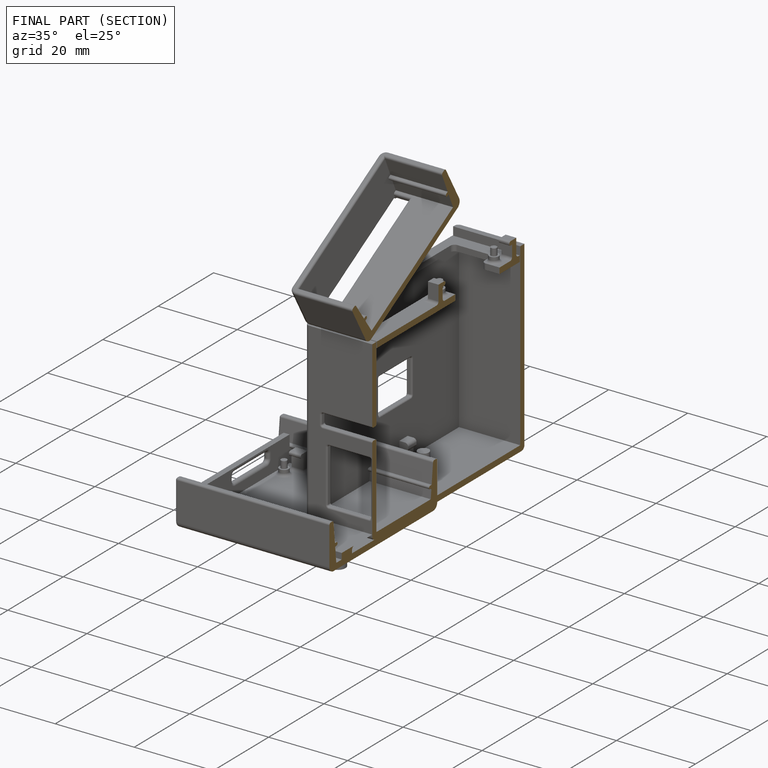
[diagram: finished part — half-section view (interior)]
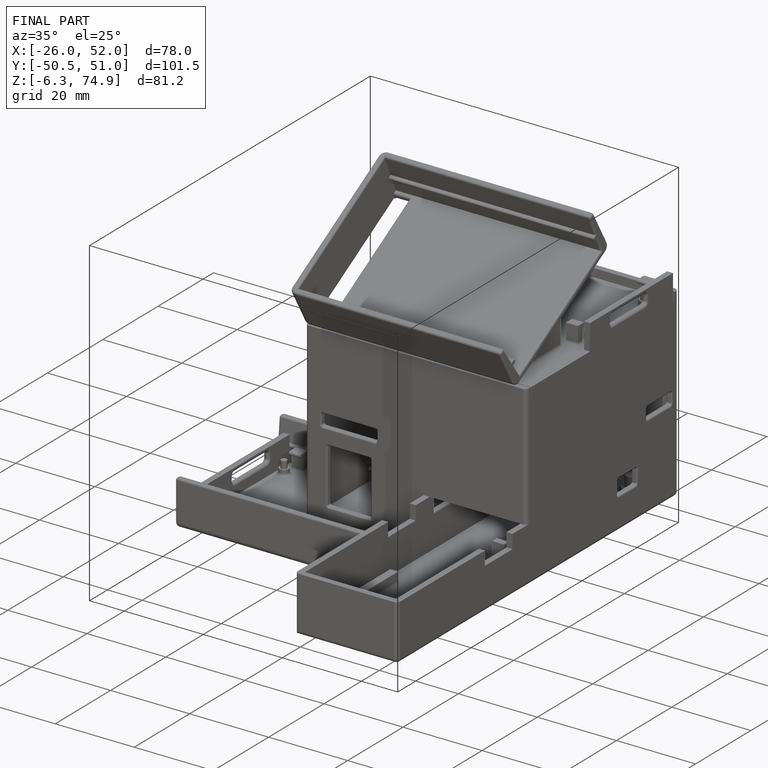
[diagram: finished part — iso view with bounding-box wireframe]
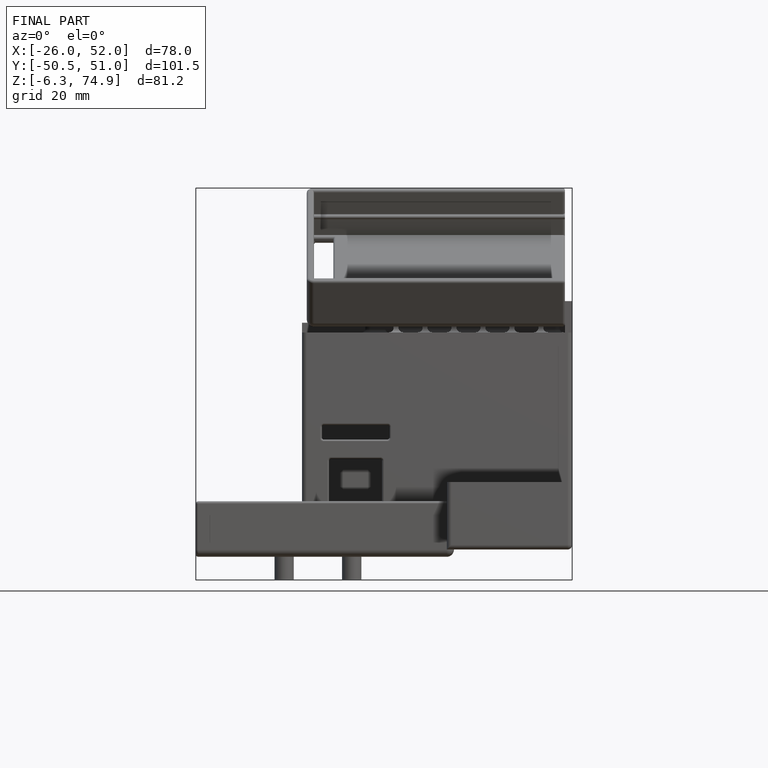
[diagram: finished part — front view with bounding-box wireframe]
